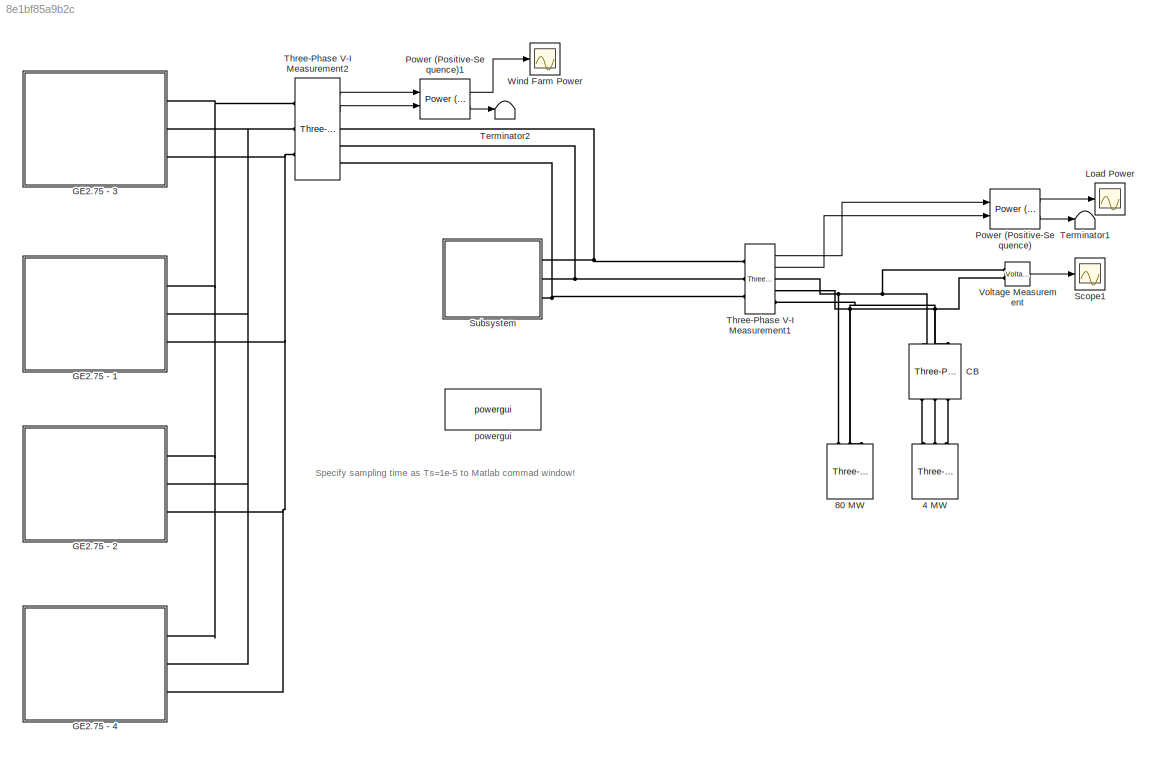
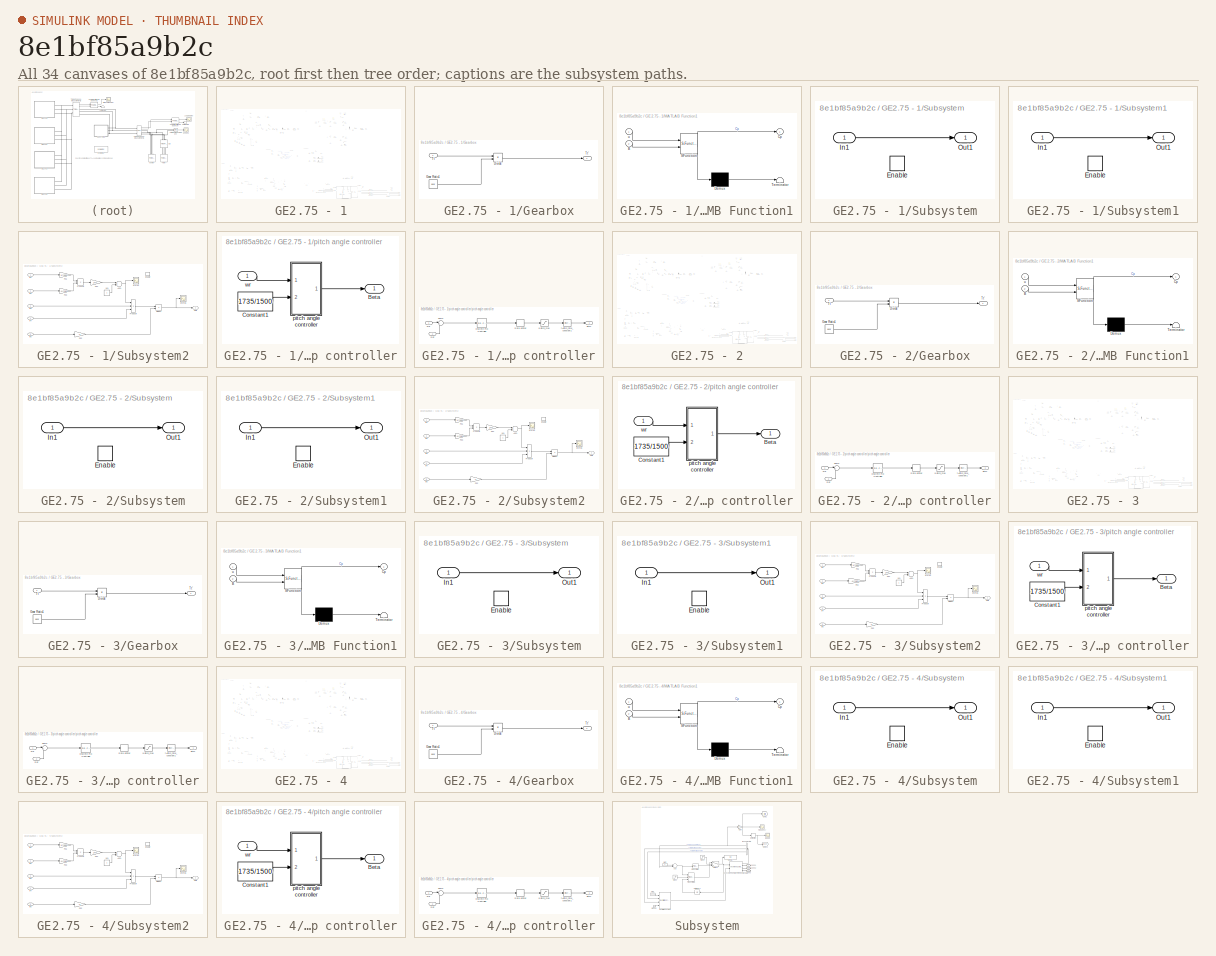
[diagram: thumbnail index - all 34 canvases of the model, root first then tree order]
MODEL slx_8e1bf85a9b2c
KIND model
CONFIG AbsTol = auto
CONFIG FixedStep = Ts
CONFIG MaxStep = auto
CONFIG MinStep = auto
CONFIG RelTol = 1e-3
CONFIG SampleTimeConstraint = Unconstrained
CONFIG Solver = FixedStepAuto
CONFIG SolverMode = Auto
CONFIG SolverName = FixedStepAuto
CONFIG StartTime = 0.0
CONFIG StopTime = 24
BLOCK [Reference] 4 MW  REF=powerlib/Elements/Three-Phase
Parallel RLC Load
  AttributesFormatString = \n
  Ports = [0, 0, 0, 0, 0, 3]
  SourceBlock = powerlib/Elements/Three-Phase\nParallel RLC Load
  SourceType = Three-Phase Parallel RLC Load
BLOCK [Reference] 80 MW  REF=powerlib/Elements/Three-Phase
Parallel RLC Load
  AttributesFormatString = \n
  Ports = [0, 0, 0, 0, 0, 3]
  SourceBlock = powerlib/Elements/Three-Phase\nParallel RLC Load
  SourceType = Three-Phase Parallel RLC Load
BLOCK [Reference] CB  REF=powerlib/Elements/Three-Phase Breaker
  Ports = [0, 0, 0, 0, 0, 3, 3]
  SourceBlock = powerlib/Elements/Three-Phase Breaker
  SourceType = Three-Phase Breaker
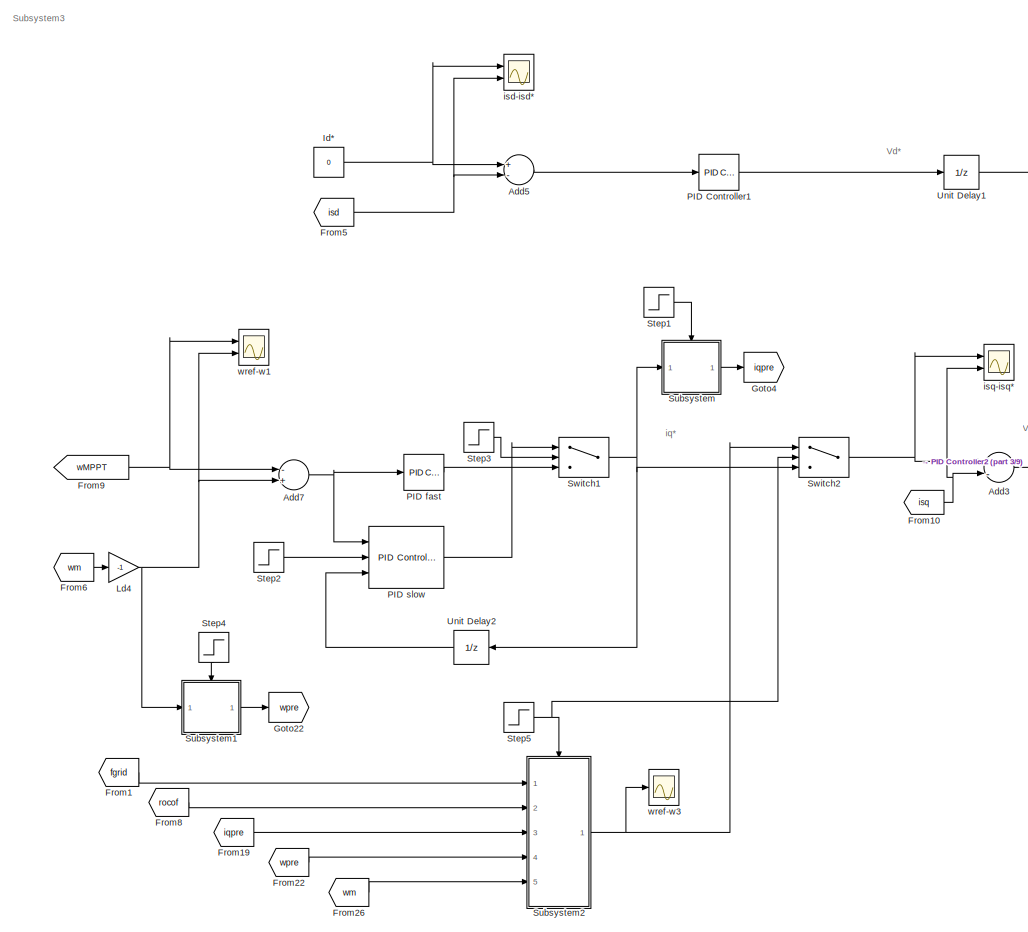
[diagram: GE2.75 - 1 - part 1/9, top left region]
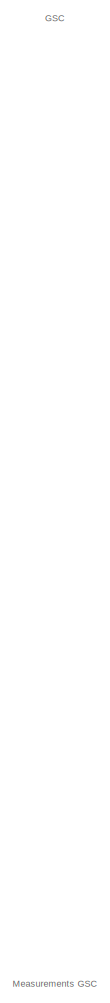
[diagram: GE2.75 - 1 - part 2/9, top center region]
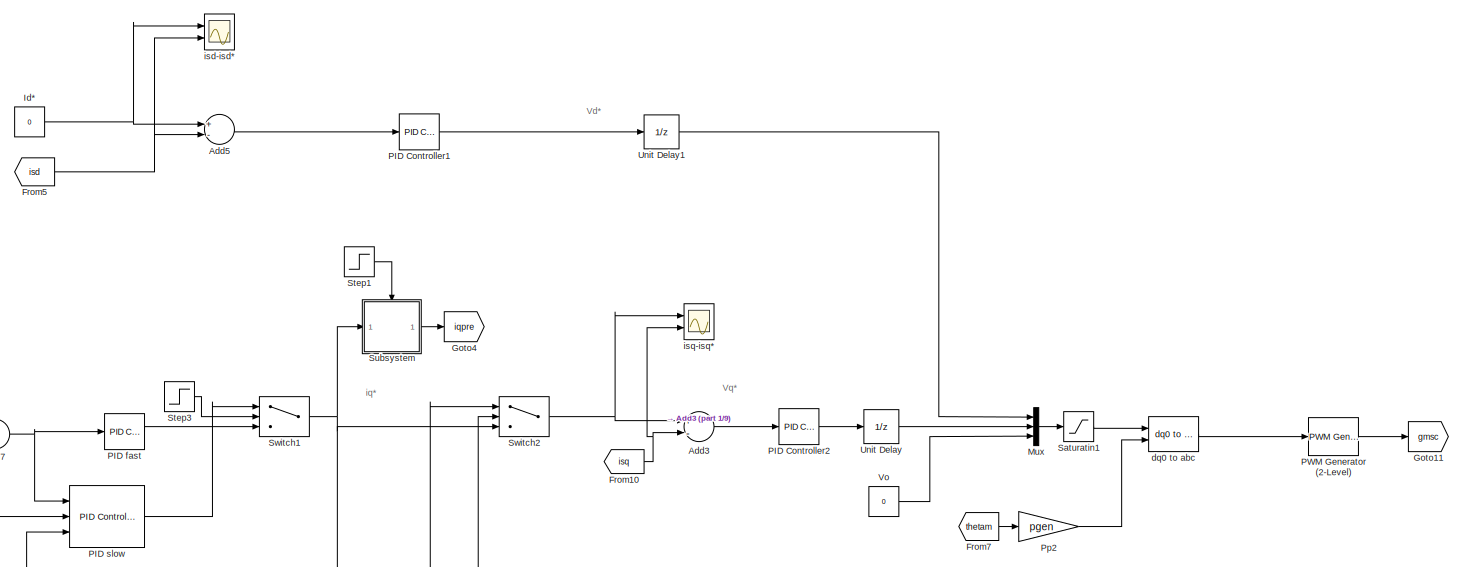
[diagram: GE2.75 - 1 - part 3/9, top left region]
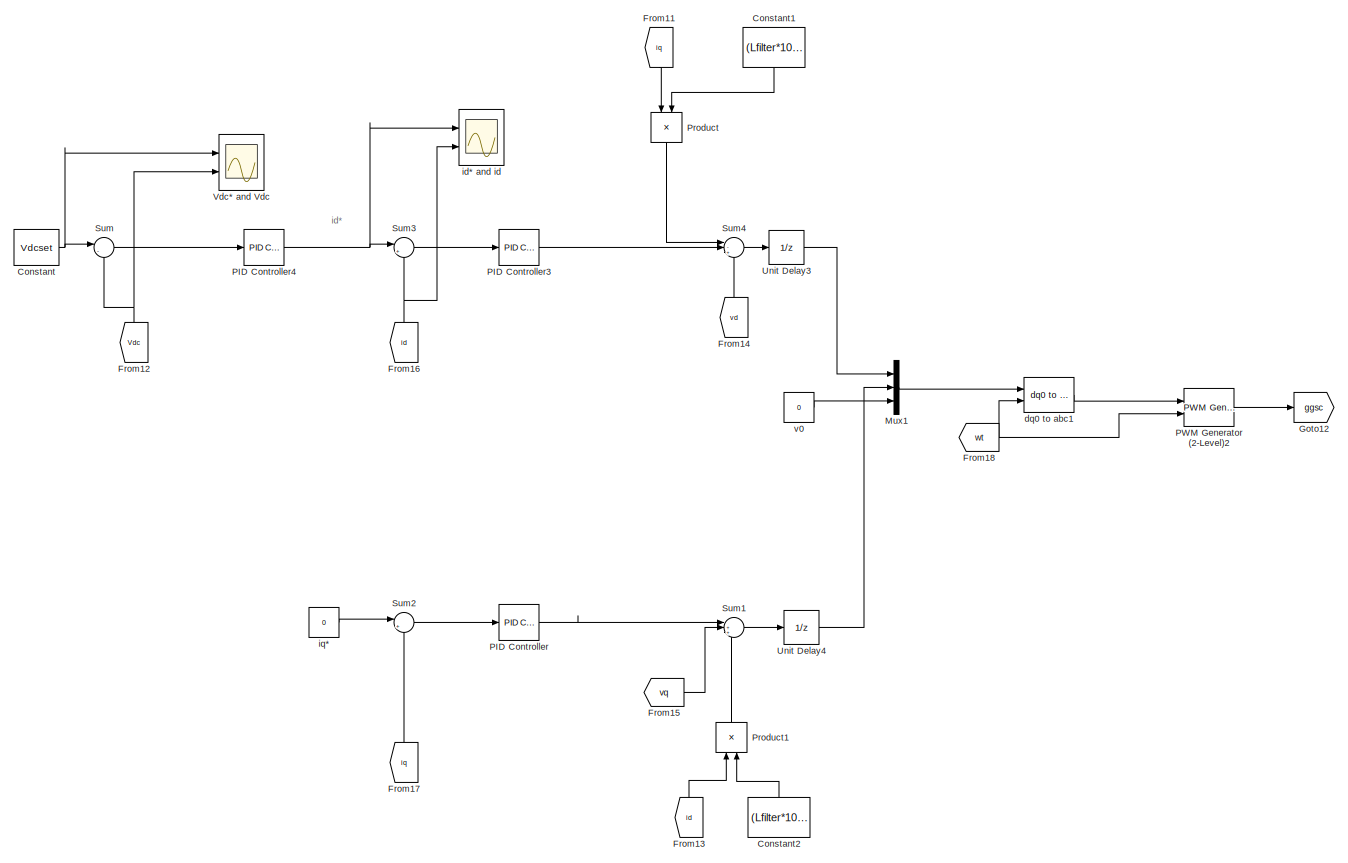
[diagram: GE2.75 - 1 - part 4/9, top right region]
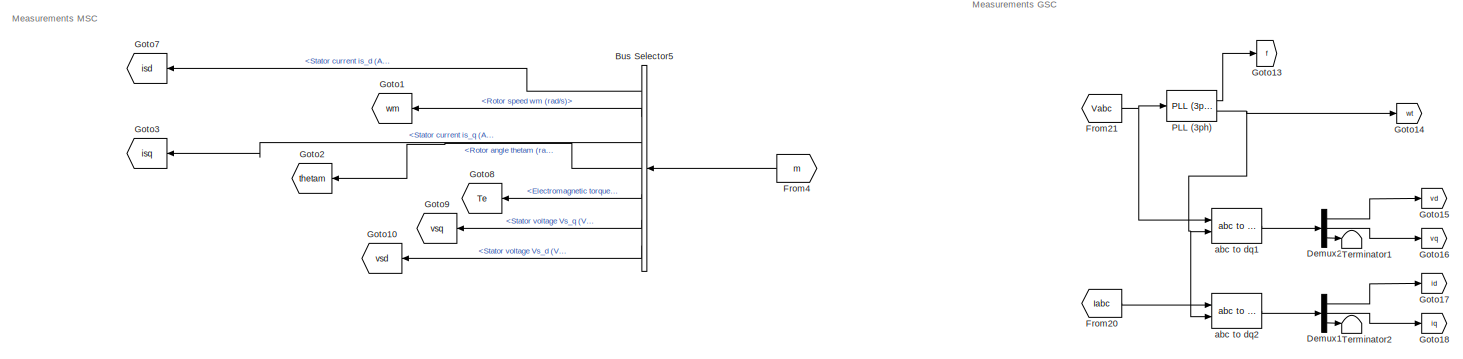
[diagram: GE2.75 - 1 - part 5/9, central region]
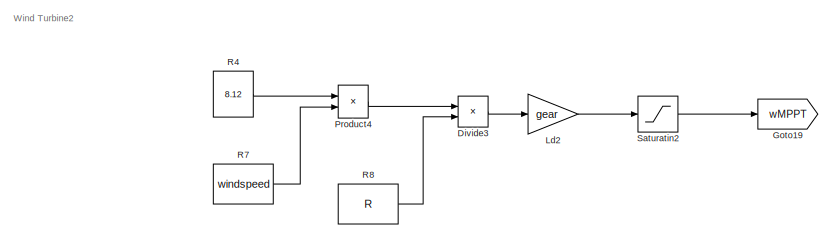
[diagram: GE2.75 - 1 - part 6/9, middle left region]
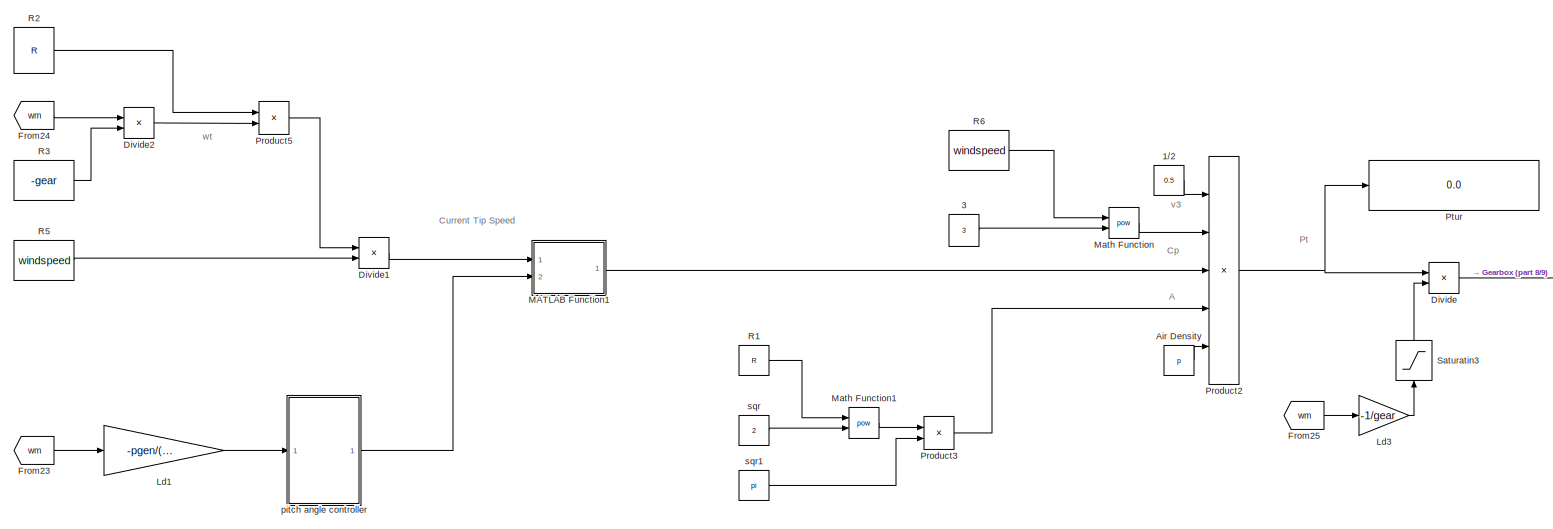
[diagram: GE2.75 - 1 - part 7/9, bottom left region]
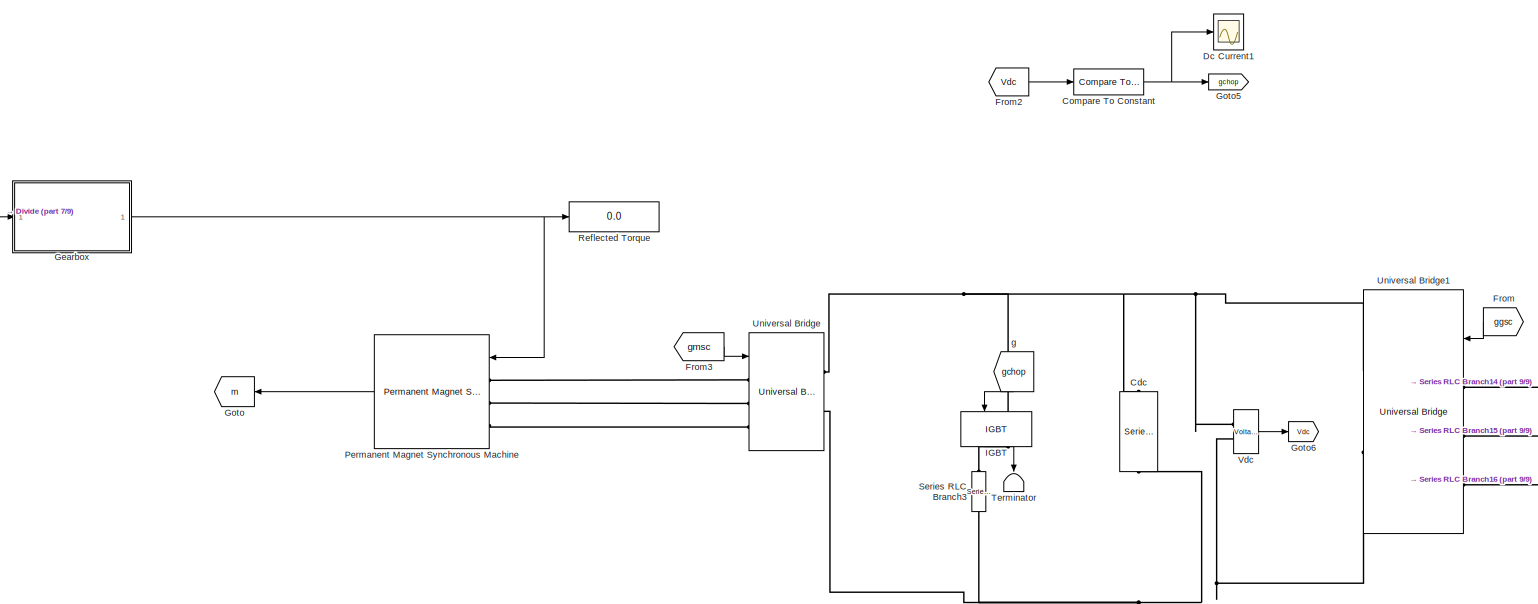
[diagram: GE2.75 - 1 - part 8/9, bottom center region]
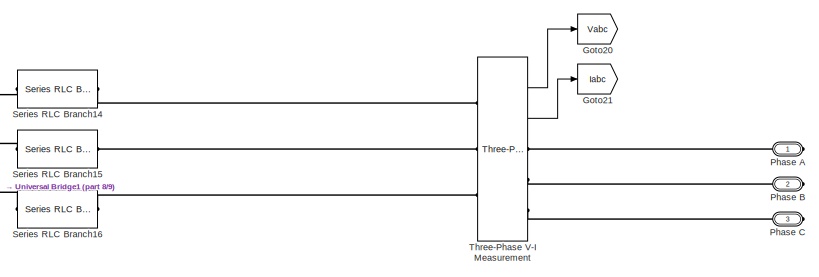
[diagram: GE2.75 - 1 - part 9/9, bottom right region]
BLOCK [SubSystem] GE2.75 - 1
  Ports = [0, 0, 0, 0, 0, 0, 3]
  RequestExecContextInheritance = off
  Variant = off
BLOCK [Constant] GE2.75 - 1/1//2
  Value = 0.5
BLOCK [Constant] GE2.75 - 1/3
  Value = 3
BLOCK [Sum] GE2.75 - 1/Add3
  InputSameDT = off
  Inputs = +-
  OutDataTypeStr = Inherit: Inherit via internal rule
  Ports = [2, 1]
  SaturateOnIntegerOverflow = off
BLOCK [Sum] GE2.75 - 1/Add5
  InputSameDT = off
  Inputs = +-
  OutDataTypeStr = Inherit: Inherit via internal rule
  Ports = [2, 1]
  SaturateOnIntegerOverflow = off
BLOCK [Sum] GE2.75 - 1/Add7
  InputSameDT = off
  Inputs = -+
  OutDataTypeStr = Inherit: Inherit via internal rule
  Ports = [2, 1]
  SaturateOnIntegerOverflow = off
BLOCK [Constant] GE2.75 - 1/Air Density
  Value = p
BLOCK [BusSelector] GE2.75 - 1/Bus Selector5
  OutputSignals = Stator current is_d (A),Rotor speed wm (rad/s),Stator current is_q (A),Rotor angle thetam (rad),Electromagnetic torque Te (N*m),Stator voltage Vs_q (V),Stator voltage Vs_d (V)
  Ports = [1, 7]
BLOCK [Reference] GE2.75 - 1/Cdc  REF=powerlib/Elements/Series RLC Branch
  Ports = [0, 0, 0, 0, 0, 1, 1]
  SourceBlock = powerlib/Elements/Series RLC Branch
  SourceType = Series RLC Branch
BLOCK [Reference] GE2.75 - 1/Compare To Constant  REF=simulink/Logic and Bit
Operations/Compare
To Constant
  Ports = [1, 1]
  SourceBlock = simulink/Logic and Bit\nOperations/Compare\nTo Constant
  SourceType = Compare To Constant
BLOCK [Constant] GE2.75 - 1/Constant
  Value = Vdcset
BLOCK [Constant] GE2.75 - 1/Constant1
  Value = (Lfilter*100*pi*2300)/690
BLOCK [Constant] GE2.75 - 1/Constant2
  Value = (Lfilter*100*pi*2300)/690
BLOCK [Scope] GE2.75 - 1/Dc Current1
  Ports = [1]
  ScopeSpecificationString = Simulink.scopes.TimeScopeBlockCfg('CurrentConfiguration', extmgr.ConfigurationSet(extmgr.Configuration('Core','General UI',true),extmgr.Configuration('Core','Source UI',true),extmgr.Configuration('Sources','WiredSimulink',true,'DataLoggingVariableName','ScopeData1'),extmgr.Configuration('Visuals','Time Domain',true,'SerializedDisplays',{struct('MinYLimReal','-0.29202','MaxYLimReal','1.08911','YLab...<+1422ch>  <repeated x4 — deduplicated; at blocks: Dc Current1>
BLOCK [Demux] GE2.75 - 1/Demux1
  DisplayOption = bar
  Outputs = 3
  Ports = [1, 3]
BLOCK [Demux] GE2.75 - 1/Demux2
  DisplayOption = bar
  Outputs = 3
  Ports = [1, 3]
BLOCK [Product] GE2.75 - 1/Divide
  InputSameDT = off
  Inputs = */
  OutDataTypeStr = Inherit: Inherit via internal rule
  Ports = [2, 1]
  RndMeth = Floor
  SaturateOnIntegerOverflow = off
BLOCK [Product] GE2.75 - 1/Divide1
  InputSameDT = off
  Inputs = */
  OutDataTypeStr = Inherit: Inherit via internal rule
  Ports = [2, 1]
  RndMeth = Floor
  SaturateOnIntegerOverflow = off
BLOCK [Product] GE2.75 - 1/Divide2
  InputSameDT = off
  Inputs = */
  OutDataTypeStr = Inherit: Inherit via internal rule
  Ports = [2, 1]
  RndMeth = Floor
  SaturateOnIntegerOverflow = off
BLOCK [Product] GE2.75 - 1/Divide3
  InputSameDT = off
  Inputs = */
  OutDataTypeStr = Inherit: Inherit via internal rule
  Ports = [2, 1]
  RndMeth = Floor
  SaturateOnIntegerOverflow = off
BLOCK [From] GE2.75 - 1/From
  GotoTag = ggsc
BLOCK [From] GE2.75 - 1/From1
  GotoTag = fgrid
  TagVisibility = global
BLOCK [From] GE2.75 - 1/From10
  GotoTag = isq
BLOCK [From] GE2.75 - 1/From11
  GotoTag = iq
BLOCK [From] GE2.75 - 1/From12
  GotoTag = Vdc
BLOCK [From] GE2.75 - 1/From13
  GotoTag = id
BLOCK [From] GE2.75 - 1/From14
  GotoTag = vd
BLOCK [From] GE2.75 - 1/From15
  GotoTag = vq
BLOCK [From] GE2.75 - 1/From16
  GotoTag = id
BLOCK [From] GE2.75 - 1/From17
  GotoTag = iq
BLOCK [From] GE2.75 - 1/From18
  GotoTag = wt
BLOCK [From] GE2.75 - 1/From19
  GotoTag = iqpre
BLOCK [From] GE2.75 - 1/From2
  GotoTag = Vdc
BLOCK [From] GE2.75 - 1/From20
  GotoTag = Iabc
BLOCK [From] GE2.75 - 1/From21
  GotoTag = Vabc
BLOCK [From] GE2.75 - 1/From22
  GotoTag = wpre
BLOCK [From] GE2.75 - 1/From23
  GotoTag = wm
BLOCK [From] GE2.75 - 1/From24
  GotoTag = wm
BLOCK [From] GE2.75 - 1/From25
  GotoTag = wm
BLOCK [From] GE2.75 - 1/From26
  GotoTag = wm
BLOCK [From] GE2.75 - 1/From3
  GotoTag = gmsc
BLOCK [From] GE2.75 - 1/From4
  GotoTag = m
BLOCK [From] GE2.75 - 1/From5
  GotoTag = isd
BLOCK [From] GE2.75 - 1/From6
  GotoTag = wm
BLOCK [From] GE2.75 - 1/From7
  GotoTag = thetam
BLOCK [From] GE2.75 - 1/From8
  GotoTag = rocof
  TagVisibility = global
BLOCK [From] GE2.75 - 1/From9
  GotoTag = wMPPT
BLOCK [SubSystem] GE2.75 - 1/Gearbox
  Ports = [1, 1]
  RequestExecContextInheritance = off
  Variant = off
BLOCK [Product] GE2.75 - 1/Gearbox/Divide
  InputSameDT = off
  Inputs = */
  OutDataTypeStr = Inherit: Inherit via internal rule
  Ports = [2, 1]
  RndMeth = Floor
  SaturateOnIntegerOverflow = off
BLOCK [Constant] GE2.75 - 1/Gearbox/Gear Ratio1
  Value = gear
BLOCK [Inport] GE2.75 - 1/Gearbox/Tt
  IconDisplay = Port number
BLOCK [Outport] GE2.75 - 1/Gearbox/Tt'
  IconDisplay = Port number
BLOCK [Goto] GE2.75 - 1/Goto
  GotoTag = m
BLOCK [Goto] GE2.75 - 1/Goto1
  GotoTag = wm
BLOCK [Goto] GE2.75 - 1/Goto10
  GotoTag = vsd
BLOCK [Goto] GE2.75 - 1/Goto11
  GotoTag = gmsc
BLOCK [Goto] GE2.75 - 1/Goto12
  GotoTag = ggsc
BLOCK [Goto] GE2.75 - 1/Goto13
  GotoTag = f
BLOCK [Goto] GE2.75 - 1/Goto14
  GotoTag = wt
BLOCK [Goto] GE2.75 - 1/Goto15
  GotoTag = vd
BLOCK [Goto] GE2.75 - 1/Goto16
  GotoTag = vq
BLOCK [Goto] GE2.75 - 1/Goto17
  GotoTag = id
BLOCK [Goto] GE2.75 - 1/Goto18
  GotoTag = iq
BLOCK [Goto] GE2.75 - 1/Goto19
  GotoTag = wMPPT
BLOCK [Goto] GE2.75 - 1/Goto2
  GotoTag = thetam
BLOCK [Goto] GE2.75 - 1/Goto20
  GotoTag = Vabc
BLOCK [Goto] GE2.75 - 1/Goto21
  GotoTag = Iabc
BLOCK [Goto] GE2.75 - 1/Goto22
  GotoTag = wpre
BLOCK [Goto] GE2.75 - 1/Goto3
  GotoTag = isq
BLOCK [Goto] GE2.75 - 1/Goto4
  GotoTag = iqpre
BLOCK [Goto] GE2.75 - 1/Goto5
  GotoTag = gchop
BLOCK [Goto] GE2.75 - 1/Goto6
  GotoTag = Vdc
BLOCK [Goto] GE2.75 - 1/Goto7
  GotoTag = isd
BLOCK [Goto] GE2.75 - 1/Goto8
  GotoTag = Te
BLOCK [Goto] GE2.75 - 1/Goto9
  GotoTag = vsq
BLOCK [Reference] GE2.75 - 1/IGBT  REF=powerlib/Power
Electronics/IGBT
  Ports = [1, 1, 0, 0, 0, 1, 1]
  SourceBlock = powerlib/Power\nElectronics/IGBT
  SourceType = IGBT
BLOCK [Constant] GE2.75 - 1/Id*
  Value = 0
BLOCK [Gain] GE2.75 - 1/Ld1
  Gain = -pgen/(2*fnom*pi)
  OutDataTypeStr = Inherit: Inherit via internal rule
  ParamDataTypeStr = Inherit: Inherit via internal rule
  SaturateOnIntegerOverflow = off
BLOCK [Gain] GE2.75 - 1/Ld2
  Gain = gear
  OutDataTypeStr = Inherit: Inherit via internal rule
  ParamDataTypeStr = Inherit: Inherit via internal rule
  SaturateOnIntegerOverflow = off
BLOCK [Gain] GE2.75 - 1/Ld3
  Gain = -1/gear
  OutDataTypeStr = Inherit: Inherit via internal rule
  ParamDataTypeStr = Inherit: Inherit via internal rule
  SaturateOnIntegerOverflow = off
BLOCK [Gain] GE2.75 - 1/Ld4
  Gain = -1
  OutDataTypeStr = Inherit: Inherit via internal rule
  ParamDataTypeStr = Inherit: Inherit via internal rule
  SaturateOnIntegerOverflow = off
BLOCK [SubSystem] GE2.75 - 1/MATLAB Function1
  ErrorFcn = Stateflow.Translate.translate
  PermitHierarchicalResolution = ExplicitOnly
  Ports = [2, 1]
  RequestExecContextInheritance = off
  SFBlockType = MATLAB Function
  TreatAsAtomicUnit = on
  Variant = off
BLOCK [Demux] GE2.75 - 1/MATLAB Function1/ Demux 
  Outputs = 1
  Ports = [1, 1]
BLOCK [S-Function] GE2.75 - 1/MATLAB Function1/ SFunction 
  EnableBusSupport = on
  FunctionName = sf_sfun
  PortCounts = [2 2]
  Ports = [2, 2]
  SFunctionDeploymentMode = off
  Tag = Stateflow S-Function Optimized_wind_farm_with_dynamic_grid 1
BLOCK [Terminator] GE2.75 - 1/MATLAB Function1/ Terminator 
BLOCK [Inport] GE2.75 - 1/MATLAB Function1/B
  IconDisplay = Port number
  Port = 2
BLOCK [Outport] GE2.75 - 1/MATLAB Function1/Cp
  IconDisplay = Port number
BLOCK [Inport] GE2.75 - 1/MATLAB Function1/u
  IconDisplay = Port number
BLOCK [Math] GE2.75 - 1/Math Function
  Operator = pow
  Ports = [2, 1]
BLOCK [Math] GE2.75 - 1/Math Function1
  Operator = pow
  Ports = [2, 1]
BLOCK [Mux] GE2.75 - 1/Mux
  DisplayOption = bar
  Inputs = 3
  Ports = [3, 1]
BLOCK [Mux] GE2.75 - 1/Mux1
  DisplayOption = bar
  Inputs = 3
  Ports = [3, 1]
BLOCK [Reference] GE2.75 - 1/PID Controller  REF=simulink/Continuous/PID Controller
  Ports = [1, 1]
  SourceBlock = simulink/Continuous/PID Controller
  SourceType = PID 1dof
BLOCK [Reference] GE2.75 - 1/PID Controller1  REF=simulink/Continuous/PID Controller
  Ports = [1, 1]
  SourceBlock = simulink/Continuous/PID Controller
  SourceType = PID 1dof
BLOCK [Reference] GE2.75 - 1/PID Controller2  REF=simulink/Continuous/PID Controller
  Ports = [1, 1]
  SourceBlock = simulink/Continuous/PID Controller
  SourceType = PID 1dof
BLOCK [Reference] GE2.75 - 1/PID Controller3  REF=simulink/Continuous/PID Controller
  Ports = [1, 1]
  SourceBlock = simulink/Continuous/PID Controller
  SourceType = PID 1dof
BLOCK [Reference] GE2.75 - 1/PID Controller4  REF=simulink/Continuous/PID Controller
  Ports = [1, 1]
  SourceBlock = simulink/Continuous/PID Controller
  SourceType = PID 1dof
BLOCK [Reference] GE2.75 - 1/PID fast  REF=simulink/Continuous/PID Controller
  Ports = [1, 1]
  SourceBlock = simulink/Continuous/PID Controller
  SourceType = PID 1dof
BLOCK [Reference] GE2.75 - 1/PID slow  REF=simulink/Continuous/PID Controller
  Ports = [3, 1]
  SourceBlock = simulink/Continuous/PID Controller
  SourceType = PID 1dof
BLOCK [Reference] GE2.75 - 1/PLL (3ph)  REF=powerlib_meascontrol/PLL/PLL
(3ph)
  Ports = [1, 2]
  SourceBlock = powerlib_meascontrol/PLL/PLL\n(3ph)
  SourceType = PLL (3ph)
BLOCK [Reference] GE2.75 - 1/PWM Generator (2-Level)  REF=powerlib_meascontrol/Pulse & Signal
Generators/PWM Generator
(2-Level)
  Ports = [1, 1]
  SourceBlock = powerlib_meascontrol/Pulse & Signal\nGenerators/PWM Generator\n(2-Level)
  SourceType = PWM Generator (2-Level)
BLOCK [Reference] GE2.75 - 1/PWM Generator (2-Level)2  REF=powerlib_meascontrol/Pulse & Signal
Generators/PWM Generator
(2-Level)
  Ports = [2, 1]
  SourceBlock = powerlib_meascontrol/Pulse & Signal\nGenerators/PWM Generator\n(2-Level)
  SourceType = PWM Generator (2-Level)
BLOCK [Reference] GE2.75 - 1/Permanent Magnet Synchronous Machine  REF=powerlib/Machines/Permanent Magnet
Synchronous Machine
  Ports = [1, 1, 0, 0, 0, 3]
  SourceBlock = powerlib/Machines/Permanent Magnet\nSynchronous Machine
  SourceType = Permanent Magnet Synchronous Machine
BLOCK [PMIOPort] GE2.75 - 1/Phase A
  Port = 1
  Side = Right
BLOCK [PMIOPort] GE2.75 - 1/Phase B
  Port = 2
  Side = Right
BLOCK [PMIOPort] GE2.75 - 1/Phase C
  Port = 3
  Side = Right
BLOCK [Gain] GE2.75 - 1/Pp2
  Gain = pgen
  OutDataTypeStr = Inherit: Inherit via internal rule
  ParamDataTypeStr = Inherit: Inherit via internal rule
  SaturateOnIntegerOverflow = off
BLOCK [Product] GE2.75 - 1/Product
  InputSameDT = off
  OutDataTypeStr = Inherit: Inherit via internal rule
  Ports = [2, 1]
  RndMeth = Floor
  SaturateOnIntegerOverflow = off
BLOCK [Product] GE2.75 - 1/Product1
  InputSameDT = off
  OutDataTypeStr = Inherit: Inherit via internal rule
  Ports = [2, 1]
  RndMeth = Floor
  SaturateOnIntegerOverflow = off
BLOCK [Product] GE2.75 - 1/Product2
  InputSameDT = off
  Inputs = 5
  OutDataTypeStr = Inherit: Inherit via internal rule
  Ports = [5, 1]
  RndMeth = Floor
  SaturateOnIntegerOverflow = off
BLOCK [Product] GE2.75 - 1/Product3
  InputSameDT = off
  OutDataTypeStr = Inherit: Inherit via internal rule
  Ports = [2, 1]
  RndMeth = Floor
  SaturateOnIntegerOverflow = off
BLOCK [Product] GE2.75 - 1/Product4
  InputSameDT = off
  OutDataTypeStr = Inherit: Inherit via internal rule
  Ports = [2, 1]
  RndMeth = Floor
  SaturateOnIntegerOverflow = off
BLOCK [Product] GE2.75 - 1/Product5
  InputSameDT = off
  OutDataTypeStr = Inherit: Inherit via internal rule
  Ports = [2, 1]
  RndMeth = Floor
  SaturateOnIntegerOverflow = off
BLOCK [Display] GE2.75 - 1/Ptur
  Decimation = 1
  Ports = [1]
BLOCK [Constant] GE2.75 - 1/R1
  Value = R
BLOCK [Constant] GE2.75 - 1/R2
  Value = R
BLOCK [Constant] GE2.75 - 1/R3
  Value = -gear
BLOCK [Constant] GE2.75 - 1/R4
  Value = 8.12
BLOCK [Constant] GE2.75 - 1/R5
  Value = windspeed
BLOCK [Constant] GE2.75 - 1/R6
  Value = windspeed
BLOCK [Constant] GE2.75 - 1/R7
  Value = windspeed
BLOCK [Constant] GE2.75 - 1/R8
  Value = R
BLOCK [Display] GE2.75 - 1/Reflected Torque
  Decimation = 1
  Ports = [1]
BLOCK [Saturate] GE2.75 - 1/Saturatin1
  InputPortMap = u0
  LowerLimit = -2000
  Ports = [1, 1]
  UpperLimit = 2000
BLOCK [Saturate] GE2.75 - 1/Saturatin2
  InputPortMap = u0
  LowerLimit = 1e-8
  Ports = [1, 1]
  UpperLimit = wmax
BLOCK [Saturate] GE2.75 - 1/Saturatin3
  InputPortMap = u0
  LowerLimit = 1e-8
  Ports = [1, 1]
  UpperLimit = inf
BLOCK [Reference] GE2.75 - 1/Series RLC Branch14  REF=powerlib/Elements/Series RLC Branch
  Ports = [0, 0, 0, 0, 0, 1, 1]
  SourceBlock = powerlib/Elements/Series RLC Branch
  SourceType = Series RLC Branch
BLOCK [Reference] GE2.75 - 1/Series RLC Branch15  REF=powerlib/Elements/Series RLC Branch
  Ports = [0, 0, 0, 0, 0, 1, 1]
  SourceBlock = powerlib/Elements/Series RLC Branch
  SourceType = Series RLC Branch
BLOCK [Reference] GE2.75 - 1/Series RLC Branch16  REF=powerlib/Elements/Series RLC Branch
  Ports = [0, 0, 0, 0, 0, 1, 1]
  SourceBlock = powerlib/Elements/Series RLC Branch
  SourceType = Series RLC Branch
BLOCK [Reference] GE2.75 - 1/Series RLC Branch3  REF=powerlib/Elements/Series RLC Branch
  Ports = [0, 0, 0, 0, 0, 1, 1]
  SourceBlock = powerlib/Elements/Series RLC Branch
  SourceType = Series RLC Branch
BLOCK [Step] GE2.75 - 1/Step1
  After = 0
  Before = 1
  SampleTime = Ts
  Time = insup
BLOCK [Step] GE2.75 - 1/Step2
  Time = startuptime
BLOCK [Step] GE2.75 - 1/Step3
  Time = startuptime
BLOCK [Step] GE2.75 - 1/Step4
  After = 0
  Before = 1
  SampleTime = Ts
  Time = insup
BLOCK [Step] GE2.75 - 1/Step5
  SampleTime = Ts
  Time = insup
BLOCK [SubSystem] GE2.75 - 1/Subsystem
  Ports = [1, 1, 1]
  RequestExecContextInheritance = off
  Variant = off
BLOCK [EnablePort] GE2.75 - 1/Subsystem/Enable
  Ports = []
BLOCK [Inport] GE2.75 - 1/Subsystem/In1
  IconDisplay = Port number
BLOCK [Outport] GE2.75 - 1/Subsystem/Out1
  IconDisplay = Port number
BLOCK [SubSystem] GE2.75 - 1/Subsystem1
  Ports = [1, 1, 1]
  RequestExecContextInheritance = off
  Variant = off
BLOCK [EnablePort] GE2.75 - 1/Subsystem1/Enable
  Ports = []
BLOCK [Inport] GE2.75 - 1/Subsystem1/In1
  IconDisplay = Port number
BLOCK [Outport] GE2.75 - 1/Subsystem1/Out1
  IconDisplay = Port number
BLOCK [SubSystem] GE2.75 - 1/Subsystem2
  Ports = [5, 1, 1]
  RequestExecContextInheritance = off
  Variant = off
BLOCK [Sum] GE2.75 - 1/Subsystem2/Add1
  InputSameDT = off
  OutDataTypeStr = Inherit: Inherit via internal rule
  Ports = [2, 1]
  SaturateOnIntegerOverflow = off
BLOCK [Product] GE2.75 - 1/Subsystem2/Divide4
  InputSameDT = off
  Inputs = */
  OutDataTypeStr = Inherit: Inherit via internal rule
  Ports = [2, 1]
  RndMeth = Floor
  SaturateOnIntegerOverflow = off
BLOCK [EnablePort] GE2.75 - 1/Subsystem2/Enable
  Ports = []
BLOCK [Inport] GE2.75 - 1/Subsystem2/In1
  IconDisplay = Port number
BLOCK [Inport] GE2.75 - 1/Subsystem2/In2
  IconDisplay = Port number
  Port = 2
BLOCK [Inport] GE2.75 - 1/Subsystem2/In3
  IconDisplay = Port number
  Port = 3
BLOCK [Inport] GE2.75 - 1/Subsystem2/In4
  IconDisplay = Port number
  Port = 4
BLOCK [Inport] GE2.75 - 1/Subsystem2/In5
  IconDisplay = Port number
  Port = 5
BLOCK [Outport] GE2.75 - 1/Subsystem2/Out1
  IconDisplay = Port number
BLOCK [Gain] GE2.75 - 1/Subsystem2/Pp1
  Gain = 1/fnom
  OutDataTypeStr = Inherit: Inherit via internal rule
  ParamDataTypeStr = Inherit: Inherit via internal rule
  SaturateOnIntegerOverflow = off
BLOCK [Gain] GE2.75 - 1/Subsystem2/Pp2
  Gain = -1
  OutDataTypeStr = Inherit: Inherit via internal rule
  ParamDataTypeStr = Inherit: Inherit via internal rule
  SaturateOnIntegerOverflow = off
BLOCK [Gain] GE2.75 - 1/Subsystem2/Pp3
  Gain = -1/fnom
  OutDataTypeStr = Inherit: Inherit via internal rule
  ParamDataTypeStr = Inherit: Inherit via internal rule
  SaturateOnIntegerOverflow = off
BLOCK [Gain] GE2.75 - 1/Subsystem2/Pp4
  Gain = 2*H
  OutDataTypeStr = Inherit: Inherit via internal rule
  ParamDataTypeStr = Inherit: Inherit via internal rule
  SaturateOnIntegerOverflow = off
BLOCK [Product] GE2.75 - 1/Subsystem2/Product6
  InputSameDT = off
  OutDataTypeStr = Inherit: Inherit via internal rule
  Ports = [2, 1]
  RndMeth = Floor
  SaturateOnIntegerOverflow = off
BLOCK [Product] GE2.75 - 1/Subsystem2/Product7
  InputSameDT = off
  Inputs = 3
  OutDataTypeStr = Inherit: Inherit via internal rule
  Ports = [3, 1]
  RndMeth = Floor
  SaturateOnIntegerOverflow = off
BLOCK [Constant] GE2.75 - 1/Subsystem2/Vo1
BLOCK [Scope] GE2.75 - 1/Subsystem2/wref-w1
  Ports = [1]
  ScopeSpecificationString = Simulink.scopes.TimeScopeBlockCfg('CurrentConfiguration', extmgr.ConfigurationSet(extmgr.Configuration('Core','General UI',true),extmgr.Configuration('Core','Source UI',true),extmgr.Configuration('Sources','WiredSimulink',true,'DataLoggingVariableName','ScopeData4'),extmgr.Configuration('Visuals','Time Domain',true,'SerializedDisplays',{struct('MinYLimReal','871.03715','MaxYLimReal','951.10609','Y...<+1451ch>  <repeated x4 — deduplicated; at blocks: wref-w1>
BLOCK [Scope] GE2.75 - 1/Subsystem2/wref-w2
  Ports = [1]
  ScopeSpecificationString = Simulink.scopes.TimeScopeBlockCfg('CurrentConfiguration', extmgr.ConfigurationSet(extmgr.Configuration('Core','General UI',true),extmgr.Configuration('Core','Source UI',true),extmgr.Configuration('Sources','WiredSimulink',true,'DataLoggingVariableName','ScopeData3'),extmgr.Configuration('Visuals','Time Domain',true,'SerializedDisplays',{struct('MinYLimReal','0.98022','MaxYLimReal','1.07225','YLabe...<+1432ch>  <repeated x4 — deduplicated; at blocks: wref-w2>
BLOCK [Sum] GE2.75 - 1/Sum
  IconShape = round
  InputSameDT = off
  Inputs = |-+
  OutDataTypeStr = Inherit: Inherit via internal rule
  Ports = [2, 1]
  SaturateOnIntegerOverflow = off
BLOCK [Sum] GE2.75 - 1/Sum1
  IconShape = round
  InputSameDT = off
  Inputs = |+++
  OutDataTypeStr = Inherit: Inherit via internal rule
  Ports = [3, 1]
  SaturateOnIntegerOverflow = off
BLOCK [Sum] GE2.75 - 1/Sum2
  IconShape = round
  InputSameDT = off
  Inputs = |+-
  OutDataTypeStr = Inherit: Inherit via internal rule
  Ports = [2, 1]
  SaturateOnIntegerOverflow = off
BLOCK [Sum] GE2.75 - 1/Sum3
  IconShape = round
  InputSameDT = off
  Inputs = |+-
  OutDataTypeStr = Inherit: Inherit via internal rule
  Ports = [2, 1]
  SaturateOnIntegerOverflow = off
BLOCK [Sum] GE2.75 - 1/Sum4
  IconShape = round
  InputSameDT = off
  Inputs = |-++
  OutDataTypeStr = Inherit: Inherit via internal rule
  Ports = [3, 1]
  SaturateOnIntegerOverflow = off
BLOCK [Switch] GE2.75 - 1/Switch1
  Criteria = u2 > Threshold
  InputSameDT = off
  SaturateOnIntegerOverflow = off
  Threshold = 0.5
BLOCK [Switch] GE2.75 - 1/Switch2
  Criteria = u2 > Threshold
  InputSameDT = off
  SaturateOnIntegerOverflow = off
  Threshold = 0.5
BLOCK [Terminator] GE2.75 - 1/Terminator
BLOCK [Terminator] GE2.75 - 1/Terminator1
BLOCK [Terminator] GE2.75 - 1/Terminator2
BLOCK [Reference] GE2.75 - 1/Three-Phase V-I Measurement  REF=powerlib/Measurements/Three-Phase
V-I Measurement
  Ports = [0, 2, 0, 0, 0, 3, 3]
  SourceBlock = powerlib/Measurements/Three-Phase\nV-I Measurement
  SourceType = Three-Phase VI Measurement
BLOCK [UnitDelay] GE2.75 - 1/Unit Delay
  InputProcessing = Elements as channels (sample based)
  SampleTime = Ts
BLOCK [UnitDelay] GE2.75 - 1/Unit Delay1
  InputProcessing = Elements as channels (sample based)
  SampleTime = Ts
BLOCK [UnitDelay] GE2.75 - 1/Unit Delay2
  InputProcessing = Elements as channels (sample based)
  SampleTime = Ts
BLOCK [UnitDelay] GE2.75 - 1/Unit Delay3
  InputProcessing = Elements as channels (sample based)
  SampleTime = Ts
BLOCK [UnitDelay] GE2.75 - 1/Unit Delay4
  InputProcessing = Elements as channels (sample based)
  SampleTime = Ts
BLOCK [Reference] GE2.75 - 1/Universal Bridge  REF=powerlib/Power
Electronics/Universal Bridge
  Ports = [1, 0, 0, 0, 0, 3, 2]
  SourceBlock = powerlib/Power\nElectronics/Universal Bridge
  SourceType = Universal Bridge
BLOCK [Reference] GE2.75 - 1/Universal Bridge1  REF=powerlib/Power
Electronics/Universal Bridge
  Ports = [1, 0, 0, 0, 0, 3, 2]
  SourceBlock = powerlib/Power\nElectronics/Universal Bridge
  SourceType = Universal Bridge
BLOCK [Reference] GE2.75 - 1/Vdc  REF=powerlib/Measurements/Voltage Measurement
  Ports = [0, 1, 0, 0, 0, 2]
  SourceBlock = powerlib/Measurements/Voltage Measurement
  SourceType = Voltage Measurement
  UserDataPersistent = on
BLOCK [Scope] GE2.75 - 1/Vdc* and Vdc
  NumInputPorts = 2
  Ports = [2]
  ScopeSpecificationString = Simulink.scopes.TimeScopeBlockCfg('CurrentConfiguration', extmgr.ConfigurationSet(extmgr.Configuration('Core','General UI',true),extmgr.Configuration('Core','Source UI',true),extmgr.Configuration('Sources','WiredSimulink',true,'DataLoggingSaveFormat','Array','DataLoggingDecimation','1','DataLoggingVariableName','ScopeData3'),extmgr.Configuration('Visuals','Time Domain',true,'SerializedDisplays',{s...<+1522ch>  <repeated x4 — deduplicated; at blocks: Vdc* and Vdc>
BLOCK [Constant] GE2.75 - 1/Vo
  Value = 0
BLOCK [Reference] GE2.75 - 1/abc to dq1  REF=powerlib_meascontrol/Transformations/abc to dq0
  Ports = [2, 1]
  SourceBlock = powerlib_meascontrol/Transformations/abc to dq0
  SourceType = abc to dq0 Transformation
BLOCK [Reference] GE2.75 - 1/abc to dq2  REF=powerlib_meascontrol/Transformations/abc to dq0
  Ports = [2, 1]
  SourceBlock = powerlib_meascontrol/Transformations/abc to dq0
  SourceType = abc to dq0 Transformation
BLOCK [Reference] GE2.75 - 1/dq0 to abc  REF=powerlib_meascontrol/Transformations/dq0 to abc
  Ports = [2, 1]
  SourceBlock = powerlib_meascontrol/Transformations/dq0 to abc
  SourceType = dq0 to abc Transformation
BLOCK [Reference] GE2.75 - 1/dq0 to abc1  REF=powerlib_meascontrol/Transformations/dq0 to abc
  Ports = [2, 1]
  SourceBlock = powerlib_meascontrol/Transformations/dq0 to abc
  SourceType = dq0 to abc Transformation
BLOCK [From] GE2.75 - 1/g
  GotoTag = gchop
BLOCK [Scope] GE2.75 - 1/id* and id 
  NumInputPorts = 2
  Ports = [2]
  ScopeSpecificationString = Simulink.scopes.TimeScopeBlockCfg('CurrentConfiguration', extmgr.ConfigurationSet(extmgr.Configuration('Core','General UI',true),extmgr.Configuration('Core','Source UI',true),extmgr.Configuration('Sources','WiredSimulink',true,'DataLoggingSaveFormat','Array','DataLoggingDecimation','1','DataLoggingVariableName','ScopeData3'),extmgr.Configuration('Visuals','Time Domain',true,'SerializedDisplays',{s...<+1510ch>  <repeated x4 — deduplicated; at blocks: id* and id>
BLOCK [Constant] GE2.75 - 1/iq*
  Value = 0
BLOCK [Scope] GE2.75 - 1/isd-isd*
  NumInputPorts = 2
  Ports = [2]
  ScopeSpecificationString = Simulink.scopes.TimeScopeBlockCfg('CurrentConfiguration', extmgr.ConfigurationSet(extmgr.Configuration('Core','General UI',true),extmgr.Configuration('Core','Source UI',true),extmgr.Configuration('Sources','WiredSimulink',true,'DataLoggingVariableName','ScopeData3'),extmgr.Configuration('Visuals','Time Domain',true,'SerializedDisplays',{struct('MinYLimReal','-63.22683','MaxYLimReal','57.09545','YL...<+1468ch>  <repeated x4 — deduplicated; at blocks: isd-isd*>
BLOCK [Scope] GE2.75 - 1/isq-isq*
  NumInputPorts = 2
  Ports = [2]
  ScopeSpecificationString = Simulink.scopes.TimeScopeBlockCfg('CurrentConfiguration', extmgr.ConfigurationSet(extmgr.Configuration('Core','General UI',true),extmgr.Configuration('Core','Source UI',true),extmgr.Configuration('Sources','WiredSimulink',true,'DataLoggingVariableName','ScopeData1'),extmgr.Configuration('Visuals','Time Domain',true,'SerializedDisplays',{struct('MinYLimReal','-1483.70191','MaxYLimReal','3731.01984'...<+1489ch>  <repeated x4 — deduplicated; at blocks: isq-isq*>
BLOCK [SubSystem] GE2.75 - 1/pitch angle controller
  Ports = [1, 1]
  RequestExecContextInheritance = off
  Variant = off
BLOCK [Outport] GE2.75 - 1/pitch angle controller/Beta
  IconDisplay = Port number
BLOCK [Constant] GE2.75 - 1/pitch angle controller/Constant1
  SampleTime = Ts
  Value = 1735/1500
BLOCK [SubSystem] GE2.75 - 1/pitch angle controller/pitch angle controller
  Ports = [2, 1]
  RequestExecContextInheritance = off
  Variant = off
BLOCK [Saturate] GE2.75 - 1/pitch angle controller/pitch angle controller/0-pitch_max 
  InputPortMap = u0
  LowerLimit = 0
  Ports = [1, 1]
  SampleTime = Ts
  UpperLimit = 27
BLOCK [Reference] GE2.75 - 1/pitch angle controller/pitch angle controller/Discrete PID Controller  REF=simulink/Continuous/PID Controller
  Ports = [1, 1]
  SourceBlock = simulink/Continuous/PID Controller
  SourceType = PID 1dof
BLOCK [RateLimiter] GE2.75 - 1/pitch angle controller/pitch angle controller/Rate Limiter
  FallingSlewLimit = -10
  RisingSlewLimit = 10
BLOCK [Inport] GE2.75 - 1/pitch angle controller/pitch angle controller/Ref
  IconDisplay = Port number
  Port = 2
BLOCK [Sum] GE2.75 - 1/pitch angle controller/pitch angle controller/Sum3
  IconShape = round
  InputSameDT = off
  Inputs = |+-
  OutDataTypeStr = Inherit: Inherit via internal rule
  Ports = [2, 1]
  SampleTime = Ts
  SaturateOnIntegerOverflow = off
BLOCK [Outport] GE2.75 - 1/pitch angle controller/pitch angle controller/pitch
  IconDisplay = Port number
BLOCK [Reference] GE2.75 - 1/pitch angle controller/pitch angle controller/t=Pitch_time_constant1  REF=powerlib_extras/Discrete 
Control Blocks/Discrete
1st-Order
Filter
  Ports = [1, 1]
  SourceBlock = powerlib_extras/Discrete \nControl Blocks/Discrete\n1st-Order\nFilter
  SourceType = Discrete 1st-Order Filter
BLOCK [Inport] GE2.75 - 1/pitch angle controller/pitch angle controller/wg
  IconDisplay = Port number
BLOCK [Inport] GE2.75 - 1/pitch angle controller/wr
  IconDisplay = Port number
BLOCK [Constant] GE2.75 - 1/sqr
  Value = 2
BLOCK [Constant] GE2.75 - 1/sqr1
  Value = pi
BLOCK [Constant] GE2.75 - 1/v0
  Value = 0
BLOCK [Scope] GE2.75 - 1/wref-w1
  NumInputPorts = 2
  Ports = [2]
  ScopeSpecificationString = Simulink.scopes.TimeScopeBlockCfg('CurrentConfiguration', extmgr.ConfigurationSet(extmgr.Configuration('Core','General UI',true),extmgr.Configuration('Core','Source UI',true),extmgr.Configuration('Sources','WiredSimulink',true,'DataLoggingVariableName','ScopeData1'),extmgr.Configuration('Visuals','Time Domain',true,'SerializedDisplays',{struct('MinYLimReal','166.19478','MaxYLimReal','166.19505','Y...<+1460ch>  <repeated x3 — deduplicated; at blocks: wref-w1>
BLOCK [Scope] GE2.75 - 1/wref-w3
  Ports = [1]
  ScopeSpecificationString = Simulink.scopes.TimeScopeBlockCfg('CurrentConfiguration', extmgr.ConfigurationSet(extmgr.Configuration('Core','General UI',true),extmgr.Configuration('Core','Source UI',true),extmgr.Configuration('Sources','WiredSimulink',true,'DataLoggingVariableName','ScopeData2'),extmgr.Configuration('Visuals','Time Domain',true,'SerializedDisplays',{struct('MinYLimReal','-1076.68953','MaxYLimReal','119.63217',...<+1460ch>  <repeated x4 — deduplicated; at blocks: wref-w3>
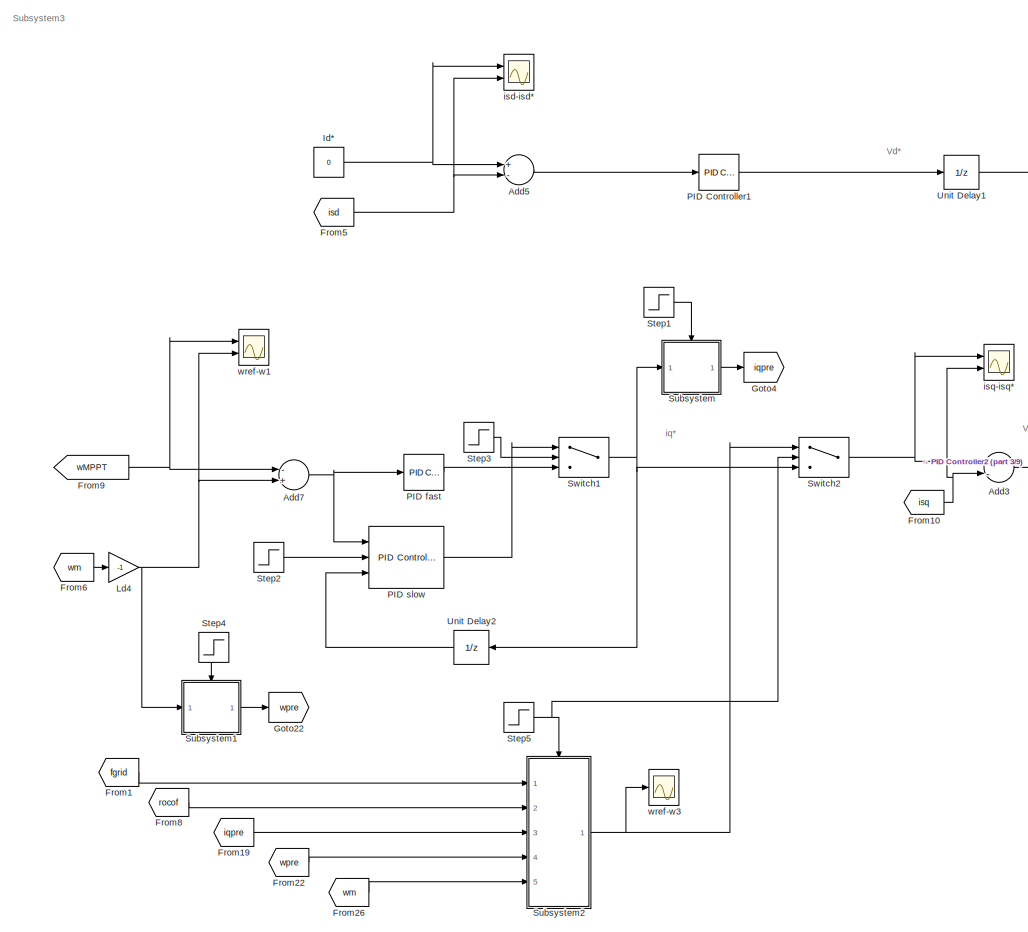
[diagram: GE2.75 - 2 - part 1/9, top left region]
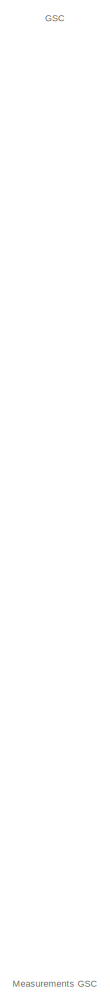
[diagram: GE2.75 - 2 - part 2/9, top center region]
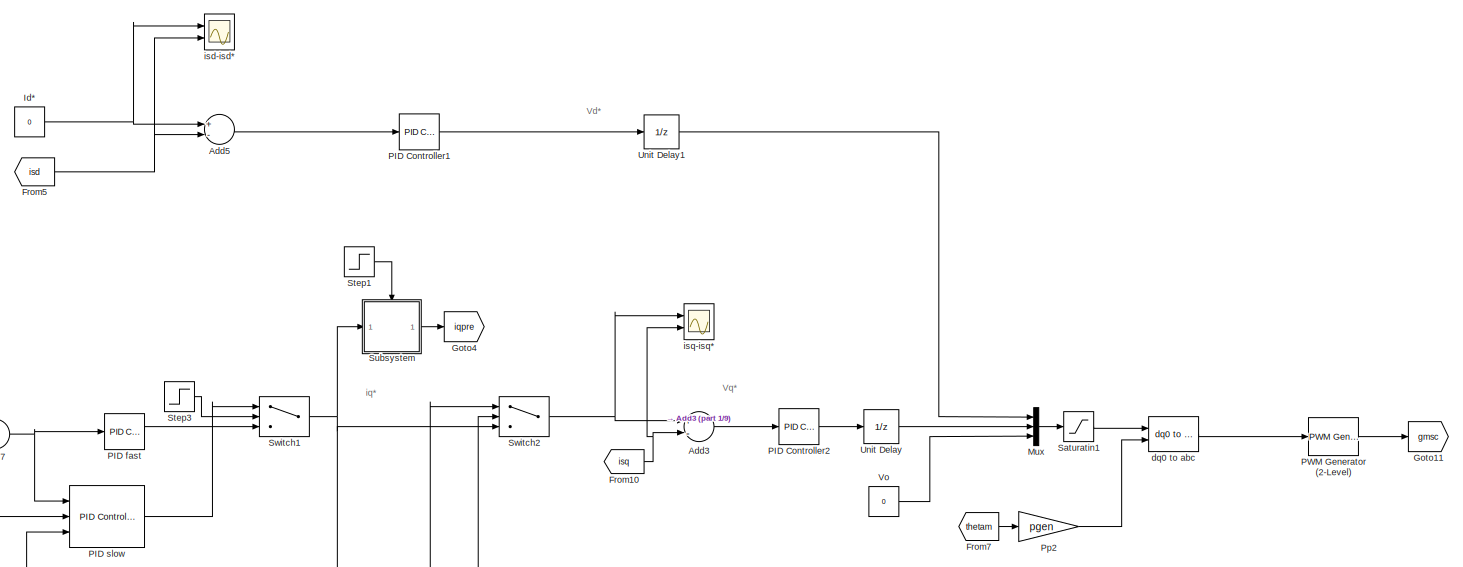
[diagram: GE2.75 - 2 - part 3/9, top left region]
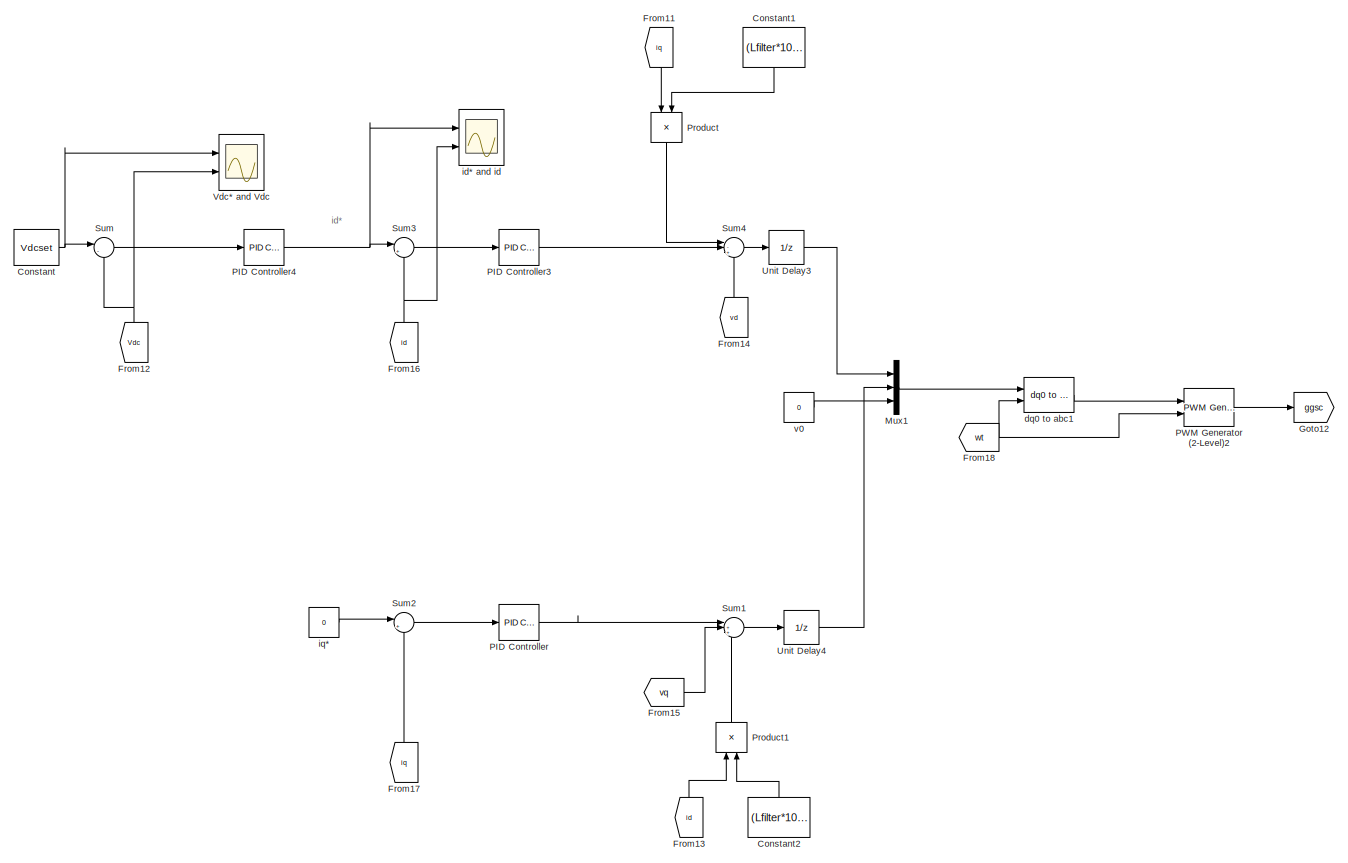
[diagram: GE2.75 - 2 - part 4/9, top right region]
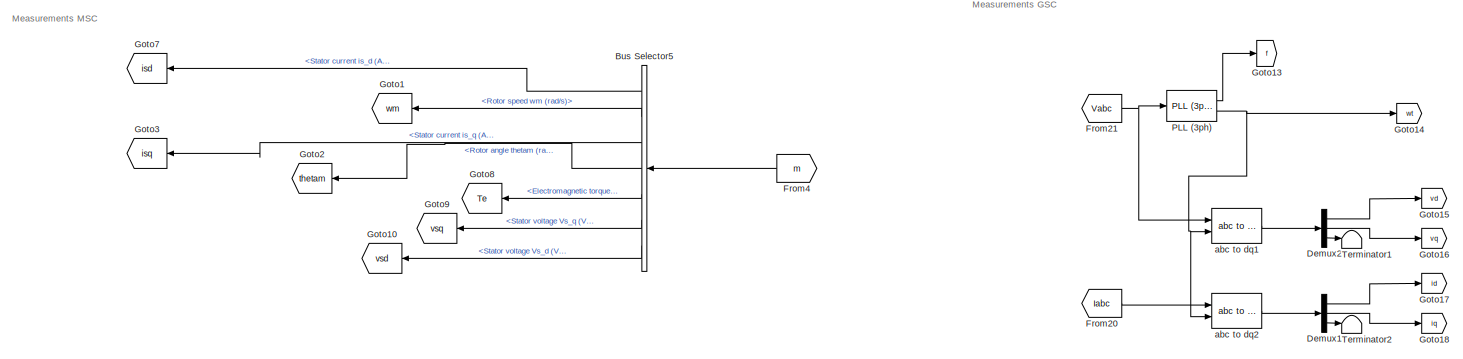
[diagram: GE2.75 - 2 - part 5/9, central region]
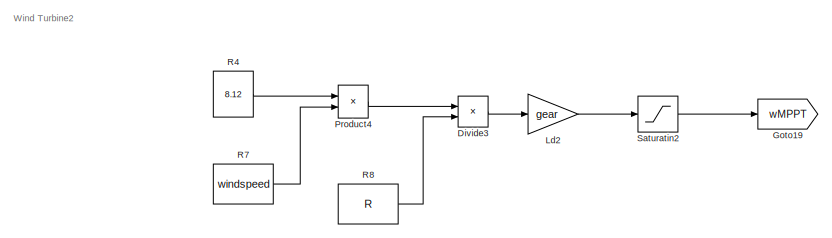
[diagram: GE2.75 - 2 - part 6/9, middle left region]
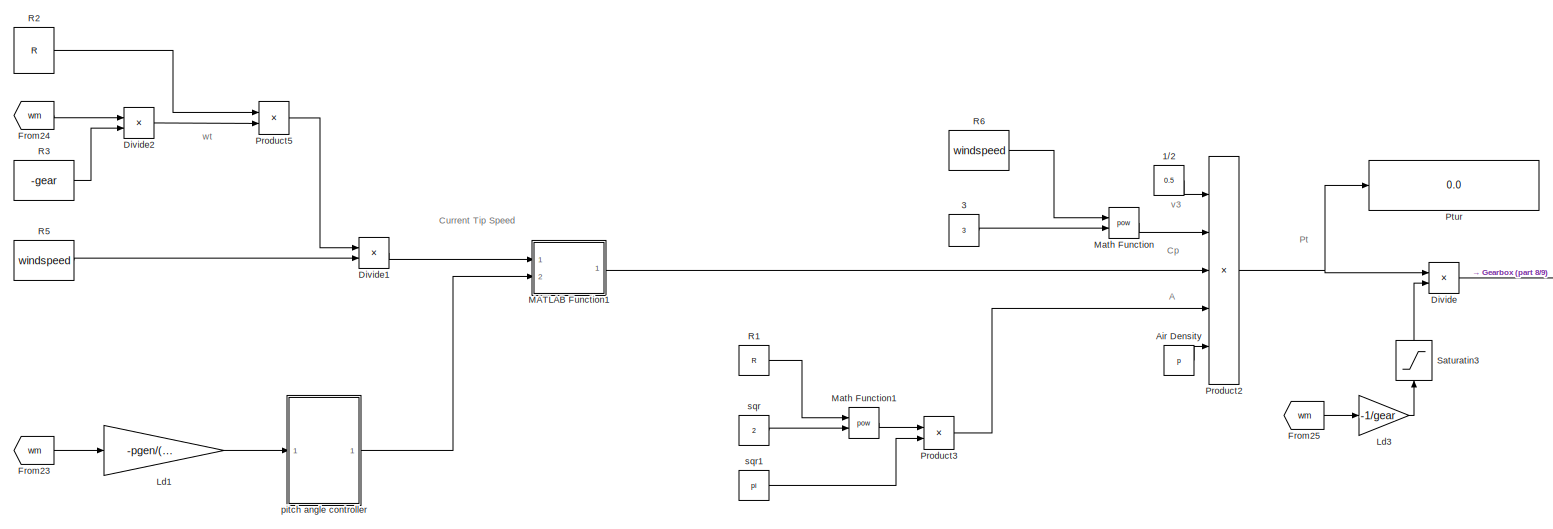
[diagram: GE2.75 - 2 - part 7/9, bottom left region]
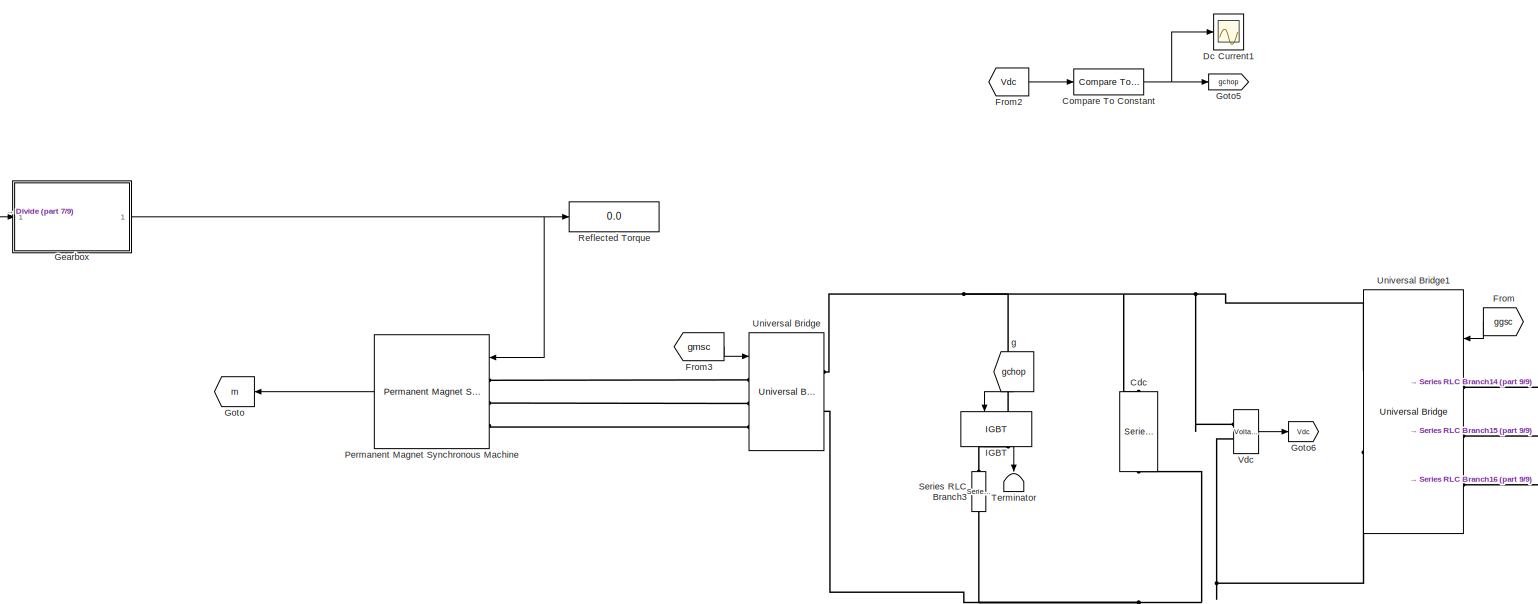
[diagram: GE2.75 - 2 - part 8/9, bottom center region]
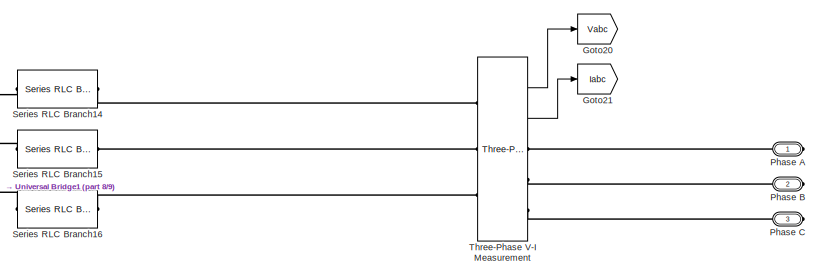
[diagram: GE2.75 - 2 - part 9/9, bottom right region]
BLOCK [SubSystem] GE2.75 - 2
  Ports = [0, 0, 0, 0, 0, 0, 3]
  RequestExecContextInheritance = off
  Variant = off
BLOCK [Constant] GE2.75 - 2/1//2
  Value = 0.5
BLOCK [Constant] GE2.75 - 2/3
  Value = 3
BLOCK [Sum] GE2.75 - 2/Add3
  InputSameDT = off
  Inputs = +-
  OutDataTypeStr = Inherit: Inherit via internal rule
  Ports = [2, 1]
  SaturateOnIntegerOverflow = off
BLOCK [Sum] GE2.75 - 2/Add5
  InputSameDT = off
  Inputs = +-
  OutDataTypeStr = Inherit: Inherit via internal rule
  Ports = [2, 1]
  SaturateOnIntegerOverflow = off
BLOCK [Sum] GE2.75 - 2/Add7
  InputSameDT = off
  Inputs = -+
  OutDataTypeStr = Inherit: Inherit via internal rule
  Ports = [2, 1]
  SaturateOnIntegerOverflow = off
BLOCK [Constant] GE2.75 - 2/Air Density
  Value = p
BLOCK [BusSelector] GE2.75 - 2/Bus Selector5
  OutputSignals = Stator current is_d (A),Rotor speed wm (rad/s),Stator current is_q (A),Rotor angle thetam (rad),Electromagnetic torque Te (N*m),Stator voltage Vs_q (V),Stator voltage Vs_d (V)
  Ports = [1, 7]
BLOCK [Reference] GE2.75 - 2/Cdc  REF=powerlib/Elements/Series RLC Branch
  Ports = [0, 0, 0, 0, 0, 1, 1]
  SourceBlock = powerlib/Elements/Series RLC Branch
  SourceType = Series RLC Branch
BLOCK [Reference] GE2.75 - 2/Compare To Constant  REF=simulink/Logic and Bit
Operations/Compare
To Constant
  Ports = [1, 1]
  SourceBlock = simulink/Logic and Bit\nOperations/Compare\nTo Constant
  SourceType = Compare To Constant
BLOCK [Constant] GE2.75 - 2/Constant
  Value = Vdcset
BLOCK [Constant] GE2.75 - 2/Constant1
  Value = (Lfilter*100*pi*2300)/690
BLOCK [Constant] GE2.75 - 2/Constant2
  Value = (Lfilter*100*pi*2300)/690
BLOCK [Scope] GE2.75 - 2/Dc Current1
  Ports = [1]
BLOCK [Demux] GE2.75 - 2/Demux1
  DisplayOption = bar
  Outputs = 3
  Ports = [1, 3]
BLOCK [Demux] GE2.75 - 2/Demux2
  DisplayOption = bar
  Outputs = 3
  Ports = [1, 3]
BLOCK [Product] GE2.75 - 2/Divide
  InputSameDT = off
  Inputs = */
  OutDataTypeStr = Inherit: Inherit via internal rule
  Ports = [2, 1]
  RndMeth = Floor
  SaturateOnIntegerOverflow = off
BLOCK [Product] GE2.75 - 2/Divide1
  InputSameDT = off
  Inputs = */
  OutDataTypeStr = Inherit: Inherit via internal rule
  Ports = [2, 1]
  RndMeth = Floor
  SaturateOnIntegerOverflow = off
BLOCK [Product] GE2.75 - 2/Divide2
  InputSameDT = off
  Inputs = */
  OutDataTypeStr = Inherit: Inherit via internal rule
  Ports = [2, 1]
  RndMeth = Floor
  SaturateOnIntegerOverflow = off
BLOCK [Product] GE2.75 - 2/Divide3
  InputSameDT = off
  Inputs = */
  OutDataTypeStr = Inherit: Inherit via internal rule
  Ports = [2, 1]
  RndMeth = Floor
  SaturateOnIntegerOverflow = off
BLOCK [From] GE2.75 - 2/From
  GotoTag = ggsc
BLOCK [From] GE2.75 - 2/From1
  GotoTag = fgrid
  TagVisibility = global
BLOCK [From] GE2.75 - 2/From10
  GotoTag = isq
BLOCK [From] GE2.75 - 2/From11
  GotoTag = iq
BLOCK [From] GE2.75 - 2/From12
  GotoTag = Vdc
BLOCK [From] GE2.75 - 2/From13
  GotoTag = id
BLOCK [From] GE2.75 - 2/From14
  GotoTag = vd
BLOCK [From] GE2.75 - 2/From15
  GotoTag = vq
BLOCK [From] GE2.75 - 2/From16
  GotoTag = id
BLOCK [From] GE2.75 - 2/From17
  GotoTag = iq
BLOCK [From] GE2.75 - 2/From18
  GotoTag = wt
BLOCK [From] GE2.75 - 2/From19
  GotoTag = iqpre
BLOCK [From] GE2.75 - 2/From2
  GotoTag = Vdc
BLOCK [From] GE2.75 - 2/From20
  GotoTag = Iabc
BLOCK [From] GE2.75 - 2/From21
  GotoTag = Vabc
BLOCK [From] GE2.75 - 2/From22
  GotoTag = wpre
BLOCK [From] GE2.75 - 2/From23
  GotoTag = wm
BLOCK [From] GE2.75 - 2/From24
  GotoTag = wm
BLOCK [From] GE2.75 - 2/From25
  GotoTag = wm
BLOCK [From] GE2.75 - 2/From26
  GotoTag = wm
BLOCK [From] GE2.75 - 2/From3
  GotoTag = gmsc
BLOCK [From] GE2.75 - 2/From4
  GotoTag = m
BLOCK [From] GE2.75 - 2/From5
  GotoTag = isd
BLOCK [From] GE2.75 - 2/From6
  GotoTag = wm
BLOCK [From] GE2.75 - 2/From7
  GotoTag = thetam
BLOCK [From] GE2.75 - 2/From8
  GotoTag = rocof
  TagVisibility = global
BLOCK [From] GE2.75 - 2/From9
  GotoTag = wMPPT
BLOCK [SubSystem] GE2.75 - 2/Gearbox
  Ports = [1, 1]
  RequestExecContextInheritance = off
  Variant = off
BLOCK [Product] GE2.75 - 2/Gearbox/Divide
  InputSameDT = off
  Inputs = */
  OutDataTypeStr = Inherit: Inherit via internal rule
  Ports = [2, 1]
  RndMeth = Floor
  SaturateOnIntegerOverflow = off
BLOCK [Constant] GE2.75 - 2/Gearbox/Gear Ratio1
  Value = gear
BLOCK [Inport] GE2.75 - 2/Gearbox/Tt
  IconDisplay = Port number
BLOCK [Outport] GE2.75 - 2/Gearbox/Tt'
  IconDisplay = Port number
BLOCK [Goto] GE2.75 - 2/Goto
  GotoTag = m
BLOCK [Goto] GE2.75 - 2/Goto1
  GotoTag = wm
BLOCK [Goto] GE2.75 - 2/Goto10
  GotoTag = vsd
BLOCK [Goto] GE2.75 - 2/Goto11
  GotoTag = gmsc
BLOCK [Goto] GE2.75 - 2/Goto12
  GotoTag = ggsc
BLOCK [Goto] GE2.75 - 2/Goto13
  GotoTag = f
BLOCK [Goto] GE2.75 - 2/Goto14
  GotoTag = wt
BLOCK [Goto] GE2.75 - 2/Goto15
  GotoTag = vd
BLOCK [Goto] GE2.75 - 2/Goto16
  GotoTag = vq
BLOCK [Goto] GE2.75 - 2/Goto17
  GotoTag = id
BLOCK [Goto] GE2.75 - 2/Goto18
  GotoTag = iq
BLOCK [Goto] GE2.75 - 2/Goto19
  GotoTag = wMPPT
BLOCK [Goto] GE2.75 - 2/Goto2
  GotoTag = thetam
BLOCK [Goto] GE2.75 - 2/Goto20
  GotoTag = Vabc
BLOCK [Goto] GE2.75 - 2/Goto21
  GotoTag = Iabc
BLOCK [Goto] GE2.75 - 2/Goto22
  GotoTag = wpre
BLOCK [Goto] GE2.75 - 2/Goto3
  GotoTag = isq
BLOCK [Goto] GE2.75 - 2/Goto4
  GotoTag = iqpre
BLOCK [Goto] GE2.75 - 2/Goto5
  GotoTag = gchop
BLOCK [Goto] GE2.75 - 2/Goto6
  GotoTag = Vdc
BLOCK [Goto] GE2.75 - 2/Goto7
  GotoTag = isd
BLOCK [Goto] GE2.75 - 2/Goto8
  GotoTag = Te
BLOCK [Goto] GE2.75 - 2/Goto9
  GotoTag = vsq
BLOCK [Reference] GE2.75 - 2/IGBT  REF=powerlib/Power
Electronics/IGBT
  Ports = [1, 1, 0, 0, 0, 1, 1]
  SourceBlock = powerlib/Power\nElectronics/IGBT
  SourceType = IGBT
BLOCK [Constant] GE2.75 - 2/Id*
  Value = 0
BLOCK [Gain] GE2.75 - 2/Ld1
  Gain = -pgen/(2*fnom*pi)
  OutDataTypeStr = Inherit: Inherit via internal rule
  ParamDataTypeStr = Inherit: Inherit via internal rule
  SaturateOnIntegerOverflow = off
BLOCK [Gain] GE2.75 - 2/Ld2
  Gain = gear
  OutDataTypeStr = Inherit: Inherit via internal rule
  ParamDataTypeStr = Inherit: Inherit via internal rule
  SaturateOnIntegerOverflow = off
BLOCK [Gain] GE2.75 - 2/Ld3
  Gain = -1/gear
  OutDataTypeStr = Inherit: Inherit via internal rule
  ParamDataTypeStr = Inherit: Inherit via internal rule
  SaturateOnIntegerOverflow = off
BLOCK [Gain] GE2.75 - 2/Ld4
  Gain = -1
  OutDataTypeStr = Inherit: Inherit via internal rule
  ParamDataTypeStr = Inherit: Inherit via internal rule
  SaturateOnIntegerOverflow = off
BLOCK [SubSystem] GE2.75 - 2/MATLAB Function1
  ErrorFcn = Stateflow.Translate.translate
  PermitHierarchicalResolution = ExplicitOnly
  Ports = [2, 1]
  RequestExecContextInheritance = off
  SFBlockType = MATLAB Function
  TreatAsAtomicUnit = on
  Variant = off
BLOCK [Demux] GE2.75 - 2/MATLAB Function1/ Demux 
  Outputs = 1
  Ports = [1, 1]
BLOCK [S-Function] GE2.75 - 2/MATLAB Function1/ SFunction 
  EnableBusSupport = on
  FunctionName = sf_sfun
  PortCounts = [2 2]
  Ports = [2, 2]
  SFunctionDeploymentMode = off
  Tag = Stateflow S-Function Optimized_wind_farm_with_dynamic_grid 2
BLOCK [Terminator] GE2.75 - 2/MATLAB Function1/ Terminator 
BLOCK [Inport] GE2.75 - 2/MATLAB Function1/B
  IconDisplay = Port number
  Port = 2
BLOCK [Outport] GE2.75 - 2/MATLAB Function1/Cp
  IconDisplay = Port number
BLOCK [Inport] GE2.75 - 2/MATLAB Function1/u
  IconDisplay = Port number
BLOCK [Math] GE2.75 - 2/Math Function
  Operator = pow
  Ports = [2, 1]
BLOCK [Math] GE2.75 - 2/Math Function1
  Operator = pow
  Ports = [2, 1]
BLOCK [Mux] GE2.75 - 2/Mux
  DisplayOption = bar
  Inputs = 3
  Ports = [3, 1]
BLOCK [Mux] GE2.75 - 2/Mux1
  DisplayOption = bar
  Inputs = 3
  Ports = [3, 1]
BLOCK [Reference] GE2.75 - 2/PID Controller  REF=simulink/Continuous/PID Controller
  Ports = [1, 1]
  SourceBlock = simulink/Continuous/PID Controller
  SourceType = PID 1dof
BLOCK [Reference] GE2.75 - 2/PID Controller1  REF=simulink/Continuous/PID Controller
  Ports = [1, 1]
  SourceBlock = simulink/Continuous/PID Controller
  SourceType = PID 1dof
BLOCK [Reference] GE2.75 - 2/PID Controller2  REF=simulink/Continuous/PID Controller
  Ports = [1, 1]
  SourceBlock = simulink/Continuous/PID Controller
  SourceType = PID 1dof
BLOCK [Reference] GE2.75 - 2/PID Controller3  REF=simulink/Continuous/PID Controller
  Ports = [1, 1]
  SourceBlock = simulink/Continuous/PID Controller
  SourceType = PID 1dof
BLOCK [Reference] GE2.75 - 2/PID Controller4  REF=simulink/Continuous/PID Controller
  Ports = [1, 1]
  SourceBlock = simulink/Continuous/PID Controller
  SourceType = PID 1dof
BLOCK [Reference] GE2.75 - 2/PID fast  REF=simulink/Continuous/PID Controller
  Ports = [1, 1]
  SourceBlock = simulink/Continuous/PID Controller
  SourceType = PID 1dof
BLOCK [Reference] GE2.75 - 2/PID slow  REF=simulink/Continuous/PID Controller
  Ports = [3, 1]
  SourceBlock = simulink/Continuous/PID Controller
  SourceType = PID 1dof
BLOCK [Reference] GE2.75 - 2/PLL (3ph)  REF=powerlib_meascontrol/PLL/PLL
(3ph)
  Ports = [1, 2]
  SourceBlock = powerlib_meascontrol/PLL/PLL\n(3ph)
  SourceType = PLL (3ph)
BLOCK [Reference] GE2.75 - 2/PWM Generator (2-Level)  REF=powerlib_meascontrol/Pulse & Signal
Generators/PWM Generator
(2-Level)
  Ports = [1, 1]
  SourceBlock = powerlib_meascontrol/Pulse & Signal\nGenerators/PWM Generator\n(2-Level)
  SourceType = PWM Generator (2-Level)
BLOCK [Reference] GE2.75 - 2/PWM Generator (2-Level)2  REF=powerlib_meascontrol/Pulse & Signal
Generators/PWM Generator
(2-Level)
  Ports = [2, 1]
  SourceBlock = powerlib_meascontrol/Pulse & Signal\nGenerators/PWM Generator\n(2-Level)
  SourceType = PWM Generator (2-Level)
BLOCK [Reference] GE2.75 - 2/Permanent Magnet Synchronous Machine  REF=powerlib/Machines/Permanent Magnet
Synchronous Machine
  Ports = [1, 1, 0, 0, 0, 3]
  SourceBlock = powerlib/Machines/Permanent Magnet\nSynchronous Machine
  SourceType = Permanent Magnet Synchronous Machine
BLOCK [PMIOPort] GE2.75 - 2/Phase A
  Port = 1
  Side = Right
BLOCK [PMIOPort] GE2.75 - 2/Phase B
  Port = 2
  Side = Right
BLOCK [PMIOPort] GE2.75 - 2/Phase C
  Port = 3
  Side = Right
BLOCK [Gain] GE2.75 - 2/Pp2
  Gain = pgen
  OutDataTypeStr = Inherit: Inherit via internal rule
  ParamDataTypeStr = Inherit: Inherit via internal rule
  SaturateOnIntegerOverflow = off
BLOCK [Product] GE2.75 - 2/Product
  InputSameDT = off
  OutDataTypeStr = Inherit: Inherit via internal rule
  Ports = [2, 1]
  RndMeth = Floor
  SaturateOnIntegerOverflow = off
BLOCK [Product] GE2.75 - 2/Product1
  InputSameDT = off
  OutDataTypeStr = Inherit: Inherit via internal rule
  Ports = [2, 1]
  RndMeth = Floor
  SaturateOnIntegerOverflow = off
BLOCK [Product] GE2.75 - 2/Product2
  InputSameDT = off
  Inputs = 5
  OutDataTypeStr = Inherit: Inherit via internal rule
  Ports = [5, 1]
  RndMeth = Floor
  SaturateOnIntegerOverflow = off
BLOCK [Product] GE2.75 - 2/Product3
  InputSameDT = off
  OutDataTypeStr = Inherit: Inherit via internal rule
  Ports = [2, 1]
  RndMeth = Floor
  SaturateOnIntegerOverflow = off
BLOCK [Product] GE2.75 - 2/Product4
  InputSameDT = off
  OutDataTypeStr = Inherit: Inherit via internal rule
  Ports = [2, 1]
  RndMeth = Floor
  SaturateOnIntegerOverflow = off
BLOCK [Product] GE2.75 - 2/Product5
  InputSameDT = off
  OutDataTypeStr = Inherit: Inherit via internal rule
  Ports = [2, 1]
  RndMeth = Floor
  SaturateOnIntegerOverflow = off
BLOCK [Display] GE2.75 - 2/Ptur
  Decimation = 1
  Ports = [1]
BLOCK [Constant] GE2.75 - 2/R1
  Value = R
BLOCK [Constant] GE2.75 - 2/R2
  Value = R
BLOCK [Constant] GE2.75 - 2/R3
  Value = -gear
BLOCK [Constant] GE2.75 - 2/R4
  Value = 8.12
BLOCK [Constant] GE2.75 - 2/R5
  Value = windspeed
BLOCK [Constant] GE2.75 - 2/R6
  Value = windspeed
BLOCK [Constant] GE2.75 - 2/R7
  Value = windspeed
BLOCK [Constant] GE2.75 - 2/R8
  Value = R
BLOCK [Display] GE2.75 - 2/Reflected Torque
  Decimation = 1
  Ports = [1]
BLOCK [Saturate] GE2.75 - 2/Saturatin1
  InputPortMap = u0
  LowerLimit = -2000
  Ports = [1, 1]
  UpperLimit = 2000
BLOCK [Saturate] GE2.75 - 2/Saturatin2
  InputPortMap = u0
  LowerLimit = 1e-8
  Ports = [1, 1]
  UpperLimit = wmax
BLOCK [Saturate] GE2.75 - 2/Saturatin3
  InputPortMap = u0
  LowerLimit = 1e-8
  Ports = [1, 1]
  UpperLimit = inf
BLOCK [Reference] GE2.75 - 2/Series RLC Branch14  REF=powerlib/Elements/Series RLC Branch
  Ports = [0, 0, 0, 0, 0, 1, 1]
  SourceBlock = powerlib/Elements/Series RLC Branch
  SourceType = Series RLC Branch
BLOCK [Reference] GE2.75 - 2/Series RLC Branch15  REF=powerlib/Elements/Series RLC Branch
  Ports = [0, 0, 0, 0, 0, 1, 1]
  SourceBlock = powerlib/Elements/Series RLC Branch
  SourceType = Series RLC Branch
BLOCK [Reference] GE2.75 - 2/Series RLC Branch16  REF=powerlib/Elements/Series RLC Branch
  Ports = [0, 0, 0, 0, 0, 1, 1]
  SourceBlock = powerlib/Elements/Series RLC Branch
  SourceType = Series RLC Branch
BLOCK [Reference] GE2.75 - 2/Series RLC Branch3  REF=powerlib/Elements/Series RLC Branch
  Ports = [0, 0, 0, 0, 0, 1, 1]
  SourceBlock = powerlib/Elements/Series RLC Branch
  SourceType = Series RLC Branch
BLOCK [Step] GE2.75 - 2/Step1
  After = 0
  Before = 1
  SampleTime = Ts
  Time = insup
BLOCK [Step] GE2.75 - 2/Step2
  Time = startuptime
BLOCK [Step] GE2.75 - 2/Step3
  Time = startuptime
BLOCK [Step] GE2.75 - 2/Step4
  After = 0
  Before = 1
  SampleTime = Ts
  Time = insup
BLOCK [Step] GE2.75 - 2/Step5
  SampleTime = Ts
  Time = insup
BLOCK [SubSystem] GE2.75 - 2/Subsystem
  Ports = [1, 1, 1]
  RequestExecContextInheritance = off
  Variant = off
BLOCK [EnablePort] GE2.75 - 2/Subsystem/Enable
  Ports = []
BLOCK [Inport] GE2.75 - 2/Subsystem/In1
  IconDisplay = Port number
BLOCK [Outport] GE2.75 - 2/Subsystem/Out1
  IconDisplay = Port number
BLOCK [SubSystem] GE2.75 - 2/Subsystem1
  Ports = [1, 1, 1]
  RequestExecContextInheritance = off
  Variant = off
BLOCK [EnablePort] GE2.75 - 2/Subsystem1/Enable
  Ports = []
BLOCK [Inport] GE2.75 - 2/Subsystem1/In1
  IconDisplay = Port number
BLOCK [Outport] GE2.75 - 2/Subsystem1/Out1
  IconDisplay = Port number
BLOCK [SubSystem] GE2.75 - 2/Subsystem2
  Ports = [5, 1, 1]
  RequestExecContextInheritance = off
  Variant = off
BLOCK [Sum] GE2.75 - 2/Subsystem2/Add1
  InputSameDT = off
  OutDataTypeStr = Inherit: Inherit via internal rule
  Ports = [2, 1]
  SaturateOnIntegerOverflow = off
BLOCK [Product] GE2.75 - 2/Subsystem2/Divide4
  InputSameDT = off
  Inputs = */
  OutDataTypeStr = Inherit: Inherit via internal rule
  Ports = [2, 1]
  RndMeth = Floor
  SaturateOnIntegerOverflow = off
BLOCK [EnablePort] GE2.75 - 2/Subsystem2/Enable
  Ports = []
BLOCK [Inport] GE2.75 - 2/Subsystem2/In1
  IconDisplay = Port number
BLOCK [Inport] GE2.75 - 2/Subsystem2/In2
  IconDisplay = Port number
  Port = 2
BLOCK [Inport] GE2.75 - 2/Subsystem2/In3
  IconDisplay = Port number
  Port = 3
BLOCK [Inport] GE2.75 - 2/Subsystem2/In4
  IconDisplay = Port number
  Port = 4
BLOCK [Inport] GE2.75 - 2/Subsystem2/In5
  IconDisplay = Port number
  Port = 5
BLOCK [Outport] GE2.75 - 2/Subsystem2/Out1
  IconDisplay = Port number
BLOCK [Gain] GE2.75 - 2/Subsystem2/Pp1
  Gain = 1/fnom
  OutDataTypeStr = Inherit: Inherit via internal rule
  ParamDataTypeStr = Inherit: Inherit via internal rule
  SaturateOnIntegerOverflow = off
BLOCK [Gain] GE2.75 - 2/Subsystem2/Pp2
  Gain = -1
  OutDataTypeStr = Inherit: Inherit via internal rule
  ParamDataTypeStr = Inherit: Inherit via internal rule
  SaturateOnIntegerOverflow = off
BLOCK [Gain] GE2.75 - 2/Subsystem2/Pp3
  Gain = -1/fnom
  OutDataTypeStr = Inherit: Inherit via internal rule
  ParamDataTypeStr = Inherit: Inherit via internal rule
  SaturateOnIntegerOverflow = off
BLOCK [Gain] GE2.75 - 2/Subsystem2/Pp4
  Gain = 2*H
  OutDataTypeStr = Inherit: Inherit via internal rule
  ParamDataTypeStr = Inherit: Inherit via internal rule
  SaturateOnIntegerOverflow = off
BLOCK [Product] GE2.75 - 2/Subsystem2/Product6
  InputSameDT = off
  OutDataTypeStr = Inherit: Inherit via internal rule
  Ports = [2, 1]
  RndMeth = Floor
  SaturateOnIntegerOverflow = off
BLOCK [Product] GE2.75 - 2/Subsystem2/Product7
  InputSameDT = off
  Inputs = 3
  OutDataTypeStr = Inherit: Inherit via internal rule
  Ports = [3, 1]
  RndMeth = Floor
  SaturateOnIntegerOverflow = off
BLOCK [Constant] GE2.75 - 2/Subsystem2/Vo1
BLOCK [Scope] GE2.75 - 2/Subsystem2/wref-w1
  Ports = [1]
BLOCK [Scope] GE2.75 - 2/Subsystem2/wref-w2
  Ports = [1]
BLOCK [Sum] GE2.75 - 2/Sum
  IconShape = round
  InputSameDT = off
  Inputs = |-+
  OutDataTypeStr = Inherit: Inherit via internal rule
  Ports = [2, 1]
  SaturateOnIntegerOverflow = off
BLOCK [Sum] GE2.75 - 2/Sum1
  IconShape = round
  InputSameDT = off
  Inputs = |+++
  OutDataTypeStr = Inherit: Inherit via internal rule
  Ports = [3, 1]
  SaturateOnIntegerOverflow = off
BLOCK [Sum] GE2.75 - 2/Sum2
  IconShape = round
  InputSameDT = off
  Inputs = |+-
  OutDataTypeStr = Inherit: Inherit via internal rule
  Ports = [2, 1]
  SaturateOnIntegerOverflow = off
BLOCK [Sum] GE2.75 - 2/Sum3
  IconShape = round
  InputSameDT = off
  Inputs = |+-
  OutDataTypeStr = Inherit: Inherit via internal rule
  Ports = [2, 1]
  SaturateOnIntegerOverflow = off
BLOCK [Sum] GE2.75 - 2/Sum4
  IconShape = round
  InputSameDT = off
  Inputs = |-++
  OutDataTypeStr = Inherit: Inherit via internal rule
  Ports = [3, 1]
  SaturateOnIntegerOverflow = off
BLOCK [Switch] GE2.75 - 2/Switch1
  Criteria = u2 > Threshold
  InputSameDT = off
  SaturateOnIntegerOverflow = off
  Threshold = 0.5
BLOCK [Switch] GE2.75 - 2/Switch2
  Criteria = u2 > Threshold
  InputSameDT = off
  SaturateOnIntegerOverflow = off
  Threshold = 0.5
BLOCK [Terminator] GE2.75 - 2/Terminator
BLOCK [Terminator] GE2.75 - 2/Terminator1
BLOCK [Terminator] GE2.75 - 2/Terminator2
BLOCK [Reference] GE2.75 - 2/Three-Phase V-I Measurement  REF=powerlib/Measurements/Three-Phase
V-I Measurement
  Ports = [0, 2, 0, 0, 0, 3, 3]
  SourceBlock = powerlib/Measurements/Three-Phase\nV-I Measurement
  SourceType = Three-Phase VI Measurement
BLOCK [UnitDelay] GE2.75 - 2/Unit Delay
  InputProcessing = Elements as channels (sample based)
  SampleTime = Ts
BLOCK [UnitDelay] GE2.75 - 2/Unit Delay1
  InputProcessing = Elements as channels (sample based)
  SampleTime = Ts
BLOCK [UnitDelay] GE2.75 - 2/Unit Delay2
  InputProcessing = Elements as channels (sample based)
  SampleTime = Ts
BLOCK [UnitDelay] GE2.75 - 2/Unit Delay3
  InputProcessing = Elements as channels (sample based)
  SampleTime = Ts
BLOCK [UnitDelay] GE2.75 - 2/Unit Delay4
  InputProcessing = Elements as channels (sample based)
  SampleTime = Ts
BLOCK [Reference] GE2.75 - 2/Universal Bridge  REF=powerlib/Power
Electronics/Universal Bridge
  Ports = [1, 0, 0, 0, 0, 3, 2]
  SourceBlock = powerlib/Power\nElectronics/Universal Bridge
  SourceType = Universal Bridge
BLOCK [Reference] GE2.75 - 2/Universal Bridge1  REF=powerlib/Power
Electronics/Universal Bridge
  Ports = [1, 0, 0, 0, 0, 3, 2]
  SourceBlock = powerlib/Power\nElectronics/Universal Bridge
  SourceType = Universal Bridge
BLOCK [Reference] GE2.75 - 2/Vdc  REF=powerlib/Measurements/Voltage Measurement
  Ports = [0, 1, 0, 0, 0, 2]
  SourceBlock = powerlib/Measurements/Voltage Measurement
  SourceType = Voltage Measurement
  UserDataPersistent = on
BLOCK [Scope] GE2.75 - 2/Vdc* and Vdc
  NumInputPorts = 2
  Ports = [2]
BLOCK [Constant] GE2.75 - 2/Vo
  Value = 0
BLOCK [Reference] GE2.75 - 2/abc to dq1  REF=powerlib_meascontrol/Transformations/abc to dq0
  Ports = [2, 1]
  SourceBlock = powerlib_meascontrol/Transformations/abc to dq0
  SourceType = abc to dq0 Transformation
BLOCK [Reference] GE2.75 - 2/abc to dq2  REF=powerlib_meascontrol/Transformations/abc to dq0
  Ports = [2, 1]
  SourceBlock = powerlib_meascontrol/Transformations/abc to dq0
  SourceType = abc to dq0 Transformation
BLOCK [Reference] GE2.75 - 2/dq0 to abc  REF=powerlib_meascontrol/Transformations/dq0 to abc
  Ports = [2, 1]
  SourceBlock = powerlib_meascontrol/Transformations/dq0 to abc
  SourceType = dq0 to abc Transformation
BLOCK [Reference] GE2.75 - 2/dq0 to abc1  REF=powerlib_meascontrol/Transformations/dq0 to abc
  Ports = [2, 1]
  SourceBlock = powerlib_meascontrol/Transformations/dq0 to abc
  SourceType = dq0 to abc Transformation
BLOCK [From] GE2.75 - 2/g
  GotoTag = gchop
BLOCK [Scope] GE2.75 - 2/id* and id 
  NumInputPorts = 2
  Ports = [2]
BLOCK [Constant] GE2.75 - 2/iq*
  Value = 0
BLOCK [Scope] GE2.75 - 2/isd-isd*
  NumInputPorts = 2
  Ports = [2]
BLOCK [Scope] GE2.75 - 2/isq-isq*
  NumInputPorts = 2
  Ports = [2]
BLOCK [SubSystem] GE2.75 - 2/pitch angle controller
  Ports = [1, 1]
  RequestExecContextInheritance = off
  Variant = off
BLOCK [Outport] GE2.75 - 2/pitch angle controller/Beta
  IconDisplay = Port number
BLOCK [Constant] GE2.75 - 2/pitch angle controller/Constant1
  SampleTime = Ts
  Value = 1735/1500
BLOCK [SubSystem] GE2.75 - 2/pitch angle controller/pitch angle controller
  Ports = [2, 1]
  RequestExecContextInheritance = off
  Variant = off
BLOCK [Saturate] GE2.75 - 2/pitch angle controller/pitch angle controller/0-pitch_max 
  InputPortMap = u0
  LowerLimit = 0
  Ports = [1, 1]
  SampleTime = Ts
  UpperLimit = 27
BLOCK [Reference] GE2.75 - 2/pitch angle controller/pitch angle controller/Discrete PID Controller  REF=simulink/Continuous/PID Controller
  Ports = [1, 1]
  SourceBlock = simulink/Continuous/PID Controller
  SourceType = PID 1dof
BLOCK [RateLimiter] GE2.75 - 2/pitch angle controller/pitch angle controller/Rate Limiter
  FallingSlewLimit = -10
  RisingSlewLimit = 10
BLOCK [Inport] GE2.75 - 2/pitch angle controller/pitch angle controller/Ref
  IconDisplay = Port number
  Port = 2
BLOCK [Sum] GE2.75 - 2/pitch angle controller/pitch angle controller/Sum3
  IconShape = round
  InputSameDT = off
  Inputs = |+-
  OutDataTypeStr = Inherit: Inherit via internal rule
  Ports = [2, 1]
  SampleTime = Ts
  SaturateOnIntegerOverflow = off
BLOCK [Outport] GE2.75 - 2/pitch angle controller/pitch angle controller/pitch
  IconDisplay = Port number
BLOCK [Reference] GE2.75 - 2/pitch angle controller/pitch angle controller/t=Pitch_time_constant1  REF=powerlib_extras/Discrete 
Control Blocks/Discrete
1st-Order
Filter
  Ports = [1, 1]
  SourceBlock = powerlib_extras/Discrete \nControl Blocks/Discrete\n1st-Order\nFilter
  SourceType = Discrete 1st-Order Filter
BLOCK [Inport] GE2.75 - 2/pitch angle controller/pitch angle controller/wg
  IconDisplay = Port number
BLOCK [Inport] GE2.75 - 2/pitch angle controller/wr
  IconDisplay = Port number
BLOCK [Constant] GE2.75 - 2/sqr
  Value = 2
BLOCK [Constant] GE2.75 - 2/sqr1
  Value = pi
BLOCK [Constant] GE2.75 - 2/v0
  Value = 0
BLOCK [Scope] GE2.75 - 2/wref-w1
  NumInputPorts = 2
  Ports = [2]
BLOCK [Scope] GE2.75 - 2/wref-w3
  Ports = [1]
BLOCK [SubSystem] GE2.75 - 3
  Ports = [0, 0, 0, 0, 0, 0, 3]
  RequestExecContextInheritance = off
  Variant = off
BLOCK [Constant] GE2.75 - 3/1//2
  Value = 0.5
BLOCK [Constant] GE2.75 - 3/3
  Value = 3
BLOCK [Sum] GE2.75 - 3/Add3
  InputSameDT = off
  Inputs = +-
  OutDataTypeStr = Inherit: Inherit via internal rule
  Ports = [2, 1]
  SaturateOnIntegerOverflow = off
BLOCK [Sum] GE2.75 - 3/Add5
  InputSameDT = off
  Inputs = +-
  OutDataTypeStr = Inherit: Inherit via internal rule
  Ports = [2, 1]
  SaturateOnIntegerOverflow = off
BLOCK [Sum] GE2.75 - 3/Add7
  InputSameDT = off
  Inputs = -+
  OutDataTypeStr = Inherit: Inherit via internal rule
  Ports = [2, 1]
  SaturateOnIntegerOverflow = off
BLOCK [Constant] GE2.75 - 3/Air Density
  Value = p
BLOCK [BusSelector] GE2.75 - 3/Bus Selector5
  OutputSignals = Stator current is_d (A),Rotor speed wm (rad/s),Stator current is_q (A),Rotor angle thetam (rad),Electromagnetic torque Te (N*m),Stator voltage Vs_q (V),Stator voltage Vs_d (V)
  Ports = [1, 7]
BLOCK [Reference] GE2.75 - 3/Cdc  REF=powerlib/Elements/Series RLC Branch
  Ports = [0, 0, 0, 0, 0, 1, 1]
  SourceBlock = powerlib/Elements/Series RLC Branch
  SourceType = Series RLC Branch
BLOCK [Reference] GE2.75 - 3/Compare To Constant  REF=simulink/Logic and Bit
Operations/Compare
To Constant
  Ports = [1, 1]
  SourceBlock = simulink/Logic and Bit\nOperations/Compare\nTo Constant
  SourceType = Compare To Constant
BLOCK [Constant] GE2.75 - 3/Constant
  Value = Vdcset
BLOCK [Constant] GE2.75 - 3/Constant1
  Value = (Lfilter*100*pi*2300)/690
BLOCK [Constant] GE2.75 - 3/Constant2
  Value = (Lfilter*100*pi*2300)/690
BLOCK [Scope] GE2.75 - 3/Dc Current1
  Ports = [1]
BLOCK [Demux] GE2.75 - 3/Demux1
  DisplayOption = bar
  Outputs = 3
  Ports = [1, 3]
BLOCK [Demux] GE2.75 - 3/Demux2
  DisplayOption = bar
  Outputs = 3
  Ports = [1, 3]
BLOCK [Product] GE2.75 - 3/Divide
  InputSameDT = off
  Inputs = */
  OutDataTypeStr = Inherit: Inherit via internal rule
  Ports = [2, 1]
  RndMeth = Floor
  SaturateOnIntegerOverflow = off
BLOCK [Product] GE2.75 - 3/Divide1
  InputSameDT = off
  Inputs = */
  OutDataTypeStr = Inherit: Inherit via internal rule
  Ports = [2, 1]
  RndMeth = Floor
  SaturateOnIntegerOverflow = off
BLOCK [Product] GE2.75 - 3/Divide2
  InputSameDT = off
  Inputs = */
  OutDataTypeStr = Inherit: Inherit via internal rule
  Ports = [2, 1]
  RndMeth = Floor
  SaturateOnIntegerOverflow = off
BLOCK [Product] GE2.75 - 3/Divide3
  InputSameDT = off
  Inputs = */
  OutDataTypeStr = Inherit: Inherit via internal rule
  Ports = [2, 1]
  RndMeth = Floor
  SaturateOnIntegerOverflow = off
BLOCK [From] GE2.75 - 3/From
  GotoTag = ggsc
BLOCK [From] GE2.75 - 3/From1
  GotoTag = fgrid
  TagVisibility = global
BLOCK [From] GE2.75 - 3/From10
  GotoTag = isq
BLOCK [From] GE2.75 - 3/From11
  GotoTag = iq
BLOCK [From] GE2.75 - 3/From12
  GotoTag = Vdc
BLOCK [From] GE2.75 - 3/From13
  GotoTag = id
BLOCK [From] GE2.75 - 3/From14
  GotoTag = vd
BLOCK [From] GE2.75 - 3/From15
  GotoTag = vq
BLOCK [From] GE2.75 - 3/From16
  GotoTag = id
BLOCK [From] GE2.75 - 3/From17
  GotoTag = iq
BLOCK [From] GE2.75 - 3/From18
  GotoTag = wt
BLOCK [From] GE2.75 - 3/From19
  GotoTag = iqpre
BLOCK [From] GE2.75 - 3/From2
  GotoTag = Vdc
BLOCK [From] GE2.75 - 3/From20
  GotoTag = Iabc
BLOCK [From] GE2.75 - 3/From21
  GotoTag = Vabc
BLOCK [From] GE2.75 - 3/From22
  GotoTag = wpre
BLOCK [From] GE2.75 - 3/From23
  GotoTag = wm
BLOCK [From] GE2.75 - 3/From24
  GotoTag = wm
BLOCK [From] GE2.75 - 3/From25
  GotoTag = wm
BLOCK [From] GE2.75 - 3/From26
  GotoTag = wm
BLOCK [From] GE2.75 - 3/From3
  GotoTag = gmsc
BLOCK [From] GE2.75 - 3/From4
  GotoTag = m
BLOCK [From] GE2.75 - 3/From5
  GotoTag = isd
BLOCK [From] GE2.75 - 3/From6
  GotoTag = wm
BLOCK [From] GE2.75 - 3/From7
  GotoTag = thetam
BLOCK [From] GE2.75 - 3/From8
  GotoTag = rocof
  TagVisibility = global
BLOCK [From] GE2.75 - 3/From9
  GotoTag = wMPPT
BLOCK [SubSystem] GE2.75 - 3/Gearbox
  Ports = [1, 1]
  RequestExecContextInheritance = off
  Variant = off
BLOCK [Product] GE2.75 - 3/Gearbox/Divide
  InputSameDT = off
  Inputs = */
  OutDataTypeStr = Inherit: Inherit via internal rule
  Ports = [2, 1]
  RndMeth = Floor
  SaturateOnIntegerOverflow = off
BLOCK [Constant] GE2.75 - 3/Gearbox/Gear Ratio1
  Value = gear
BLOCK [Inport] GE2.75 - 3/Gearbox/Tt
  IconDisplay = Port number
BLOCK [Outport] GE2.75 - 3/Gearbox/Tt'
  IconDisplay = Port number
BLOCK [Goto] GE2.75 - 3/Goto
  GotoTag = m
BLOCK [Goto] GE2.75 - 3/Goto1
  GotoTag = wm
BLOCK [Goto] GE2.75 - 3/Goto10
  GotoTag = vsd
BLOCK [Goto] GE2.75 - 3/Goto11
  GotoTag = gmsc
BLOCK [Goto] GE2.75 - 3/Goto12
  GotoTag = ggsc
BLOCK [Goto] GE2.75 - 3/Goto13
  GotoTag = f
BLOCK [Goto] GE2.75 - 3/Goto14
  GotoTag = wt
BLOCK [Goto] GE2.75 - 3/Goto15
  GotoTag = vd
BLOCK [Goto] GE2.75 - 3/Goto16
  GotoTag = vq
BLOCK [Goto] GE2.75 - 3/Goto17
  GotoTag = id
BLOCK [Goto] GE2.75 - 3/Goto18
  GotoTag = iq
BLOCK [Goto] GE2.75 - 3/Goto19
  GotoTag = wMPPT
BLOCK [Goto] GE2.75 - 3/Goto2
  GotoTag = thetam
BLOCK [Goto] GE2.75 - 3/Goto20
  GotoTag = Vabc
BLOCK [Goto] GE2.75 - 3/Goto21
  GotoTag = Iabc
BLOCK [Goto] GE2.75 - 3/Goto22
  GotoTag = wpre
BLOCK [Goto] GE2.75 - 3/Goto3
  GotoTag = isq
BLOCK [Goto] GE2.75 - 3/Goto4
  GotoTag = iqpre
BLOCK [Goto] GE2.75 - 3/Goto5
  GotoTag = gchop
BLOCK [Goto] GE2.75 - 3/Goto6
  GotoTag = Vdc
BLOCK [Goto] GE2.75 - 3/Goto7
  GotoTag = isd
BLOCK [Goto] GE2.75 - 3/Goto8
  GotoTag = Te
BLOCK [Goto] GE2.75 - 3/Goto9
  GotoTag = vsq
BLOCK [Reference] GE2.75 - 3/IGBT  REF=powerlib/Power
Electronics/IGBT
  Ports = [1, 1, 0, 0, 0, 1, 1]
  SourceBlock = powerlib/Power\nElectronics/IGBT
  SourceType = IGBT
BLOCK [Constant] GE2.75 - 3/Id*
  Value = 0
BLOCK [Gain] GE2.75 - 3/Ld1
  Gain = -pgen/(2*fnom*pi)
  OutDataTypeStr = Inherit: Inherit via internal rule
  ParamDataTypeStr = Inherit: Inherit via internal rule
  SaturateOnIntegerOverflow = off
BLOCK [Gain] GE2.75 - 3/Ld2
  Gain = gear
  OutDataTypeStr = Inherit: Inherit via internal rule
  ParamDataTypeStr = Inherit: Inherit via internal rule
  SaturateOnIntegerOverflow = off
BLOCK [Gain] GE2.75 - 3/Ld3
  Gain = -1/gear
  OutDataTypeStr = Inherit: Inherit via internal rule
  ParamDataTypeStr = Inherit: Inherit via internal rule
  SaturateOnIntegerOverflow = off
BLOCK [Gain] GE2.75 - 3/Ld4
  Gain = -1
  OutDataTypeStr = Inherit: Inherit via internal rule
  ParamDataTypeStr = Inherit: Inherit via internal rule
  SaturateOnIntegerOverflow = off
BLOCK [SubSystem] GE2.75 - 3/MATLAB Function1
  ErrorFcn = Stateflow.Translate.translate
  PermitHierarchicalResolution = ExplicitOnly
  Ports = [2, 1]
  RequestExecContextInheritance = off
  SFBlockType = MATLAB Function
  TreatAsAtomicUnit = on
  Variant = off
BLOCK [Demux] GE2.75 - 3/MATLAB Function1/ Demux 
  Outputs = 1
  Ports = [1, 1]
BLOCK [S-Function] GE2.75 - 3/MATLAB Function1/ SFunction 
  EnableBusSupport = on
  FunctionName = sf_sfun
  PortCounts = [2 2]
  Ports = [2, 2]
  SFunctionDeploymentMode = off
  Tag = Stateflow S-Function Optimized_wind_farm_with_dynamic_grid 3
BLOCK [Terminator] GE2.75 - 3/MATLAB Function1/ Terminator 
BLOCK [Inport] GE2.75 - 3/MATLAB Function1/B
  IconDisplay = Port number
  Port = 2
BLOCK [Outport] GE2.75 - 3/MATLAB Function1/Cp
  IconDisplay = Port number
BLOCK [Inport] GE2.75 - 3/MATLAB Function1/u
  IconDisplay = Port number
BLOCK [Math] GE2.75 - 3/Math Function
  Operator = pow
  Ports = [2, 1]
BLOCK [Math] GE2.75 - 3/Math Function1
  Operator = pow
  Ports = [2, 1]
BLOCK [Mux] GE2.75 - 3/Mux
  DisplayOption = bar
  Inputs = 3
  Ports = [3, 1]
BLOCK [Mux] GE2.75 - 3/Mux1
  DisplayOption = bar
  Inputs = 3
  Ports = [3, 1]
BLOCK [Reference] GE2.75 - 3/PID Controller  REF=simulink/Continuous/PID Controller
  Ports = [1, 1]
  SourceBlock = simulink/Continuous/PID Controller
  SourceType = PID 1dof
BLOCK [Reference] GE2.75 - 3/PID Controller1  REF=simulink/Continuous/PID Controller
  Ports = [1, 1]
  SourceBlock = simulink/Continuous/PID Controller
  SourceType = PID 1dof
BLOCK [Reference] GE2.75 - 3/PID Controller2  REF=simulink/Continuous/PID Controller
  Ports = [1, 1]
  SourceBlock = simulink/Continuous/PID Controller
  SourceType = PID 1dof
BLOCK [Reference] GE2.75 - 3/PID Controller3  REF=simulink/Continuous/PID Controller
  Ports = [1, 1]
  SourceBlock = simulink/Continuous/PID Controller
  SourceType = PID 1dof
BLOCK [Reference] GE2.75 - 3/PID Controller4  REF=simulink/Continuous/PID Controller
  Ports = [1, 1]
  SourceBlock = simulink/Continuous/PID Controller
  SourceType = PID 1dof
BLOCK [Reference] GE2.75 - 3/PID fast  REF=simulink/Continuous/PID Controller
  Ports = [1, 1]
  SourceBlock = simulink/Continuous/PID Controller
  SourceType = PID 1dof
BLOCK [Reference] GE2.75 - 3/PID slow  REF=simulink/Continuous/PID Controller
  Ports = [3, 1]
  SourceBlock = simulink/Continuous/PID Controller
  SourceType = PID 1dof
BLOCK [Reference] GE2.75 - 3/PLL (3ph)  REF=powerlib_meascontrol/PLL/PLL
(3ph)
  Ports = [1, 2]
  SourceBlock = powerlib_meascontrol/PLL/PLL\n(3ph)
  SourceType = PLL (3ph)
BLOCK [Reference] GE2.75 - 3/PWM Generator (2-Level)  REF=powerlib_meascontrol/Pulse & Signal
Generators/PWM Generator
(2-Level)
  Ports = [1, 1]
  SourceBlock = powerlib_meascontrol/Pulse & Signal\nGenerators/PWM Generator\n(2-Level)
  SourceType = PWM Generator (2-Level)
BLOCK [Reference] GE2.75 - 3/PWM Generator (2-Level)2  REF=powerlib_meascontrol/Pulse & Signal
Generators/PWM Generator
(2-Level)
  Ports = [2, 1]
  SourceBlock = powerlib_meascontrol/Pulse & Signal\nGenerators/PWM Generator\n(2-Level)
  SourceType = PWM Generator (2-Level)
BLOCK [Reference] GE2.75 - 3/Permanent Magnet Synchronous Machine  REF=powerlib/Machines/Permanent Magnet
Synchronous Machine
  Ports = [1, 1, 0, 0, 0, 3]
  SourceBlock = powerlib/Machines/Permanent Magnet\nSynchronous Machine
  SourceType = Permanent Magnet Synchronous Machine
BLOCK [PMIOPort] GE2.75 - 3/Phase A
  Port = 1
  Side = Right
BLOCK [PMIOPort] GE2.75 - 3/Phase B
  Port = 2
  Side = Right
BLOCK [PMIOPort] GE2.75 - 3/Phase C
  Port = 3
  Side = Right
BLOCK [Gain] GE2.75 - 3/Pp2
  Gain = pgen
  OutDataTypeStr = Inherit: Inherit via internal rule
  ParamDataTypeStr = Inherit: Inherit via internal rule
  SaturateOnIntegerOverflow = off
BLOCK [Product] GE2.75 - 3/Product
  InputSameDT = off
  OutDataTypeStr = Inherit: Inherit via internal rule
  Ports = [2, 1]
  RndMeth = Floor
  SaturateOnIntegerOverflow = off
BLOCK [Product] GE2.75 - 3/Product1
  InputSameDT = off
  OutDataTypeStr = Inherit: Inherit via internal rule
  Ports = [2, 1]
  RndMeth = Floor
  SaturateOnIntegerOverflow = off
BLOCK [Product] GE2.75 - 3/Product2
  InputSameDT = off
  Inputs = 5
  OutDataTypeStr = Inherit: Inherit via internal rule
  Ports = [5, 1]
  RndMeth = Floor
  SaturateOnIntegerOverflow = off
BLOCK [Product] GE2.75 - 3/Product3
  InputSameDT = off
  OutDataTypeStr = Inherit: Inherit via internal rule
  Ports = [2, 1]
  RndMeth = Floor
  SaturateOnIntegerOverflow = off
BLOCK [Product] GE2.75 - 3/Product4
  InputSameDT = off
  OutDataTypeStr = Inherit: Inherit via internal rule
  Ports = [2, 1]
  RndMeth = Floor
  SaturateOnIntegerOverflow = off
BLOCK [Product] GE2.75 - 3/Product5
  InputSameDT = off
  OutDataTypeStr = Inherit: Inherit via internal rule
  Ports = [2, 1]
  RndMeth = Floor
  SaturateOnIntegerOverflow = off
BLOCK [Display] GE2.75 - 3/Ptur
  Decimation = 1
  Ports = [1]
BLOCK [Constant] GE2.75 - 3/R1
  Value = R
BLOCK [Constant] GE2.75 - 3/R2
  Value = R
BLOCK [Constant] GE2.75 - 3/R3
  Value = -gear
BLOCK [Constant] GE2.75 - 3/R4
  Value = 8.12
BLOCK [Constant] GE2.75 - 3/R5
  Value = windspeed
BLOCK [Constant] GE2.75 - 3/R6
  Value = windspeed
BLOCK [Constant] GE2.75 - 3/R7
  Value = windspeed
BLOCK [Constant] GE2.75 - 3/R8
  Value = R
BLOCK [Display] GE2.75 - 3/Reflected Torque
  Decimation = 1
  Ports = [1]
BLOCK [Saturate] GE2.75 - 3/Saturatin1
  InputPortMap = u0
  LowerLimit = -2000
  Ports = [1, 1]
  UpperLimit = 2000
BLOCK [Saturate] GE2.75 - 3/Saturatin2
  InputPortMap = u0
  LowerLimit = 1e-8
  Ports = [1, 1]
  UpperLimit = wmax
BLOCK [Saturate] GE2.75 - 3/Saturatin3
  InputPortMap = u0
  LowerLimit = 1e-8
  Ports = [1, 1]
  UpperLimit = inf
BLOCK [Reference] GE2.75 - 3/Series RLC Branch14  REF=powerlib/Elements/Series RLC Branch
  Ports = [0, 0, 0, 0, 0, 1, 1]
  SourceBlock = powerlib/Elements/Series RLC Branch
  SourceType = Series RLC Branch
BLOCK [Reference] GE2.75 - 3/Series RLC Branch15  REF=powerlib/Elements/Series RLC Branch
  Ports = [0, 0, 0, 0, 0, 1, 1]
  SourceBlock = powerlib/Elements/Series RLC Branch
  SourceType = Series RLC Branch
BLOCK [Reference] GE2.75 - 3/Series RLC Branch16  REF=powerlib/Elements/Series RLC Branch
  Ports = [0, 0, 0, 0, 0, 1, 1]
  SourceBlock = powerlib/Elements/Series RLC Branch
  SourceType = Series RLC Branch
BLOCK [Reference] GE2.75 - 3/Series RLC Branch3  REF=powerlib/Elements/Series RLC Branch
  Ports = [0, 0, 0, 0, 0, 1, 1]
  SourceBlock = powerlib/Elements/Series RLC Branch
  SourceType = Series RLC Branch
BLOCK [Step] GE2.75 - 3/Step1
  After = 0
  Before = 1
  SampleTime = Ts
  Time = insup
BLOCK [Step] GE2.75 - 3/Step2
  Time = startuptime
BLOCK [Step] GE2.75 - 3/Step3
  Time = startuptime
BLOCK [Step] GE2.75 - 3/Step4
  After = 0
  Before = 1
  SampleTime = Ts
  Time = insup
BLOCK [Step] GE2.75 - 3/Step5
  SampleTime = Ts
  Time = insup
BLOCK [SubSystem] GE2.75 - 3/Subsystem
  Ports = [1, 1, 1]
  RequestExecContextInheritance = off
  Variant = off
BLOCK [EnablePort] GE2.75 - 3/Subsystem/Enable
  Ports = []
BLOCK [Inport] GE2.75 - 3/Subsystem/In1
  IconDisplay = Port number
BLOCK [Outport] GE2.75 - 3/Subsystem/Out1
  IconDisplay = Port number
BLOCK [SubSystem] GE2.75 - 3/Subsystem1
  Ports = [1, 1, 1]
  RequestExecContextInheritance = off
  Variant = off
BLOCK [EnablePort] GE2.75 - 3/Subsystem1/Enable
  Ports = []
BLOCK [Inport] GE2.75 - 3/Subsystem1/In1
  IconDisplay = Port number
BLOCK [Outport] GE2.75 - 3/Subsystem1/Out1
  IconDisplay = Port number
BLOCK [SubSystem] GE2.75 - 3/Subsystem2
  Ports = [5, 1, 1]
  RequestExecContextInheritance = off
  Variant = off
BLOCK [Sum] GE2.75 - 3/Subsystem2/Add1
  InputSameDT = off
  OutDataTypeStr = Inherit: Inherit via internal rule
  Ports = [2, 1]
  SaturateOnIntegerOverflow = off
BLOCK [Product] GE2.75 - 3/Subsystem2/Divide4
  InputSameDT = off
  Inputs = */
  OutDataTypeStr = Inherit: Inherit via internal rule
  Ports = [2, 1]
  RndMeth = Floor
  SaturateOnIntegerOverflow = off
BLOCK [EnablePort] GE2.75 - 3/Subsystem2/Enable
  Ports = []
BLOCK [Inport] GE2.75 - 3/Subsystem2/In1
  IconDisplay = Port number
BLOCK [Inport] GE2.75 - 3/Subsystem2/In2
  IconDisplay = Port number
  Port = 2
BLOCK [Inport] GE2.75 - 3/Subsystem2/In3
  IconDisplay = Port number
  Port = 3
BLOCK [Inport] GE2.75 - 3/Subsystem2/In4
  IconDisplay = Port number
  Port = 4
BLOCK [Inport] GE2.75 - 3/Subsystem2/In5
  IconDisplay = Port number
  Port = 5
BLOCK [Outport] GE2.75 - 3/Subsystem2/Out1
  IconDisplay = Port number
BLOCK [Gain] GE2.75 - 3/Subsystem2/Pp1
  Gain = 1/fnom
  OutDataTypeStr = Inherit: Inherit via internal rule
  ParamDataTypeStr = Inherit: Inherit via internal rule
  SaturateOnIntegerOverflow = off
BLOCK [Gain] GE2.75 - 3/Subsystem2/Pp2
  Gain = -1
  OutDataTypeStr = Inherit: Inherit via internal rule
  ParamDataTypeStr = Inherit: Inherit via internal rule
  SaturateOnIntegerOverflow = off
BLOCK [Gain] GE2.75 - 3/Subsystem2/Pp3
  Gain = -1/fnom
  OutDataTypeStr = Inherit: Inherit via internal rule
  ParamDataTypeStr = Inherit: Inherit via internal rule
  SaturateOnIntegerOverflow = off
BLOCK [Gain] GE2.75 - 3/Subsystem2/Pp4
  Gain = 2*H
  OutDataTypeStr = Inherit: Inherit via internal rule
  ParamDataTypeStr = Inherit: Inherit via internal rule
  SaturateOnIntegerOverflow = off
BLOCK [Product] GE2.75 - 3/Subsystem2/Product6
  InputSameDT = off
  OutDataTypeStr = Inherit: Inherit via internal rule
  Ports = [2, 1]
  RndMeth = Floor
  SaturateOnIntegerOverflow = off
BLOCK [Product] GE2.75 - 3/Subsystem2/Product7
  InputSameDT = off
  Inputs = 3
  OutDataTypeStr = Inherit: Inherit via internal rule
  Ports = [3, 1]
  RndMeth = Floor
  SaturateOnIntegerOverflow = off
BLOCK [Constant] GE2.75 - 3/Subsystem2/Vo1
BLOCK [Scope] GE2.75 - 3/Subsystem2/wref-w1
  Ports = [1]
BLOCK [Scope] GE2.75 - 3/Subsystem2/wref-w2
  Ports = [1]
BLOCK [Sum] GE2.75 - 3/Sum
  IconShape = round
  InputSameDT = off
  Inputs = |-+
  OutDataTypeStr = Inherit: Inherit via internal rule
  Ports = [2, 1]
  SaturateOnIntegerOverflow = off
BLOCK [Sum] GE2.75 - 3/Sum1
  IconShape = round
  InputSameDT = off
  Inputs = |+++
  OutDataTypeStr = Inherit: Inherit via internal rule
  Ports = [3, 1]
  SaturateOnIntegerOverflow = off
BLOCK [Sum] GE2.75 - 3/Sum2
  IconShape = round
  InputSameDT = off
  Inputs = |+-
  OutDataTypeStr = Inherit: Inherit via internal rule
  Ports = [2, 1]
  SaturateOnIntegerOverflow = off
BLOCK [Sum] GE2.75 - 3/Sum3
  IconShape = round
  InputSameDT = off
  Inputs = |+-
  OutDataTypeStr = Inherit: Inherit via internal rule
  Ports = [2, 1]
  SaturateOnIntegerOverflow = off
BLOCK [Sum] GE2.75 - 3/Sum4
  IconShape = round
  InputSameDT = off
  Inputs = |-++
  OutDataTypeStr = Inherit: Inherit via internal rule
  Ports = [3, 1]
  SaturateOnIntegerOverflow = off
BLOCK [Switch] GE2.75 - 3/Switch1
  Criteria = u2 > Threshold
  InputSameDT = off
  SaturateOnIntegerOverflow = off
  Threshold = 0.5
BLOCK [Switch] GE2.75 - 3/Switch2
  Criteria = u2 > Threshold
  InputSameDT = off
  SaturateOnIntegerOverflow = off
  Threshold = 0.5
BLOCK [Terminator] GE2.75 - 3/Terminator
BLOCK [Terminator] GE2.75 - 3/Terminator1
BLOCK [Terminator] GE2.75 - 3/Terminator2
BLOCK [Reference] GE2.75 - 3/Three-Phase V-I Measurement  REF=powerlib/Measurements/Three-Phase
V-I Measurement
  Ports = [0, 2, 0, 0, 0, 3, 3]
  SourceBlock = powerlib/Measurements/Three-Phase\nV-I Measurement
  SourceType = Three-Phase VI Measurement
BLOCK [UnitDelay] GE2.75 - 3/Unit Delay
  InputProcessing = Elements as channels (sample based)
  SampleTime = Ts
BLOCK [UnitDelay] GE2.75 - 3/Unit Delay1
  InputProcessing = Elements as channels (sample based)
  SampleTime = Ts
BLOCK [UnitDelay] GE2.75 - 3/Unit Delay2
  InputProcessing = Elements as channels (sample based)
  SampleTime = Ts
BLOCK [UnitDelay] GE2.75 - 3/Unit Delay3
  InputProcessing = Elements as channels (sample based)
  SampleTime = Ts
BLOCK [UnitDelay] GE2.75 - 3/Unit Delay4
  InputProcessing = Elements as channels (sample based)
  SampleTime = Ts
BLOCK [Reference] GE2.75 - 3/Universal Bridge  REF=powerlib/Power
Electronics/Universal Bridge
  Ports = [1, 0, 0, 0, 0, 3, 2]
  SourceBlock = powerlib/Power\nElectronics/Universal Bridge
  SourceType = Universal Bridge
BLOCK [Reference] GE2.75 - 3/Universal Bridge1  REF=powerlib/Power
Electronics/Universal Bridge
  Ports = [1, 0, 0, 0, 0, 3, 2]
  SourceBlock = powerlib/Power\nElectronics/Universal Bridge
  SourceType = Universal Bridge
BLOCK [Reference] GE2.75 - 3/Vdc  REF=powerlib/Measurements/Voltage Measurement
  Ports = [0, 1, 0, 0, 0, 2]
  SourceBlock = powerlib/Measurements/Voltage Measurement
  SourceType = Voltage Measurement
  UserDataPersistent = on
BLOCK [Scope] GE2.75 - 3/Vdc* and Vdc
  NumInputPorts = 2
  Ports = [2]
BLOCK [Constant] GE2.75 - 3/Vo
  Value = 0
BLOCK [Reference] GE2.75 - 3/abc to dq1  REF=powerlib_meascontrol/Transformations/abc to dq0
  Ports = [2, 1]
  SourceBlock = powerlib_meascontrol/Transformations/abc to dq0
  SourceType = abc to dq0 Transformation
BLOCK [Reference] GE2.75 - 3/abc to dq2  REF=powerlib_meascontrol/Transformations/abc to dq0
  Ports = [2, 1]
  SourceBlock = powerlib_meascontrol/Transformations/abc to dq0
  SourceType = abc to dq0 Transformation
BLOCK [Reference] GE2.75 - 3/dq0 to abc  REF=powerlib_meascontrol/Transformations/dq0 to abc
  Ports = [2, 1]
  SourceBlock = powerlib_meascontrol/Transformations/dq0 to abc
  SourceType = dq0 to abc Transformation
BLOCK [Reference] GE2.75 - 3/dq0 to abc1  REF=powerlib_meascontrol/Transformations/dq0 to abc
  Ports = [2, 1]
  SourceBlock = powerlib_meascontrol/Transformations/dq0 to abc
  SourceType = dq0 to abc Transformation
BLOCK [From] GE2.75 - 3/g
  GotoTag = gchop
BLOCK [Scope] GE2.75 - 3/id* and id 
  NumInputPorts = 2
  Ports = [2]
BLOCK [Constant] GE2.75 - 3/iq*
  Value = 0
BLOCK [Scope] GE2.75 - 3/isd-isd*
  NumInputPorts = 2
  Ports = [2]
BLOCK [Scope] GE2.75 - 3/isq-isq*
  NumInputPorts = 2
  Ports = [2]
BLOCK [SubSystem] GE2.75 - 3/pitch angle controller
  Ports = [1, 1]
  RequestExecContextInheritance = off
  Variant = off
BLOCK [Outport] GE2.75 - 3/pitch angle controller/Beta
  IconDisplay = Port number
BLOCK [Constant] GE2.75 - 3/pitch angle controller/Constant1
  SampleTime = Ts
  Value = 1735/1500
BLOCK [SubSystem] GE2.75 - 3/pitch angle controller/pitch angle controller
  Ports = [2, 1]
  RequestExecContextInheritance = off
  Variant = off
BLOCK [Saturate] GE2.75 - 3/pitch angle controller/pitch angle controller/0-pitch_max 
  InputPortMap = u0
  LowerLimit = 0
  Ports = [1, 1]
  SampleTime = Ts
  UpperLimit = 27
BLOCK [Reference] GE2.75 - 3/pitch angle controller/pitch angle controller/Discrete PID Controller  REF=simulink/Continuous/PID Controller
  Ports = [1, 1]
  SourceBlock = simulink/Continuous/PID Controller
  SourceType = PID 1dof
BLOCK [RateLimiter] GE2.75 - 3/pitch angle controller/pitch angle controller/Rate Limiter
  FallingSlewLimit = -10
  RisingSlewLimit = 10
BLOCK [Inport] GE2.75 - 3/pitch angle controller/pitch angle controller/Ref
  IconDisplay = Port number
  Port = 2
BLOCK [Sum] GE2.75 - 3/pitch angle controller/pitch angle controller/Sum3
  IconShape = round
  InputSameDT = off
  Inputs = |+-
  OutDataTypeStr = Inherit: Inherit via internal rule
  Ports = [2, 1]
  SampleTime = Ts
  SaturateOnIntegerOverflow = off
BLOCK [Outport] GE2.75 - 3/pitch angle controller/pitch angle controller/pitch
  IconDisplay = Port number
BLOCK [Reference] GE2.75 - 3/pitch angle controller/pitch angle controller/t=Pitch_time_constant1  REF=powerlib_extras/Discrete 
Control Blocks/Discrete
1st-Order
Filter
  Ports = [1, 1]
  SourceBlock = powerlib_extras/Discrete \nControl Blocks/Discrete\n1st-Order\nFilter
  SourceType = Discrete 1st-Order Filter
BLOCK [Inport] GE2.75 - 3/pitch angle controller/pitch angle controller/wg
  IconDisplay = Port number
BLOCK [Inport] GE2.75 - 3/pitch angle controller/wr
  IconDisplay = Port number
BLOCK [Constant] GE2.75 - 3/sqr
  Value = 2
BLOCK [Constant] GE2.75 - 3/sqr1
  Value = pi
BLOCK [Constant] GE2.75 - 3/v0
  Value = 0
BLOCK [Scope] GE2.75 - 3/wref-w1
  NumInputPorts = 2
  Ports = [2]
  ScopeSpecificationString = Simulink.scopes.TimeScopeBlockCfg('CurrentConfiguration', extmgr.ConfigurationSet(extmgr.Configuration('Core','General UI',true),extmgr.Configuration('Core','Source UI',true),extmgr.Configuration('Sources','WiredSimulink',true,'DataLoggingVariableName','ScopeData1'),extmgr.Configuration('Visuals','Time Domain',true,'SerializedDisplays',{struct('MinYLimReal','158.60379','MaxYLimReal','171.44784','Y...<+1460ch>
BLOCK [Scope] GE2.75 - 3/wref-w3
  Ports = [1]
BLOCK [SubSystem] GE2.75 - 4
  Ports = [0, 0, 0, 0, 0, 0, 3]
  RequestExecContextInheritance = off
  Variant = off
BLOCK [Constant] GE2.75 - 4/1//2
  Value = 0.5
BLOCK [Constant] GE2.75 - 4/3
  Value = 3
BLOCK [Sum] GE2.75 - 4/Add3
  InputSameDT = off
  Inputs = +-
  OutDataTypeStr = Inherit: Inherit via internal rule
  Ports = [2, 1]
  SaturateOnIntegerOverflow = off
BLOCK [Sum] GE2.75 - 4/Add5
  InputSameDT = off
  Inputs = +-
  OutDataTypeStr = Inherit: Inherit via internal rule
  Ports = [2, 1]
  SaturateOnIntegerOverflow = off
BLOCK [Sum] GE2.75 - 4/Add7
  InputSameDT = off
  Inputs = -+
  OutDataTypeStr = Inherit: Inherit via internal rule
  Ports = [2, 1]
  SaturateOnIntegerOverflow = off
BLOCK [Constant] GE2.75 - 4/Air Density
  Value = p
BLOCK [BusSelector] GE2.75 - 4/Bus Selector5
  OutputSignals = Stator current is_d (A),Rotor speed wm (rad/s),Stator current is_q (A),Rotor angle thetam (rad),Electromagnetic torque Te (N*m),Stator voltage Vs_q (V),Stator voltage Vs_d (V)
  Ports = [1, 7]
BLOCK [Reference] GE2.75 - 4/Cdc  REF=powerlib/Elements/Series RLC Branch
  Ports = [0, 0, 0, 0, 0, 1, 1]
  SourceBlock = powerlib/Elements/Series RLC Branch
  SourceType = Series RLC Branch
BLOCK [Reference] GE2.75 - 4/Compare To Constant  REF=simulink/Logic and Bit
Operations/Compare
To Constant
  Ports = [1, 1]
  SourceBlock = simulink/Logic and Bit\nOperations/Compare\nTo Constant
  SourceType = Compare To Constant
BLOCK [Constant] GE2.75 - 4/Constant
  Value = Vdcset
BLOCK [Constant] GE2.75 - 4/Constant1
  Value = (Lfilter*100*pi*2300)/690
BLOCK [Constant] GE2.75 - 4/Constant2
  Value = (Lfilter*100*pi*2300)/690
BLOCK [Scope] GE2.75 - 4/Dc Current1
  Ports = [1]
BLOCK [Demux] GE2.75 - 4/Demux1
  DisplayOption = bar
  Outputs = 3
  Ports = [1, 3]
BLOCK [Demux] GE2.75 - 4/Demux2
  DisplayOption = bar
  Outputs = 3
  Ports = [1, 3]
BLOCK [Product] GE2.75 - 4/Divide
  InputSameDT = off
  Inputs = */
  OutDataTypeStr = Inherit: Inherit via internal rule
  Ports = [2, 1]
  RndMeth = Floor
  SaturateOnIntegerOverflow = off
BLOCK [Product] GE2.75 - 4/Divide1
  InputSameDT = off
  Inputs = */
  OutDataTypeStr = Inherit: Inherit via internal rule
  Ports = [2, 1]
  RndMeth = Floor
  SaturateOnIntegerOverflow = off
BLOCK [Product] GE2.75 - 4/Divide2
  InputSameDT = off
  Inputs = */
  OutDataTypeStr = Inherit: Inherit via internal rule
  Ports = [2, 1]
  RndMeth = Floor
  SaturateOnIntegerOverflow = off
BLOCK [Product] GE2.75 - 4/Divide3
  InputSameDT = off
  Inputs = */
  OutDataTypeStr = Inherit: Inherit via internal rule
  Ports = [2, 1]
  RndMeth = Floor
  SaturateOnIntegerOverflow = off
BLOCK [From] GE2.75 - 4/From
  GotoTag = ggsc
BLOCK [From] GE2.75 - 4/From1
  GotoTag = fgrid
  TagVisibility = global
BLOCK [From] GE2.75 - 4/From10
  GotoTag = isq
BLOCK [From] GE2.75 - 4/From11
  GotoTag = iq
BLOCK [From] GE2.75 - 4/From12
  GotoTag = Vdc
BLOCK [From] GE2.75 - 4/From13
  GotoTag = id
BLOCK [From] GE2.75 - 4/From14
  GotoTag = vd
BLOCK [From] GE2.75 - 4/From15
  GotoTag = vq
BLOCK [From] GE2.75 - 4/From16
  GotoTag = id
BLOCK [From] GE2.75 - 4/From17
  GotoTag = iq
BLOCK [From] GE2.75 - 4/From18
  GotoTag = wt
BLOCK [From] GE2.75 - 4/From19
  GotoTag = iqpre
BLOCK [From] GE2.75 - 4/From2
  GotoTag = Vdc
BLOCK [From] GE2.75 - 4/From20
  GotoTag = Iabc
BLOCK [From] GE2.75 - 4/From21
  GotoTag = Vabc
BLOCK [From] GE2.75 - 4/From22
  GotoTag = wpre
BLOCK [From] GE2.75 - 4/From23
  GotoTag = wm
BLOCK [From] GE2.75 - 4/From24
  GotoTag = wm
BLOCK [From] GE2.75 - 4/From25
  GotoTag = wm
BLOCK [From] GE2.75 - 4/From26
  GotoTag = wm
BLOCK [From] GE2.75 - 4/From3
  GotoTag = gmsc
BLOCK [From] GE2.75 - 4/From4
  GotoTag = m
BLOCK [From] GE2.75 - 4/From5
  GotoTag = isd
BLOCK [From] GE2.75 - 4/From6
  GotoTag = wm
BLOCK [From] GE2.75 - 4/From7
  GotoTag = thetam
BLOCK [From] GE2.75 - 4/From8
  GotoTag = rocof
  TagVisibility = global
BLOCK [From] GE2.75 - 4/From9
  GotoTag = wMPPT
BLOCK [SubSystem] GE2.75 - 4/Gearbox
  Ports = [1, 1]
  RequestExecContextInheritance = off
  Variant = off
BLOCK [Product] GE2.75 - 4/Gearbox/Divide
  InputSameDT = off
  Inputs = */
  OutDataTypeStr = Inherit: Inherit via internal rule
  Ports = [2, 1]
  RndMeth = Floor
  SaturateOnIntegerOverflow = off
BLOCK [Constant] GE2.75 - 4/Gearbox/Gear Ratio1
  Value = gear
BLOCK [Inport] GE2.75 - 4/Gearbox/Tt
  IconDisplay = Port number
BLOCK [Outport] GE2.75 - 4/Gearbox/Tt'
  IconDisplay = Port number
BLOCK [Goto] GE2.75 - 4/Goto
  GotoTag = m
BLOCK [Goto] GE2.75 - 4/Goto1
  GotoTag = wm
BLOCK [Goto] GE2.75 - 4/Goto10
  GotoTag = vsd
BLOCK [Goto] GE2.75 - 4/Goto11
  GotoTag = gmsc
BLOCK [Goto] GE2.75 - 4/Goto12
  GotoTag = ggsc
BLOCK [Goto] GE2.75 - 4/Goto13
  GotoTag = f
BLOCK [Goto] GE2.75 - 4/Goto14
  GotoTag = wt
BLOCK [Goto] GE2.75 - 4/Goto15
  GotoTag = vd
BLOCK [Goto] GE2.75 - 4/Goto16
  GotoTag = vq
BLOCK [Goto] GE2.75 - 4/Goto17
  GotoTag = id
BLOCK [Goto] GE2.75 - 4/Goto18
  GotoTag = iq
BLOCK [Goto] GE2.75 - 4/Goto19
  GotoTag = wMPPT
BLOCK [Goto] GE2.75 - 4/Goto2
  GotoTag = thetam
BLOCK [Goto] GE2.75 - 4/Goto20
  GotoTag = Vabc
BLOCK [Goto] GE2.75 - 4/Goto21
  GotoTag = Iabc
BLOCK [Goto] GE2.75 - 4/Goto22
  GotoTag = wpre
BLOCK [Goto] GE2.75 - 4/Goto3
  GotoTag = isq
BLOCK [Goto] GE2.75 - 4/Goto4
  GotoTag = iqpre
BLOCK [Goto] GE2.75 - 4/Goto5
  GotoTag = gchop
BLOCK [Goto] GE2.75 - 4/Goto6
  GotoTag = Vdc
BLOCK [Goto] GE2.75 - 4/Goto7
  GotoTag = isd
BLOCK [Goto] GE2.75 - 4/Goto8
  GotoTag = Te
BLOCK [Goto] GE2.75 - 4/Goto9
  GotoTag = vsq
BLOCK [Reference] GE2.75 - 4/IGBT  REF=powerlib/Power
Electronics/IGBT
  Ports = [1, 1, 0, 0, 0, 1, 1]
  SourceBlock = powerlib/Power\nElectronics/IGBT
  SourceType = IGBT
BLOCK [Constant] GE2.75 - 4/Id*
  Value = 0
BLOCK [Gain] GE2.75 - 4/Ld1
  Gain = -pgen/(2*fnom*pi)
  OutDataTypeStr = Inherit: Inherit via internal rule
  ParamDataTypeStr = Inherit: Inherit via internal rule
  SaturateOnIntegerOverflow = off
BLOCK [Gain] GE2.75 - 4/Ld2
  Gain = gear
  OutDataTypeStr = Inherit: Inherit via internal rule
  ParamDataTypeStr = Inherit: Inherit via internal rule
  SaturateOnIntegerOverflow = off
BLOCK [Gain] GE2.75 - 4/Ld3
  Gain = -1/gear
  OutDataTypeStr = Inherit: Inherit via internal rule
  ParamDataTypeStr = Inherit: Inherit via internal rule
  SaturateOnIntegerOverflow = off
BLOCK [Gain] GE2.75 - 4/Ld4
  Gain = -1
  OutDataTypeStr = Inherit: Inherit via internal rule
  ParamDataTypeStr = Inherit: Inherit via internal rule
  SaturateOnIntegerOverflow = off
BLOCK [SubSystem] GE2.75 - 4/MATLAB Function1
  ErrorFcn = Stateflow.Translate.translate
  PermitHierarchicalResolution = ExplicitOnly
  Ports = [2, 1]
  RequestExecContextInheritance = off
  SFBlockType = MATLAB Function
  TreatAsAtomicUnit = on
  Variant = off
BLOCK [Demux] GE2.75 - 4/MATLAB Function1/ Demux 
  Outputs = 1
  Ports = [1, 1]
BLOCK [S-Function] GE2.75 - 4/MATLAB Function1/ SFunction 
  EnableBusSupport = on
  FunctionName = sf_sfun
  PortCounts = [2 2]
  Ports = [2, 2]
  SFunctionDeploymentMode = off
  Tag = Stateflow S-Function Optimized_wind_farm_with_dynamic_grid 4
BLOCK [Terminator] GE2.75 - 4/MATLAB Function1/ Terminator 
BLOCK [Inport] GE2.75 - 4/MATLAB Function1/B
  IconDisplay = Port number
  Port = 2
BLOCK [Outport] GE2.75 - 4/MATLAB Function1/Cp
  IconDisplay = Port number
BLOCK [Inport] GE2.75 - 4/MATLAB Function1/u
  IconDisplay = Port number
BLOCK [Math] GE2.75 - 4/Math Function
  Operator = pow
  Ports = [2, 1]
BLOCK [Math] GE2.75 - 4/Math Function1
  Operator = pow
  Ports = [2, 1]
BLOCK [Mux] GE2.75 - 4/Mux
  DisplayOption = bar
  Inputs = 3
  Ports = [3, 1]
BLOCK [Mux] GE2.75 - 4/Mux1
  DisplayOption = bar
  Inputs = 3
  Ports = [3, 1]
BLOCK [Reference] GE2.75 - 4/PID Controller  REF=simulink/Continuous/PID Controller
  Ports = [1, 1]
  SourceBlock = simulink/Continuous/PID Controller
  SourceType = PID 1dof
BLOCK [Reference] GE2.75 - 4/PID Controller1  REF=simulink/Continuous/PID Controller
  Ports = [1, 1]
  SourceBlock = simulink/Continuous/PID Controller
  SourceType = PID 1dof
BLOCK [Reference] GE2.75 - 4/PID Controller2  REF=simulink/Continuous/PID Controller
  Ports = [1, 1]
  SourceBlock = simulink/Continuous/PID Controller
  SourceType = PID 1dof
BLOCK [Reference] GE2.75 - 4/PID Controller3  REF=simulink/Continuous/PID Controller
  Ports = [1, 1]
  SourceBlock = simulink/Continuous/PID Controller
  SourceType = PID 1dof
BLOCK [Reference] GE2.75 - 4/PID Controller4  REF=simulink/Continuous/PID Controller
  Ports = [1, 1]
  SourceBlock = simulink/Continuous/PID Controller
  SourceType = PID 1dof
BLOCK [Reference] GE2.75 - 4/PID fast  REF=simulink/Continuous/PID Controller
  Ports = [1, 1]
  SourceBlock = simulink/Continuous/PID Controller
  SourceType = PID 1dof
BLOCK [Reference] GE2.75 - 4/PID slow  REF=simulink/Continuous/PID Controller
  Ports = [3, 1]
  SourceBlock = simulink/Continuous/PID Controller
  SourceType = PID 1dof
BLOCK [Reference] GE2.75 - 4/PLL (3ph)  REF=powerlib_meascontrol/PLL/PLL
(3ph)
  Ports = [1, 2]
  SourceBlock = powerlib_meascontrol/PLL/PLL\n(3ph)
  SourceType = PLL (3ph)
BLOCK [Reference] GE2.75 - 4/PWM Generator (2-Level)  REF=powerlib_meascontrol/Pulse & Signal
Generators/PWM Generator
(2-Level)
  Ports = [1, 1]
  SourceBlock = powerlib_meascontrol/Pulse & Signal\nGenerators/PWM Generator\n(2-Level)
  SourceType = PWM Generator (2-Level)
BLOCK [Reference] GE2.75 - 4/PWM Generator (2-Level)2  REF=powerlib_meascontrol/Pulse & Signal
Generators/PWM Generator
(2-Level)
  Ports = [2, 1]
  SourceBlock = powerlib_meascontrol/Pulse & Signal\nGenerators/PWM Generator\n(2-Level)
  SourceType = PWM Generator (2-Level)
BLOCK [Reference] GE2.75 - 4/Permanent Magnet Synchronous Machine  REF=powerlib/Machines/Permanent Magnet
Synchronous Machine
  Ports = [1, 1, 0, 0, 0, 3]
  SourceBlock = powerlib/Machines/Permanent Magnet\nSynchronous Machine
  SourceType = Permanent Magnet Synchronous Machine
BLOCK [PMIOPort] GE2.75 - 4/Phase A
  Port = 1
  Side = Right
BLOCK [PMIOPort] GE2.75 - 4/Phase B
  Port = 2
  Side = Right
BLOCK [PMIOPort] GE2.75 - 4/Phase C
  Port = 3
  Side = Right
BLOCK [Gain] GE2.75 - 4/Pp2
  Gain = pgen
  OutDataTypeStr = Inherit: Inherit via internal rule
  ParamDataTypeStr = Inherit: Inherit via internal rule
  SaturateOnIntegerOverflow = off
BLOCK [Product] GE2.75 - 4/Product
  InputSameDT = off
  OutDataTypeStr = Inherit: Inherit via internal rule
  Ports = [2, 1]
  RndMeth = Floor
  SaturateOnIntegerOverflow = off
BLOCK [Product] GE2.75 - 4/Product1
  InputSameDT = off
  OutDataTypeStr = Inherit: Inherit via internal rule
  Ports = [2, 1]
  RndMeth = Floor
  SaturateOnIntegerOverflow = off
BLOCK [Product] GE2.75 - 4/Product2
  InputSameDT = off
  Inputs = 5
  OutDataTypeStr = Inherit: Inherit via internal rule
  Ports = [5, 1]
  RndMeth = Floor
  SaturateOnIntegerOverflow = off
BLOCK [Product] GE2.75 - 4/Product3
  InputSameDT = off
  OutDataTypeStr = Inherit: Inherit via internal rule
  Ports = [2, 1]
  RndMeth = Floor
  SaturateOnIntegerOverflow = off
BLOCK [Product] GE2.75 - 4/Product4
  InputSameDT = off
  OutDataTypeStr = Inherit: Inherit via internal rule
  Ports = [2, 1]
  RndMeth = Floor
  SaturateOnIntegerOverflow = off
BLOCK [Product] GE2.75 - 4/Product5
  InputSameDT = off
  OutDataTypeStr = Inherit: Inherit via internal rule
  Ports = [2, 1]
  RndMeth = Floor
  SaturateOnIntegerOverflow = off
BLOCK [Display] GE2.75 - 4/Ptur
  Decimation = 1
  Ports = [1]
BLOCK [Constant] GE2.75 - 4/R1
  Value = R
BLOCK [Constant] GE2.75 - 4/R2
  Value = R
BLOCK [Constant] GE2.75 - 4/R3
  Value = -gear
BLOCK [Constant] GE2.75 - 4/R4
  Value = 8.12
BLOCK [Constant] GE2.75 - 4/R5
  Value = windspeed
BLOCK [Constant] GE2.75 - 4/R6
  Value = windspeed
BLOCK [Constant] GE2.75 - 4/R7
  Value = windspeed
BLOCK [Constant] GE2.75 - 4/R8
  Value = R
BLOCK [Display] GE2.75 - 4/Reflected Torque
  Decimation = 1
  Ports = [1]
BLOCK [Saturate] GE2.75 - 4/Saturatin1
  InputPortMap = u0
  LowerLimit = -2000
  Ports = [1, 1]
  UpperLimit = 2000
BLOCK [Saturate] GE2.75 - 4/Saturatin2
  InputPortMap = u0
  LowerLimit = 1e-8
  Ports = [1, 1]
  UpperLimit = wmax
BLOCK [Saturate] GE2.75 - 4/Saturatin3
  InputPortMap = u0
  LowerLimit = 1e-8
  Ports = [1, 1]
  UpperLimit = inf
BLOCK [Reference] GE2.75 - 4/Series RLC Branch14  REF=powerlib/Elements/Series RLC Branch
  Ports = [0, 0, 0, 0, 0, 1, 1]
  SourceBlock = powerlib/Elements/Series RLC Branch
  SourceType = Series RLC Branch
BLOCK [Reference] GE2.75 - 4/Series RLC Branch15  REF=powerlib/Elements/Series RLC Branch
  Ports = [0, 0, 0, 0, 0, 1, 1]
  SourceBlock = powerlib/Elements/Series RLC Branch
  SourceType = Series RLC Branch
BLOCK [Reference] GE2.75 - 4/Series RLC Branch16  REF=powerlib/Elements/Series RLC Branch
  Ports = [0, 0, 0, 0, 0, 1, 1]
  SourceBlock = powerlib/Elements/Series RLC Branch
  SourceType = Series RLC Branch
BLOCK [Reference] GE2.75 - 4/Series RLC Branch3  REF=powerlib/Elements/Series RLC Branch
  Ports = [0, 0, 0, 0, 0, 1, 1]
  SourceBlock = powerlib/Elements/Series RLC Branch
  SourceType = Series RLC Branch
BLOCK [Step] GE2.75 - 4/Step1
  After = 0
  Before = 1
  SampleTime = Ts
  Time = insup
BLOCK [Step] GE2.75 - 4/Step2
  Time = startuptime
BLOCK [Step] GE2.75 - 4/Step3
  Time = startuptime
BLOCK [Step] GE2.75 - 4/Step4
  After = 0
  Before = 1
  SampleTime = Ts
  Time = insup
BLOCK [Step] GE2.75 - 4/Step5
  SampleTime = Ts
  Time = insup
BLOCK [SubSystem] GE2.75 - 4/Subsystem
  Ports = [1, 1, 1]
  RequestExecContextInheritance = off
  Variant = off
BLOCK [EnablePort] GE2.75 - 4/Subsystem/Enable
  Ports = []
BLOCK [Inport] GE2.75 - 4/Subsystem/In1
  IconDisplay = Port number
BLOCK [Outport] GE2.75 - 4/Subsystem/Out1
  IconDisplay = Port number
BLOCK [SubSystem] GE2.75 - 4/Subsystem1
  Ports = [1, 1, 1]
  RequestExecContextInheritance = off
  Variant = off
BLOCK [EnablePort] GE2.75 - 4/Subsystem1/Enable
  Ports = []
BLOCK [Inport] GE2.75 - 4/Subsystem1/In1
  IconDisplay = Port number
BLOCK [Outport] GE2.75 - 4/Subsystem1/Out1
  IconDisplay = Port number
BLOCK [SubSystem] GE2.75 - 4/Subsystem2
  Ports = [5, 1, 1]
  RequestExecContextInheritance = off
  Variant = off
BLOCK [Sum] GE2.75 - 4/Subsystem2/Add1
  InputSameDT = off
  OutDataTypeStr = Inherit: Inherit via internal rule
  Ports = [2, 1]
  SaturateOnIntegerOverflow = off
BLOCK [Product] GE2.75 - 4/Subsystem2/Divide4
  InputSameDT = off
  Inputs = */
  OutDataTypeStr = Inherit: Inherit via internal rule
  Ports = [2, 1]
  RndMeth = Floor
  SaturateOnIntegerOverflow = off
BLOCK [EnablePort] GE2.75 - 4/Subsystem2/Enable
  Ports = []
BLOCK [Inport] GE2.75 - 4/Subsystem2/In1
  IconDisplay = Port number
BLOCK [Inport] GE2.75 - 4/Subsystem2/In2
  IconDisplay = Port number
  Port = 2
BLOCK [Inport] GE2.75 - 4/Subsystem2/In3
  IconDisplay = Port number
  Port = 3
BLOCK [Inport] GE2.75 - 4/Subsystem2/In4
  IconDisplay = Port number
  Port = 4
BLOCK [Inport] GE2.75 - 4/Subsystem2/In5
  IconDisplay = Port number
  Port = 5
BLOCK [Outport] GE2.75 - 4/Subsystem2/Out1
  IconDisplay = Port number
BLOCK [Gain] GE2.75 - 4/Subsystem2/Pp1
  Gain = 1/fnom
  OutDataTypeStr = Inherit: Inherit via internal rule
  ParamDataTypeStr = Inherit: Inherit via internal rule
  SaturateOnIntegerOverflow = off
BLOCK [Gain] GE2.75 - 4/Subsystem2/Pp2
  Gain = -1
  OutDataTypeStr = Inherit: Inherit via internal rule
  ParamDataTypeStr = Inherit: Inherit via internal rule
  SaturateOnIntegerOverflow = off
BLOCK [Gain] GE2.75 - 4/Subsystem2/Pp3
  Gain = -1/fnom
  OutDataTypeStr = Inherit: Inherit via internal rule
  ParamDataTypeStr = Inherit: Inherit via internal rule
  SaturateOnIntegerOverflow = off
BLOCK [Gain] GE2.75 - 4/Subsystem2/Pp4
  Gain = 2*H
  OutDataTypeStr = Inherit: Inherit via internal rule
  ParamDataTypeStr = Inherit: Inherit via internal rule
  SaturateOnIntegerOverflow = off
BLOCK [Product] GE2.75 - 4/Subsystem2/Product6
  InputSameDT = off
  OutDataTypeStr = Inherit: Inherit via internal rule
  Ports = [2, 1]
  RndMeth = Floor
  SaturateOnIntegerOverflow = off
BLOCK [Product] GE2.75 - 4/Subsystem2/Product7
  InputSameDT = off
  Inputs = 3
  OutDataTypeStr = Inherit: Inherit via internal rule
  Ports = [3, 1]
  RndMeth = Floor
  SaturateOnIntegerOverflow = off
BLOCK [Constant] GE2.75 - 4/Subsystem2/Vo1
BLOCK [Scope] GE2.75 - 4/Subsystem2/wref-w1
  Ports = [1]
BLOCK [Scope] GE2.75 - 4/Subsystem2/wref-w2
  Ports = [1]
BLOCK [Sum] GE2.75 - 4/Sum
  IconShape = round
  InputSameDT = off
  Inputs = |-+
  OutDataTypeStr = Inherit: Inherit via internal rule
  Ports = [2, 1]
  SaturateOnIntegerOverflow = off
BLOCK [Sum] GE2.75 - 4/Sum1
  IconShape = round
  InputSameDT = off
  Inputs = |+++
  OutDataTypeStr = Inherit: Inherit via internal rule
  Ports = [3, 1]
  SaturateOnIntegerOverflow = off
BLOCK [Sum] GE2.75 - 4/Sum2
  IconShape = round
  InputSameDT = off
  Inputs = |+-
  OutDataTypeStr = Inherit: Inherit via internal rule
  Ports = [2, 1]
  SaturateOnIntegerOverflow = off
BLOCK [Sum] GE2.75 - 4/Sum3
  IconShape = round
  InputSameDT = off
  Inputs = |+-
  OutDataTypeStr = Inherit: Inherit via internal rule
  Ports = [2, 1]
  SaturateOnIntegerOverflow = off
BLOCK [Sum] GE2.75 - 4/Sum4
  IconShape = round
  InputSameDT = off
  Inputs = |-++
  OutDataTypeStr = Inherit: Inherit via internal rule
  Ports = [3, 1]
  SaturateOnIntegerOverflow = off
BLOCK [Switch] GE2.75 - 4/Switch1
  Criteria = u2 > Threshold
  InputSameDT = off
  SaturateOnIntegerOverflow = off
  Threshold = 0.5
BLOCK [Switch] GE2.75 - 4/Switch2
  Criteria = u2 > Threshold
  InputSameDT = off
  SaturateOnIntegerOverflow = off
  Threshold = 0.5
BLOCK [Terminator] GE2.75 - 4/Terminator
BLOCK [Terminator] GE2.75 - 4/Terminator1
BLOCK [Terminator] GE2.75 - 4/Terminator2
BLOCK [Reference] GE2.75 - 4/Three-Phase V-I Measurement  REF=powerlib/Measurements/Three-Phase
V-I Measurement
  Ports = [0, 2, 0, 0, 0, 3, 3]
  SourceBlock = powerlib/Measurements/Three-Phase\nV-I Measurement
  SourceType = Three-Phase VI Measurement
BLOCK [UnitDelay] GE2.75 - 4/Unit Delay
  InputProcessing = Elements as channels (sample based)
  SampleTime = Ts
BLOCK [UnitDelay] GE2.75 - 4/Unit Delay1
  InputProcessing = Elements as channels (sample based)
  SampleTime = Ts
BLOCK [UnitDelay] GE2.75 - 4/Unit Delay2
  InputProcessing = Elements as channels (sample based)
  SampleTime = Ts
BLOCK [UnitDelay] GE2.75 - 4/Unit Delay3
  InputProcessing = Elements as channels (sample based)
  SampleTime = Ts
BLOCK [UnitDelay] GE2.75 - 4/Unit Delay4
  InputProcessing = Elements as channels (sample based)
  SampleTime = Ts
BLOCK [Reference] GE2.75 - 4/Universal Bridge  REF=powerlib/Power
Electronics/Universal Bridge
  Ports = [1, 0, 0, 0, 0, 3, 2]
  SourceBlock = powerlib/Power\nElectronics/Universal Bridge
  SourceType = Universal Bridge
BLOCK [Reference] GE2.75 - 4/Universal Bridge1  REF=powerlib/Power
Electronics/Universal Bridge
  Ports = [1, 0, 0, 0, 0, 3, 2]
  SourceBlock = powerlib/Power\nElectronics/Universal Bridge
  SourceType = Universal Bridge
BLOCK [Reference] GE2.75 - 4/Vdc  REF=powerlib/Measurements/Voltage Measurement
  Ports = [0, 1, 0, 0, 0, 2]
  SourceBlock = powerlib/Measurements/Voltage Measurement
  SourceType = Voltage Measurement
  UserDataPersistent = on
BLOCK [Scope] GE2.75 - 4/Vdc* and Vdc
  NumInputPorts = 2
  Ports = [2]
BLOCK [Constant] GE2.75 - 4/Vo
  Value = 0
BLOCK [Reference] GE2.75 - 4/abc to dq1  REF=powerlib_meascontrol/Transformations/abc to dq0
  Ports = [2, 1]
  SourceBlock = powerlib_meascontrol/Transformations/abc to dq0
  SourceType = abc to dq0 Transformation
BLOCK [Reference] GE2.75 - 4/abc to dq2  REF=powerlib_meascontrol/Transformations/abc to dq0
  Ports = [2, 1]
  SourceBlock = powerlib_meascontrol/Transformations/abc to dq0
  SourceType = abc to dq0 Transformation
BLOCK [Reference] GE2.75 - 4/dq0 to abc  REF=powerlib_meascontrol/Transformations/dq0 to abc
  Ports = [2, 1]
  SourceBlock = powerlib_meascontrol/Transformations/dq0 to abc
  SourceType = dq0 to abc Transformation
BLOCK [Reference] GE2.75 - 4/dq0 to abc1  REF=powerlib_meascontrol/Transformations/dq0 to abc
  Ports = [2, 1]
  SourceBlock = powerlib_meascontrol/Transformations/dq0 to abc
  SourceType = dq0 to abc Transformation
BLOCK [From] GE2.75 - 4/g
  GotoTag = gchop
BLOCK [Scope] GE2.75 - 4/id* and id 
  NumInputPorts = 2
  Ports = [2]
BLOCK [Constant] GE2.75 - 4/iq*
  Value = 0
BLOCK [Scope] GE2.75 - 4/isd-isd*
  NumInputPorts = 2
  Ports = [2]
BLOCK [Scope] GE2.75 - 4/isq-isq*
  NumInputPorts = 2
  Ports = [2]
BLOCK [SubSystem] GE2.75 - 4/pitch angle controller
  Ports = [1, 1]
  RequestExecContextInheritance = off
  Variant = off
BLOCK [Outport] GE2.75 - 4/pitch angle controller/Beta
  IconDisplay = Port number
BLOCK [Constant] GE2.75 - 4/pitch angle controller/Constant1
  SampleTime = Ts
  Value = 1735/1500
BLOCK [SubSystem] GE2.75 - 4/pitch angle controller/pitch angle controller
  Ports = [2, 1]
  RequestExecContextInheritance = off
  Variant = off
BLOCK [Saturate] GE2.75 - 4/pitch angle controller/pitch angle controller/0-pitch_max 
  InputPortMap = u0
  LowerLimit = 0
  Ports = [1, 1]
  SampleTime = Ts
  UpperLimit = 27
BLOCK [Reference] GE2.75 - 4/pitch angle controller/pitch angle controller/Discrete PID Controller  REF=simulink/Continuous/PID Controller
  Ports = [1, 1]
  SourceBlock = simulink/Continuous/PID Controller
  SourceType = PID 1dof
BLOCK [RateLimiter] GE2.75 - 4/pitch angle controller/pitch angle controller/Rate Limiter
  FallingSlewLimit = -10
  RisingSlewLimit = 10
BLOCK [Inport] GE2.75 - 4/pitch angle controller/pitch angle controller/Ref
  IconDisplay = Port number
  Port = 2
BLOCK [Sum] GE2.75 - 4/pitch angle controller/pitch angle controller/Sum3
  IconShape = round
  InputSameDT = off
  Inputs = |+-
  OutDataTypeStr = Inherit: Inherit via internal rule
  Ports = [2, 1]
  SampleTime = Ts
  SaturateOnIntegerOverflow = off
BLOCK [Outport] GE2.75 - 4/pitch angle controller/pitch angle controller/pitch
  IconDisplay = Port number
BLOCK [Reference] GE2.75 - 4/pitch angle controller/pitch angle controller/t=Pitch_time_constant1  REF=powerlib_extras/Discrete 
Control Blocks/Discrete
1st-Order
Filter
  Ports = [1, 1]
  SourceBlock = powerlib_extras/Discrete \nControl Blocks/Discrete\n1st-Order\nFilter
  SourceType = Discrete 1st-Order Filter
BLOCK [Inport] GE2.75 - 4/pitch angle controller/pitch angle controller/wg
  IconDisplay = Port number
BLOCK [Inport] GE2.75 - 4/pitch angle controller/wr
  IconDisplay = Port number
BLOCK [Constant] GE2.75 - 4/sqr
  Value = 2
BLOCK [Constant] GE2.75 - 4/sqr1
  Value = pi
BLOCK [Constant] GE2.75 - 4/v0
  Value = 0
BLOCK [Scope] GE2.75 - 4/wref-w1
  NumInputPorts = 2
  Ports = [2]
BLOCK [Scope] GE2.75 - 4/wref-w3
  Ports = [1]
BLOCK [Scope] Load Power
  Ports = [1]
  ScopeSpecificationString = Simulink.scopes.TimeScopeBlockCfg('CurrentConfiguration', extmgr.ConfigurationSet(extmgr.Configuration('Core','General UI',true),extmgr.Configuration('Core','Source UI',true),extmgr.Configuration('Sources','WiredSimulink',true,'DataLoggingVariableName','ScopeData2'),extmgr.Configuration('Visuals','Time Domain',true,'SerializedDisplays',{struct('MinYLimReal','74144628.98541','MaxYLimReal','88628756...<+1484ch>
BLOCK [Reference] Power (Positive-Sequence)  REF=powerlib_meascontrol/Measurements/Power
(Positive-Sequence)
  Ports = [2, 2]
  SourceBlock = powerlib_meascontrol/Measurements/Power\n(Positive-Sequence)
  SourceType = Power (Positive-Sequence)
BLOCK [Reference] Power (Positive-Sequence)1  REF=powerlib_meascontrol/Measurements/Power
(Positive-Sequence)
  Ports = [2, 2]
  SourceBlock = powerlib_meascontrol/Measurements/Power\n(Positive-Sequence)
  SourceType = Power (Positive-Sequence)
BLOCK [Scope] Scope1
  Ports = [1]
  ScopeSpecificationString = Simulink.scopes.TimeScopeBlockCfg('CurrentConfiguration', extmgr.ConfigurationSet(extmgr.Configuration('Core','General UI',true),extmgr.Configuration('Core','Source UI',true),extmgr.Configuration('Sources','WiredSimulink',true),extmgr.Configuration('Visuals','Time Domain',true,'SerializedDisplays',{struct('MinYLimReal','972.06867','MaxYLimReal','1005.35447','YLabelReal','','MinYLimMag','972.06867'...<+1428ch>
BLOCK [SubSystem] Subsystem
  Ports = [0, 0, 0, 0, 0, 0, 3]
  RequestExecContextInheritance = off
  Variant = off
BLOCK [Sum] Subsystem/Add
  InputSameDT = off
  Inputs = +-
  OutDataTypeStr = Inherit: Inherit via internal rule
  Ports = [2, 1]
  SaturateOnIntegerOverflow = off
BLOCK [BusSelector] Subsystem/Bus Selector1
  OutputSignals = Mechanical.Rotor speed  wm  (pu),dq0 components.Stator voltage  vq (pu),dq0 components.Stator voltage  vd (pu)
  Ports = [1, 3]
BLOCK [PMIOPort] Subsystem/Conn1
  Port = 1
  Side = Right
BLOCK [PMIOPort] Subsystem/Conn2
  Port = 2
  Side = Right
BLOCK [PMIOPort] Subsystem/Conn3
  Port = 3
  Side = Right
BLOCK [Derivative] Subsystem/Derivative
BLOCK [Display] Subsystem/Display
  Decimation = 1
  Ports = [1]
BLOCK [Reference] Subsystem/Excitation System  REF=sps_avr/Excitation System
  Ports = [4, 1]
  SourceBlock = sps_avr/Excitation System
  SourceType = Excitation System
BLOCK [Scope] Subsystem/Frequency
  Ports = [1]
  ScopeSpecificationString = Simulink.scopes.TimeScopeBlockCfg('CurrentConfiguration', extmgr.ConfigurationSet(extmgr.Configuration('Core','General UI',true),extmgr.Configuration('Core','Source UI',true),extmgr.Configuration('Sources','WiredSimulink',true,'DataLoggingVariableName','ScopeData1'),extmgr.Configuration('Visuals','Time Domain',true,'SerializedDisplays',{struct('MinYLimReal','49.77283','MaxYLimReal','50.06727','YLa...<+1440ch>
BLOCK [Gain] Subsystem/Gain
  Gain = 50
  OutDataTypeStr = Inherit: Inherit via internal rule
  ParamDataTypeStr = Inherit: Inherit via internal rule
  SaturateOnIntegerOverflow = off
BLOCK [Goto] Subsystem/Goto1
  GotoTag = fgrid
  TagVisibility = global
BLOCK [Goto] Subsystem/Goto11
  GotoTag = rocof
  TagVisibility = global
BLOCK [Ground] Subsystem/Ground
BLOCK [Reference] Subsystem/PID Controller  REF=simulink/Continuous/PID Controller
  Ports = [1, 1]
  SourceBlock = simulink/Continuous/PID Controller
  SourceType = PID 1dof
BLOCK [Reference] Subsystem/PID Controller1  REF=simulink/Continuous/PID Controller
  Ports = [3, 1]
  SourceBlock = simulink/Continuous/PID Controller
  SourceType = PID 1dof
BLOCK [Scope] Subsystem/RoCoF
  Ports = [1]
  ScopeSpecificationString = Simulink.scopes.TimeScopeBlockCfg('CurrentConfiguration', extmgr.ConfigurationSet(extmgr.Configuration('Core','General UI',true),extmgr.Configuration('Core','Source UI',true),extmgr.Configuration('Sources','WiredSimulink',true,'DataLoggingVariableName','ScopeData1'),extmgr.Configuration('Visuals','Time Domain',true,'SerializedDisplays',{struct('MinYLimReal','-0.82712','MaxYLimReal','0.96755','YLab...<+1440ch>
BLOCK [Step] Subsystem/Step1
  Time = 10
BLOCK [Step] Subsystem/Step3
  Time = 10
BLOCK [Switch] Subsystem/Switch1
  Criteria = u2 > Threshold
  InputSameDT = off
  SaturateOnIntegerOverflow = off
  Threshold = 0.5
BLOCK [Reference] Subsystem/Synchronous Machine pu Standard  REF=powerlib/Machines/Synchronous Machine
pu Standard
  Ports = [2, 1, 0, 0, 0, 0, 3]
  SourceBlock = powerlib/Machines/Synchronous Machine\npu Standard
  SourceType = Synchronous Machine
BLOCK [UnitDelay] Subsystem/Unit Delay2
  InputProcessing = Elements as channels (sample based)
  SampleTime = Ts
BLOCK [Constant] Subsystem/wref1
  Value = 1.0005
BLOCK [Constant] Subsystem/wref2
BLOCK [Terminator] Terminator1
BLOCK [Terminator] Terminator2
BLOCK [Reference] Three-Phase V-I Measurement1  REF=powerlib/Measurements/Three-Phase
V-I Measurement
  Ports = [0, 2, 0, 0, 0, 3, 3]
  SourceBlock = powerlib/Measurements/Three-Phase\nV-I Measurement
  SourceType = Three-Phase VI Measurement
BLOCK [Reference] Three-Phase V-I Measurement2  REF=powerlib/Measurements/Three-Phase
V-I Measurement
  Ports = [0, 2, 0, 0, 0, 3, 3]
  SourceBlock = powerlib/Measurements/Three-Phase\nV-I Measurement
  SourceType = Three-Phase VI Measurement
BLOCK [Reference] Voltage Measurement  REF=powerlib/Measurements/Voltage Measurement
  Ports = [0, 1, 0, 0, 0, 2]
  SourceBlock = powerlib/Measurements/Voltage Measurement
  SourceType = Voltage Measurement
  UserDataPersistent = on
BLOCK [Scope] Wind Farm Power
  Ports = [1]
  ScopeSpecificationString = Simulink.scopes.TimeScopeBlockCfg('CurrentConfiguration', extmgr.ConfigurationSet(extmgr.Configuration('Core','General UI',true),extmgr.Configuration('Core','Source UI',true),extmgr.Configuration('Sources','WiredSimulink',true,'DataLoggingVariableName','ScopeData2'),extmgr.Configuration('Visuals','Time Domain',true,'SerializedDisplays',{struct('MinYLimReal','6423235.07999','MaxYLimReal','7720511.6...<+1504ch>
BLOCK [Reference] powergui  REF=powerlib/powergui
  Ports = []
  Priority = 2
  SourceBlock = powerlib/powergui
  SourceType = PSB option menu block
ANNOTATION (root): Specify sampling time as Ts=1e-5 to Matlab commad window!
ANNOTATION GE2.75 - 1: wt
ANNOTATION GE2.75 - 1: A
ANNOTATION GE2.75 - 1: Cp
ANNOTATION GE2.75 - 1: Current Tip Speed
ANNOTATION GE2.75 - 1: GSC
ANNOTATION GE2.75 - 1: Measurements GSC
ANNOTATION GE2.75 - 1: Measurements MSC
ANNOTATION GE2.75 - 1: Pt
ANNOTATION GE2.75 - 1: Subsystem3
ANNOTATION GE2.75 - 1: Vd*
ANNOTATION GE2.75 - 1: Vq*
ANNOTATION GE2.75 - 1: Wind Turbine2
ANNOTATION GE2.75 - 1: id*
ANNOTATION GE2.75 - 1: iq*
ANNOTATION GE2.75 - 1: v3
ANNOTATION GE2.75 - 2: wt
ANNOTATION GE2.75 - 2: A
ANNOTATION GE2.75 - 2: Cp
ANNOTATION GE2.75 - 2: Current Tip Speed
ANNOTATION GE2.75 - 2: GSC
ANNOTATION GE2.75 - 2: Measurements GSC
ANNOTATION GE2.75 - 2: Measurements MSC
ANNOTATION GE2.75 - 2: Pt
ANNOTATION GE2.75 - 2: Subsystem3
ANNOTATION GE2.75 - 2: Vd*
ANNOTATION GE2.75 - 2: Vq*
ANNOTATION GE2.75 - 2: Wind Turbine2
ANNOTATION GE2.75 - 2: id*
ANNOTATION GE2.75 - 2: iq*
ANNOTATION GE2.75 - 2: v3
ANNOTATION GE2.75 - 3: wt
ANNOTATION GE2.75 - 3: A
ANNOTATION GE2.75 - 3: Cp
ANNOTATION GE2.75 - 3: Current Tip Speed
ANNOTATION GE2.75 - 3: GSC
ANNOTATION GE2.75 - 3: Measurements GSC
ANNOTATION GE2.75 - 3: Measurements MSC
ANNOTATION GE2.75 - 3: Pt
ANNOTATION GE2.75 - 3: Subsystem3
ANNOTATION GE2.75 - 3: Vd*
ANNOTATION GE2.75 - 3: Vq*
ANNOTATION GE2.75 - 3: Wind Turbine2
ANNOTATION GE2.75 - 3: id*
ANNOTATION GE2.75 - 3: iq*
ANNOTATION GE2.75 - 3: v3
ANNOTATION GE2.75 - 4: wt
ANNOTATION GE2.75 - 4: A
ANNOTATION GE2.75 - 4: Cp
ANNOTATION GE2.75 - 4: Current Tip Speed
ANNOTATION GE2.75 - 4: GSC
ANNOTATION GE2.75 - 4: Measurements GSC
ANNOTATION GE2.75 - 4: Measurements MSC
ANNOTATION GE2.75 - 4: Pt
ANNOTATION GE2.75 - 4: Subsystem3
ANNOTATION GE2.75 - 4: Vd*
ANNOTATION GE2.75 - 4: Vq*
ANNOTATION GE2.75 - 4: Wind Turbine2
ANNOTATION GE2.75 - 4: id*
ANNOTATION GE2.75 - 4: iq*
ANNOTATION GE2.75 - 4: v3
LINE GE2.75 - 1/1//2:1 -> GE2.75 - 1/Product2:1
LINE GE2.75 - 1/3:1 -> GE2.75 - 1/Math Function:2
LINE GE2.75 - 1/Add3:1 -> GE2.75 - 1/PID Controller2:1
LINE GE2.75 - 1/Add5:1 -> GE2.75 - 1/PID Controller1:1
NET GE2.75 - 1/Add7:1 -> GE2.75 - 1/PID fast:1, GE2.75 - 1/PID slow:1
LINE GE2.75 - 1/Air Density:1 -> GE2.75 - 1/Product2:5
LINE GE2.75 - 1/Bus Selector5:1 -> GE2.75 - 1/Goto7:1
LINE GE2.75 - 1/Bus Selector5:2 -> GE2.75 - 1/Goto1:1
LINE GE2.75 - 1/Bus Selector5:3 -> GE2.75 - 1/Goto3:1
LINE GE2.75 - 1/Bus Selector5:4 -> GE2.75 - 1/Goto2:1
LINE GE2.75 - 1/Bus Selector5:5 -> GE2.75 - 1/Goto8:1
LINE GE2.75 - 1/Bus Selector5:6 -> GE2.75 - 1/Goto9:1
LINE GE2.75 - 1/Bus Selector5:7 -> GE2.75 - 1/Goto10:1
NET GE2.75 - 1/Compare To Constant:1 -> GE2.75 - 1/Dc Current1:1, GE2.75 - 1/Goto5:1
LINE GE2.75 - 1/Constant1:1 -> GE2.75 - 1/Product:2
LINE GE2.75 - 1/Constant2:1 -> GE2.75 - 1/Product1:2
NET GE2.75 - 1/Constant:1 -> GE2.75 - 1/Sum:1, GE2.75 - 1/Vdc* and Vdc:1
LINE GE2.75 - 1/Demux1:1 -> GE2.75 - 1/Goto17:1
LINE GE2.75 - 1/Demux1:2 -> GE2.75 - 1/Goto18:1
LINE GE2.75 - 1/Demux1:3 -> GE2.75 - 1/Terminator2:1
LINE GE2.75 - 1/Demux2:1 -> GE2.75 - 1/Goto15:1
LINE GE2.75 - 1/Demux2:2 -> GE2.75 - 1/Goto16:1
LINE GE2.75 - 1/Demux2:3 -> GE2.75 - 1/Terminator1:1
LINE GE2.75 - 1/Divide1:1 -> GE2.75 - 1/MATLAB Function1:1
LINE GE2.75 - 1/Divide2:1 -> GE2.75 - 1/Product5:2
LINE GE2.75 - 1/Divide3:1 -> GE2.75 - 1/Ld2:1
LINE GE2.75 - 1/Divide:1 -> GE2.75 - 1/Gearbox:1
NET GE2.75 - 1/From10:1 -> GE2.75 - 1/Add3:2, GE2.75 - 1/isq-isq*:2
LINE GE2.75 - 1/From11:1 -> GE2.75 - 1/Product:1
NET GE2.75 - 1/From12:1 -> GE2.75 - 1/Sum:2, GE2.75 - 1/Vdc* and Vdc:2
LINE GE2.75 - 1/From13:1 -> GE2.75 - 1/Product1:1
LINE GE2.75 - 1/From14:1 -> GE2.75 - 1/Sum4:3
LINE GE2.75 - 1/From15:1 -> GE2.75 - 1/Sum1:2
NET GE2.75 - 1/From16:1 -> GE2.75 - 1/Sum3:2, GE2.75 - 1/id* and id :2
LINE GE2.75 - 1/From17:1 -> GE2.75 - 1/Sum2:2
NET GE2.75 - 1/From18:1 -> GE2.75 - 1/PWM Generator (2-Level)2:2, GE2.75 - 1/dq0 to abc1:2
LINE GE2.75 - 1/From19:1 -> GE2.75 - 1/Subsystem2:3
LINE GE2.75 - 1/From1:1 -> GE2.75 - 1/Subsystem2:1
LINE GE2.75 - 1/From20:1 -> GE2.75 - 1/abc to dq2:1
NET GE2.75 - 1/From21:1 -> GE2.75 - 1/PLL (3ph):1, GE2.75 - 1/abc to dq1:1
LINE GE2.75 - 1/From22:1 -> GE2.75 - 1/Subsystem2:4
LINE GE2.75 - 1/From23:1 -> GE2.75 - 1/Ld1:1
LINE GE2.75 - 1/From24:1 -> GE2.75 - 1/Divide2:1
LINE GE2.75 - 1/From25:1 -> GE2.75 - 1/Ld3:1
LINE GE2.75 - 1/From26:1 -> GE2.75 - 1/Subsystem2:5
LINE GE2.75 - 1/From2:1 -> GE2.75 - 1/Compare To Constant:1
LINE GE2.75 - 1/From3:1 -> GE2.75 - 1/Universal Bridge:1
LINE GE2.75 - 1/From4:1 -> GE2.75 - 1/Bus Selector5:1
NET GE2.75 - 1/From5:1 -> GE2.75 - 1/Add5:2, GE2.75 - 1/isd-isd*:2
LINE GE2.75 - 1/From6:1 -> GE2.75 - 1/Ld4:1
LINE GE2.75 - 1/From7:1 -> GE2.75 - 1/Pp2:1
LINE GE2.75 - 1/From8:1 -> GE2.75 - 1/Subsystem2:2
NET GE2.75 - 1/From9:1 -> GE2.75 - 1/Add7:1, GE2.75 - 1/wref-w1:1
LINE GE2.75 - 1/From:1 -> GE2.75 - 1/Universal Bridge1:1
LINE GE2.75 - 1/Gearbox/Divide:1 -> GE2.75 - 1/Gearbox/Tt':1
LINE GE2.75 - 1/Gearbox/Gear Ratio1:1 -> GE2.75 - 1/Gearbox/Divide:2
LINE GE2.75 - 1/Gearbox/Tt:1 -> GE2.75 - 1/Gearbox/Divide:1
NET GE2.75 - 1/Gearbox:1 -> GE2.75 - 1/Permanent Magnet Synchronous Machine:1, GE2.75 - 1/Reflected Torque:1
LINE GE2.75 - 1/IGBT:1 -> GE2.75 - 1/Terminator:1
NET GE2.75 - 1/Id*:1 -> GE2.75 - 1/Add5:1, GE2.75 - 1/isd-isd*:1
LINE GE2.75 - 1/Ld1:1 -> GE2.75 - 1/pitch angle controller:1
LINE GE2.75 - 1/Ld2:1 -> GE2.75 - 1/Saturatin2:1
LINE GE2.75 - 1/Ld3:1 -> GE2.75 - 1/Saturatin3:1
NET GE2.75 - 1/Ld4:1 -> GE2.75 - 1/Add7:2, GE2.75 - 1/Subsystem1:1, GE2.75 - 1/wref-w1:2
LINE GE2.75 - 1/MATLAB Function1:1 -> GE2.75 - 1/Product2:3
LINE GE2.75 - 1/Math Function1:1 -> GE2.75 - 1/Product3:1
LINE GE2.75 - 1/Math Function:1 -> GE2.75 - 1/Product2:2
LINE GE2.75 - 1/Mux1:1 -> GE2.75 - 1/dq0 to abc1:1
LINE GE2.75 - 1/Mux:1 -> GE2.75 - 1/Saturatin1:1
LINE GE2.75 - 1/PID Controller1:1 -> GE2.75 - 1/Unit Delay1:1
LINE GE2.75 - 1/PID Controller2:1 -> GE2.75 - 1/Unit Delay:1
LINE GE2.75 - 1/PID Controller3:1 -> GE2.75 - 1/Sum4:2
NET GE2.75 - 1/PID Controller4:1 -> GE2.75 - 1/Sum3:1, GE2.75 - 1/id* and id :1
LINE GE2.75 - 1/PID Controller:1 -> GE2.75 - 1/Sum1:1
LINE GE2.75 - 1/PID fast:1 -> GE2.75 - 1/Switch1:3
LINE GE2.75 - 1/PID slow:1 -> GE2.75 - 1/Switch1:1
LINE GE2.75 - 1/PLL (3ph):1 -> GE2.75 - 1/Goto13:1
NET GE2.75 - 1/PLL (3ph):2 -> GE2.75 - 1/Goto14:1, GE2.75 - 1/abc to dq1:2, GE2.75 - 1/abc to dq2:2
LINE GE2.75 - 1/PWM Generator (2-Level)2:1 -> GE2.75 - 1/Goto12:1
LINE GE2.75 - 1/PWM Generator (2-Level):1 -> GE2.75 - 1/Goto11:1
LINE GE2.75 - 1/Permanent Magnet Synchronous Machine:1 -> GE2.75 - 1/Goto:1
LINE GE2.75 - 1/Pp2:1 -> GE2.75 - 1/dq0 to abc:2
LINE GE2.75 - 1/Product1:1 -> GE2.75 - 1/Sum1:3
NET GE2.75 - 1/Product2:1 -> GE2.75 - 1/Divide:1, GE2.75 - 1/Ptur:1
LINE GE2.75 - 1/Product3:1 -> GE2.75 - 1/Product2:4
LINE GE2.75 - 1/Product4:1 -> GE2.75 - 1/Divide3:1
LINE GE2.75 - 1/Product5:1 -> GE2.75 - 1/Divide1:1
LINE GE2.75 - 1/Product:1 -> GE2.75 - 1/Sum4:1
LINE GE2.75 - 1/R1:1 -> GE2.75 - 1/Math Function1:1
LINE GE2.75 - 1/R2:1 -> GE2.75 - 1/Product5:1
LINE GE2.75 - 1/R3:1 -> GE2.75 - 1/Divide2:2
LINE GE2.75 - 1/R4:1 -> GE2.75 - 1/Product4:1
LINE GE2.75 - 1/R5:1 -> GE2.75 - 1/Divide1:2
LINE GE2.75 - 1/R6:1 -> GE2.75 - 1/Math Function:1
LINE GE2.75 - 1/R7:1 -> GE2.75 - 1/Product4:2
LINE GE2.75 - 1/R8:1 -> GE2.75 - 1/Divide3:2
LINE GE2.75 - 1/Saturatin1:1 -> GE2.75 - 1/dq0 to abc:1
LINE GE2.75 - 1/Saturatin2:1 -> GE2.75 - 1/Goto19:1
LINE GE2.75 - 1/Saturatin3:1 -> GE2.75 - 1/Divide:2
LINE GE2.75 - 1/Step1:1 -> GE2.75 - 1/Subsystem:enable
LINE GE2.75 - 1/Step2:1 -> GE2.75 - 1/PID slow:2
LINE GE2.75 - 1/Step3:1 -> GE2.75 - 1/Switch1:2
LINE GE2.75 - 1/Step4:1 -> GE2.75 - 1/Subsystem1:enable
NET GE2.75 - 1/Step5:1 -> GE2.75 - 1/Subsystem2:enable, GE2.75 - 1/Switch2:2
LINE GE2.75 - 1/Subsystem/In1:1 -> GE2.75 - 1/Subsystem/Out1:1
LINE GE2.75 - 1/Subsystem1/In1:1 -> GE2.75 - 1/Subsystem1/Out1:1
LINE GE2.75 - 1/Subsystem1:1 -> GE2.75 - 1/Goto22:1
NET GE2.75 - 1/Subsystem2/Add1:1 -> GE2.75 - 1/Subsystem2/Product7:1, GE2.75 - 1/Subsystem2/wref-w2:1
NET GE2.75 - 1/Subsystem2/Divide4:1 -> GE2.75 - 1/Subsystem2/Out1:1, GE2.75 - 1/Subsystem2/wref-w1:1
LINE GE2.75 - 1/Subsystem2/In1:1 -> GE2.75 - 1/Subsystem2/Pp1:1
LINE GE2.75 - 1/Subsystem2/In2:1 -> GE2.75 - 1/Subsystem2/Pp3:1
LINE GE2.75 - 1/Subsystem2/In3:1 -> GE2.75 - 1/Subsystem2/Product7:2
LINE GE2.75 - 1/Subsystem2/In4:1 -> GE2.75 - 1/Subsystem2/Product7:3
LINE GE2.75 - 1/Subsystem2/In5:1 -> GE2.75 - 1/Subsystem2/Pp2:1
LINE GE2.75 - 1/Subsystem2/Pp1:1 -> GE2.75 - 1/Subsystem2/Product6:1
LINE GE2.75 - 1/Subsystem2/Pp2:1 -> GE2.75 - 1/Subsystem2/Divide4:2
LINE GE2.75 - 1/Subsystem2/Pp3:1 -> GE2.75 - 1/Subsystem2/Product6:2
LINE GE2.75 - 1/Subsystem2/Pp4:1 -> GE2.75 - 1/Subsystem2/Add1:1
LINE GE2.75 - 1/Subsystem2/Product6:1 -> GE2.75 - 1/Subsystem2/Pp4:1
LINE GE2.75 - 1/Subsystem2/Product7:1 -> GE2.75 - 1/Subsystem2/Divide4:1
LINE GE2.75 - 1/Subsystem2/Vo1:1 -> GE2.75 - 1/Subsystem2/Add1:2
NET GE2.75 - 1/Subsystem2:1 -> GE2.75 - 1/Switch2:1, GE2.75 - 1/wref-w3:1
LINE GE2.75 - 1/Subsystem:1 -> GE2.75 - 1/Goto4:1
LINE GE2.75 - 1/Sum1:1 -> GE2.75 - 1/Unit Delay4:1
LINE GE2.75 - 1/Sum2:1 -> GE2.75 - 1/PID Controller:1
LINE GE2.75 - 1/Sum3:1 -> GE2.75 - 1/PID Controller3:1
LINE GE2.75 - 1/Sum4:1 -> GE2.75 - 1/Unit Delay3:1
LINE GE2.75 - 1/Sum:1 -> GE2.75 - 1/PID Controller4:1
NET GE2.75 - 1/Switch1:1 -> GE2.75 - 1/Subsystem:1, GE2.75 - 1/Switch2:3, GE2.75 - 1/Unit Delay2:1
NET GE2.75 - 1/Switch2:1 -> GE2.75 - 1/Add3:1, GE2.75 - 1/isq-isq*:1
LINE GE2.75 - 1/Three-Phase V-I Measurement:1 -> GE2.75 - 1/Goto20:1
LINE GE2.75 - 1/Three-Phase V-I Measurement:2 -> GE2.75 - 1/Goto21:1
LINE GE2.75 - 1/Unit Delay1:1 -> GE2.75 - 1/Mux:1
LINE GE2.75 - 1/Unit Delay2:1 -> GE2.75 - 1/PID slow:3
LINE GE2.75 - 1/Unit Delay3:1 -> GE2.75 - 1/Mux1:1
LINE GE2.75 - 1/Unit Delay4:1 -> GE2.75 - 1/Mux1:2
LINE GE2.75 - 1/Unit Delay:1 -> GE2.75 - 1/Mux:2
LINE GE2.75 - 1/Vdc:1 -> GE2.75 - 1/Goto6:1
LINE GE2.75 - 1/Vo:1 -> GE2.75 - 1/Mux:3
LINE GE2.75 - 1/abc to dq1:1 -> GE2.75 - 1/Demux2:1
LINE GE2.75 - 1/abc to dq2:1 -> GE2.75 - 1/Demux1:1
LINE GE2.75 - 1/dq0 to abc1:1 -> GE2.75 - 1/PWM Generator (2-Level)2:1
LINE GE2.75 - 1/dq0 to abc:1 -> GE2.75 - 1/PWM Generator (2-Level):1
LINE GE2.75 - 1/g:1 -> GE2.75 - 1/IGBT:1
LINE GE2.75 - 1/iq*:1 -> GE2.75 - 1/Sum2:1
LINE GE2.75 - 1/pitch angle controller/Constant1:1 -> GE2.75 - 1/pitch angle controller/pitch angle controller:2
LINE GE2.75 - 1/pitch angle controller/pitch angle controller/0-pitch_max :1 -> GE2.75 - 1/pitch angle controller/pitch angle controller/t=Pitch_time_constant1:1
LINE GE2.75 - 1/pitch angle controller/pitch angle controller/Discrete PID Controller:1 -> GE2.75 - 1/pitch angle controller/pitch angle controller/Rate Limiter:1
LINE GE2.75 - 1/pitch angle controller/pitch angle controller/Rate Limiter:1 -> GE2.75 - 1/pitch angle controller/pitch angle controller/0-pitch_max :1
LINE GE2.75 - 1/pitch angle controller/pitch angle controller/Ref:1 -> GE2.75 - 1/pitch angle controller/pitch angle controller/Sum3:2
LINE GE2.75 - 1/pitch angle controller/pitch angle controller/Sum3:1 -> GE2.75 - 1/pitch angle controller/pitch angle controller/Discrete PID Controller:1
LINE GE2.75 - 1/pitch angle controller/pitch angle controller/t=Pitch_time_constant1:1 -> GE2.75 - 1/pitch angle controller/pitch angle controller/pitch:1
LINE GE2.75 - 1/pitch angle controller/pitch angle controller/wg:1 -> GE2.75 - 1/pitch angle controller/pitch angle controller/Sum3:1
LINE GE2.75 - 1/pitch angle controller/pitch angle controller:1 -> GE2.75 - 1/pitch angle controller/Beta:1
LINE GE2.75 - 1/pitch angle controller/wr:1 -> GE2.75 - 1/pitch angle controller/pitch angle controller:1
LINE GE2.75 - 1/pitch angle controller:1 -> GE2.75 - 1/MATLAB Function1:2
LINE GE2.75 - 1/sqr1:1 -> GE2.75 - 1/Product3:2
LINE GE2.75 - 1/sqr:1 -> GE2.75 - 1/Math Function1:2
LINE GE2.75 - 1/v0:1 -> GE2.75 - 1/Mux1:3
LINE GE2.75 - 2/1//2:1 -> GE2.75 - 2/Product2:1
LINE GE2.75 - 2/3:1 -> GE2.75 - 2/Math Function:2
LINE GE2.75 - 2/Add3:1 -> GE2.75 - 2/PID Controller2:1
LINE GE2.75 - 2/Add5:1 -> GE2.75 - 2/PID Controller1:1
NET GE2.75 - 2/Add7:1 -> GE2.75 - 2/PID fast:1, GE2.75 - 2/PID slow:1
LINE GE2.75 - 2/Air Density:1 -> GE2.75 - 2/Product2:5
LINE GE2.75 - 2/Bus Selector5:1 -> GE2.75 - 2/Goto7:1
LINE GE2.75 - 2/Bus Selector5:2 -> GE2.75 - 2/Goto1:1
LINE GE2.75 - 2/Bus Selector5:3 -> GE2.75 - 2/Goto3:1
LINE GE2.75 - 2/Bus Selector5:4 -> GE2.75 - 2/Goto2:1
LINE GE2.75 - 2/Bus Selector5:5 -> GE2.75 - 2/Goto8:1
LINE GE2.75 - 2/Bus Selector5:6 -> GE2.75 - 2/Goto9:1
LINE GE2.75 - 2/Bus Selector5:7 -> GE2.75 - 2/Goto10:1
NET GE2.75 - 2/Compare To Constant:1 -> GE2.75 - 2/Dc Current1:1, GE2.75 - 2/Goto5:1
LINE GE2.75 - 2/Constant1:1 -> GE2.75 - 2/Product:2
LINE GE2.75 - 2/Constant2:1 -> GE2.75 - 2/Product1:2
NET GE2.75 - 2/Constant:1 -> GE2.75 - 2/Sum:1, GE2.75 - 2/Vdc* and Vdc:1
LINE GE2.75 - 2/Demux1:1 -> GE2.75 - 2/Goto17:1
LINE GE2.75 - 2/Demux1:2 -> GE2.75 - 2/Goto18:1
LINE GE2.75 - 2/Demux1:3 -> GE2.75 - 2/Terminator2:1
LINE GE2.75 - 2/Demux2:1 -> GE2.75 - 2/Goto15:1
LINE GE2.75 - 2/Demux2:2 -> GE2.75 - 2/Goto16:1
LINE GE2.75 - 2/Demux2:3 -> GE2.75 - 2/Terminator1:1
LINE GE2.75 - 2/Divide1:1 -> GE2.75 - 2/MATLAB Function1:1
LINE GE2.75 - 2/Divide2:1 -> GE2.75 - 2/Product5:2
LINE GE2.75 - 2/Divide3:1 -> GE2.75 - 2/Ld2:1
LINE GE2.75 - 2/Divide:1 -> GE2.75 - 2/Gearbox:1
NET GE2.75 - 2/From10:1 -> GE2.75 - 2/Add3:2, GE2.75 - 2/isq-isq*:2
LINE GE2.75 - 2/From11:1 -> GE2.75 - 2/Product:1
NET GE2.75 - 2/From12:1 -> GE2.75 - 2/Sum:2, GE2.75 - 2/Vdc* and Vdc:2
LINE GE2.75 - 2/From13:1 -> GE2.75 - 2/Product1:1
LINE GE2.75 - 2/From14:1 -> GE2.75 - 2/Sum4:3
LINE GE2.75 - 2/From15:1 -> GE2.75 - 2/Sum1:2
NET GE2.75 - 2/From16:1 -> GE2.75 - 2/Sum3:2, GE2.75 - 2/id* and id :2
LINE GE2.75 - 2/From17:1 -> GE2.75 - 2/Sum2:2
NET GE2.75 - 2/From18:1 -> GE2.75 - 2/PWM Generator (2-Level)2:2, GE2.75 - 2/dq0 to abc1:2
LINE GE2.75 - 2/From19:1 -> GE2.75 - 2/Subsystem2:3
LINE GE2.75 - 2/From1:1 -> GE2.75 - 2/Subsystem2:1
LINE GE2.75 - 2/From20:1 -> GE2.75 - 2/abc to dq2:1
NET GE2.75 - 2/From21:1 -> GE2.75 - 2/PLL (3ph):1, GE2.75 - 2/abc to dq1:1
LINE GE2.75 - 2/From22:1 -> GE2.75 - 2/Subsystem2:4
LINE GE2.75 - 2/From23:1 -> GE2.75 - 2/Ld1:1
LINE GE2.75 - 2/From24:1 -> GE2.75 - 2/Divide2:1
LINE GE2.75 - 2/From25:1 -> GE2.75 - 2/Ld3:1
LINE GE2.75 - 2/From26:1 -> GE2.75 - 2/Subsystem2:5
LINE GE2.75 - 2/From2:1 -> GE2.75 - 2/Compare To Constant:1
LINE GE2.75 - 2/From3:1 -> GE2.75 - 2/Universal Bridge:1
LINE GE2.75 - 2/From4:1 -> GE2.75 - 2/Bus Selector5:1
NET GE2.75 - 2/From5:1 -> GE2.75 - 2/Add5:2, GE2.75 - 2/isd-isd*:2
LINE GE2.75 - 2/From6:1 -> GE2.75 - 2/Ld4:1
LINE GE2.75 - 2/From7:1 -> GE2.75 - 2/Pp2:1
LINE GE2.75 - 2/From8:1 -> GE2.75 - 2/Subsystem2:2
NET GE2.75 - 2/From9:1 -> GE2.75 - 2/Add7:1, GE2.75 - 2/wref-w1:1
LINE GE2.75 - 2/From:1 -> GE2.75 - 2/Universal Bridge1:1
LINE GE2.75 - 2/Gearbox/Divide:1 -> GE2.75 - 2/Gearbox/Tt':1
LINE GE2.75 - 2/Gearbox/Gear Ratio1:1 -> GE2.75 - 2/Gearbox/Divide:2
LINE GE2.75 - 2/Gearbox/Tt:1 -> GE2.75 - 2/Gearbox/Divide:1
NET GE2.75 - 2/Gearbox:1 -> GE2.75 - 2/Permanent Magnet Synchronous Machine:1, GE2.75 - 2/Reflected Torque:1
LINE GE2.75 - 2/IGBT:1 -> GE2.75 - 2/Terminator:1
NET GE2.75 - 2/Id*:1 -> GE2.75 - 2/Add5:1, GE2.75 - 2/isd-isd*:1
LINE GE2.75 - 2/Ld1:1 -> GE2.75 - 2/pitch angle controller:1
LINE GE2.75 - 2/Ld2:1 -> GE2.75 - 2/Saturatin2:1
LINE GE2.75 - 2/Ld3:1 -> GE2.75 - 2/Saturatin3:1
NET GE2.75 - 2/Ld4:1 -> GE2.75 - 2/Add7:2, GE2.75 - 2/Subsystem1:1, GE2.75 - 2/wref-w1:2
LINE GE2.75 - 2/MATLAB Function1:1 -> GE2.75 - 2/Product2:3
LINE GE2.75 - 2/Math Function1:1 -> GE2.75 - 2/Product3:1
LINE GE2.75 - 2/Math Function:1 -> GE2.75 - 2/Product2:2
LINE GE2.75 - 2/Mux1:1 -> GE2.75 - 2/dq0 to abc1:1
LINE GE2.75 - 2/Mux:1 -> GE2.75 - 2/Saturatin1:1
LINE GE2.75 - 2/PID Controller1:1 -> GE2.75 - 2/Unit Delay1:1
LINE GE2.75 - 2/PID Controller2:1 -> GE2.75 - 2/Unit Delay:1
LINE GE2.75 - 2/PID Controller3:1 -> GE2.75 - 2/Sum4:2
NET GE2.75 - 2/PID Controller4:1 -> GE2.75 - 2/Sum3:1, GE2.75 - 2/id* and id :1
LINE GE2.75 - 2/PID Controller:1 -> GE2.75 - 2/Sum1:1
LINE GE2.75 - 2/PID fast:1 -> GE2.75 - 2/Switch1:3
LINE GE2.75 - 2/PID slow:1 -> GE2.75 - 2/Switch1:1
LINE GE2.75 - 2/PLL (3ph):1 -> GE2.75 - 2/Goto13:1
NET GE2.75 - 2/PLL (3ph):2 -> GE2.75 - 2/Goto14:1, GE2.75 - 2/abc to dq1:2, GE2.75 - 2/abc to dq2:2
LINE GE2.75 - 2/PWM Generator (2-Level)2:1 -> GE2.75 - 2/Goto12:1
LINE GE2.75 - 2/PWM Generator (2-Level):1 -> GE2.75 - 2/Goto11:1
LINE GE2.75 - 2/Permanent Magnet Synchronous Machine:1 -> GE2.75 - 2/Goto:1
LINE GE2.75 - 2/Pp2:1 -> GE2.75 - 2/dq0 to abc:2
LINE GE2.75 - 2/Product1:1 -> GE2.75 - 2/Sum1:3
NET GE2.75 - 2/Product2:1 -> GE2.75 - 2/Divide:1, GE2.75 - 2/Ptur:1
LINE GE2.75 - 2/Product3:1 -> GE2.75 - 2/Product2:4
LINE GE2.75 - 2/Product4:1 -> GE2.75 - 2/Divide3:1
LINE GE2.75 - 2/Product5:1 -> GE2.75 - 2/Divide1:1
LINE GE2.75 - 2/Product:1 -> GE2.75 - 2/Sum4:1
LINE GE2.75 - 2/R1:1 -> GE2.75 - 2/Math Function1:1
LINE GE2.75 - 2/R2:1 -> GE2.75 - 2/Product5:1
LINE GE2.75 - 2/R3:1 -> GE2.75 - 2/Divide2:2
LINE GE2.75 - 2/R4:1 -> GE2.75 - 2/Product4:1
LINE GE2.75 - 2/R5:1 -> GE2.75 - 2/Divide1:2
LINE GE2.75 - 2/R6:1 -> GE2.75 - 2/Math Function:1
LINE GE2.75 - 2/R7:1 -> GE2.75 - 2/Product4:2
LINE GE2.75 - 2/R8:1 -> GE2.75 - 2/Divide3:2
LINE GE2.75 - 2/Saturatin1:1 -> GE2.75 - 2/dq0 to abc:1
LINE GE2.75 - 2/Saturatin2:1 -> GE2.75 - 2/Goto19:1
LINE GE2.75 - 2/Saturatin3:1 -> GE2.75 - 2/Divide:2
LINE GE2.75 - 2/Step1:1 -> GE2.75 - 2/Subsystem:enable
LINE GE2.75 - 2/Step2:1 -> GE2.75 - 2/PID slow:2
LINE GE2.75 - 2/Step3:1 -> GE2.75 - 2/Switch1:2
LINE GE2.75 - 2/Step4:1 -> GE2.75 - 2/Subsystem1:enable
NET GE2.75 - 2/Step5:1 -> GE2.75 - 2/Subsystem2:enable, GE2.75 - 2/Switch2:2
LINE GE2.75 - 2/Subsystem/In1:1 -> GE2.75 - 2/Subsystem/Out1:1
LINE GE2.75 - 2/Subsystem1/In1:1 -> GE2.75 - 2/Subsystem1/Out1:1
LINE GE2.75 - 2/Subsystem1:1 -> GE2.75 - 2/Goto22:1
NET GE2.75 - 2/Subsystem2/Add1:1 -> GE2.75 - 2/Subsystem2/Product7:1, GE2.75 - 2/Subsystem2/wref-w2:1
NET GE2.75 - 2/Subsystem2/Divide4:1 -> GE2.75 - 2/Subsystem2/Out1:1, GE2.75 - 2/Subsystem2/wref-w1:1
LINE GE2.75 - 2/Subsystem2/In1:1 -> GE2.75 - 2/Subsystem2/Pp1:1
LINE GE2.75 - 2/Subsystem2/In2:1 -> GE2.75 - 2/Subsystem2/Pp3:1
LINE GE2.75 - 2/Subsystem2/In3:1 -> GE2.75 - 2/Subsystem2/Product7:2
LINE GE2.75 - 2/Subsystem2/In4:1 -> GE2.75 - 2/Subsystem2/Product7:3
LINE GE2.75 - 2/Subsystem2/In5:1 -> GE2.75 - 2/Subsystem2/Pp2:1
LINE GE2.75 - 2/Subsystem2/Pp1:1 -> GE2.75 - 2/Subsystem2/Product6:1
LINE GE2.75 - 2/Subsystem2/Pp2:1 -> GE2.75 - 2/Subsystem2/Divide4:2
LINE GE2.75 - 2/Subsystem2/Pp3:1 -> GE2.75 - 2/Subsystem2/Product6:2
LINE GE2.75 - 2/Subsystem2/Pp4:1 -> GE2.75 - 2/Subsystem2/Add1:1
LINE GE2.75 - 2/Subsystem2/Product6:1 -> GE2.75 - 2/Subsystem2/Pp4:1
LINE GE2.75 - 2/Subsystem2/Product7:1 -> GE2.75 - 2/Subsystem2/Divide4:1
LINE GE2.75 - 2/Subsystem2/Vo1:1 -> GE2.75 - 2/Subsystem2/Add1:2
NET GE2.75 - 2/Subsystem2:1 -> GE2.75 - 2/Switch2:1, GE2.75 - 2/wref-w3:1
LINE GE2.75 - 2/Subsystem:1 -> GE2.75 - 2/Goto4:1
LINE GE2.75 - 2/Sum1:1 -> GE2.75 - 2/Unit Delay4:1
LINE GE2.75 - 2/Sum2:1 -> GE2.75 - 2/PID Controller:1
LINE GE2.75 - 2/Sum3:1 -> GE2.75 - 2/PID Controller3:1
LINE GE2.75 - 2/Sum4:1 -> GE2.75 - 2/Unit Delay3:1
LINE GE2.75 - 2/Sum:1 -> GE2.75 - 2/PID Controller4:1
NET GE2.75 - 2/Switch1:1 -> GE2.75 - 2/Subsystem:1, GE2.75 - 2/Switch2:3, GE2.75 - 2/Unit Delay2:1
NET GE2.75 - 2/Switch2:1 -> GE2.75 - 2/Add3:1, GE2.75 - 2/isq-isq*:1
LINE GE2.75 - 2/Three-Phase V-I Measurement:1 -> GE2.75 - 2/Goto20:1
LINE GE2.75 - 2/Three-Phase V-I Measurement:2 -> GE2.75 - 2/Goto21:1
LINE GE2.75 - 2/Unit Delay1:1 -> GE2.75 - 2/Mux:1
LINE GE2.75 - 2/Unit Delay2:1 -> GE2.75 - 2/PID slow:3
LINE GE2.75 - 2/Unit Delay3:1 -> GE2.75 - 2/Mux1:1
LINE GE2.75 - 2/Unit Delay4:1 -> GE2.75 - 2/Mux1:2
LINE GE2.75 - 2/Unit Delay:1 -> GE2.75 - 2/Mux:2
LINE GE2.75 - 2/Vdc:1 -> GE2.75 - 2/Goto6:1
LINE GE2.75 - 2/Vo:1 -> GE2.75 - 2/Mux:3
LINE GE2.75 - 2/abc to dq1:1 -> GE2.75 - 2/Demux2:1
LINE GE2.75 - 2/abc to dq2:1 -> GE2.75 - 2/Demux1:1
LINE GE2.75 - 2/dq0 to abc1:1 -> GE2.75 - 2/PWM Generator (2-Level)2:1
LINE GE2.75 - 2/dq0 to abc:1 -> GE2.75 - 2/PWM Generator (2-Level):1
LINE GE2.75 - 2/g:1 -> GE2.75 - 2/IGBT:1
LINE GE2.75 - 2/iq*:1 -> GE2.75 - 2/Sum2:1
LINE GE2.75 - 2/pitch angle controller/Constant1:1 -> GE2.75 - 2/pitch angle controller/pitch angle controller:2
LINE GE2.75 - 2/pitch angle controller/pitch angle controller/0-pitch_max :1 -> GE2.75 - 2/pitch angle controller/pitch angle controller/t=Pitch_time_constant1:1
LINE GE2.75 - 2/pitch angle controller/pitch angle controller/Discrete PID Controller:1 -> GE2.75 - 2/pitch angle controller/pitch angle controller/Rate Limiter:1
LINE GE2.75 - 2/pitch angle controller/pitch angle controller/Rate Limiter:1 -> GE2.75 - 2/pitch angle controller/pitch angle controller/0-pitch_max :1
LINE GE2.75 - 2/pitch angle controller/pitch angle controller/Ref:1 -> GE2.75 - 2/pitch angle controller/pitch angle controller/Sum3:2
LINE GE2.75 - 2/pitch angle controller/pitch angle controller/Sum3:1 -> GE2.75 - 2/pitch angle controller/pitch angle controller/Discrete PID Controller:1
LINE GE2.75 - 2/pitch angle controller/pitch angle controller/t=Pitch_time_constant1:1 -> GE2.75 - 2/pitch angle controller/pitch angle controller/pitch:1
LINE GE2.75 - 2/pitch angle controller/pitch angle controller/wg:1 -> GE2.75 - 2/pitch angle controller/pitch angle controller/Sum3:1
LINE GE2.75 - 2/pitch angle controller/pitch angle controller:1 -> GE2.75 - 2/pitch angle controller/Beta:1
LINE GE2.75 - 2/pitch angle controller/wr:1 -> GE2.75 - 2/pitch angle controller/pitch angle controller:1
LINE GE2.75 - 2/pitch angle controller:1 -> GE2.75 - 2/MATLAB Function1:2
LINE GE2.75 - 2/sqr1:1 -> GE2.75 - 2/Product3:2
LINE GE2.75 - 2/sqr:1 -> GE2.75 - 2/Math Function1:2
LINE GE2.75 - 2/v0:1 -> GE2.75 - 2/Mux1:3
LINE GE2.75 - 3/1//2:1 -> GE2.75 - 3/Product2:1
LINE GE2.75 - 3/3:1 -> GE2.75 - 3/Math Function:2
LINE GE2.75 - 3/Add3:1 -> GE2.75 - 3/PID Controller2:1
LINE GE2.75 - 3/Add5:1 -> GE2.75 - 3/PID Controller1:1
NET GE2.75 - 3/Add7:1 -> GE2.75 - 3/PID fast:1, GE2.75 - 3/PID slow:1
LINE GE2.75 - 3/Air Density:1 -> GE2.75 - 3/Product2:5
LINE GE2.75 - 3/Bus Selector5:1 -> GE2.75 - 3/Goto7:1
LINE GE2.75 - 3/Bus Selector5:2 -> GE2.75 - 3/Goto1:1
LINE GE2.75 - 3/Bus Selector5:3 -> GE2.75 - 3/Goto3:1
LINE GE2.75 - 3/Bus Selector5:4 -> GE2.75 - 3/Goto2:1
LINE GE2.75 - 3/Bus Selector5:5 -> GE2.75 - 3/Goto8:1
LINE GE2.75 - 3/Bus Selector5:6 -> GE2.75 - 3/Goto9:1
LINE GE2.75 - 3/Bus Selector5:7 -> GE2.75 - 3/Goto10:1
NET GE2.75 - 3/Compare To Constant:1 -> GE2.75 - 3/Dc Current1:1, GE2.75 - 3/Goto5:1
LINE GE2.75 - 3/Constant1:1 -> GE2.75 - 3/Product:2
LINE GE2.75 - 3/Constant2:1 -> GE2.75 - 3/Product1:2
NET GE2.75 - 3/Constant:1 -> GE2.75 - 3/Sum:1, GE2.75 - 3/Vdc* and Vdc:1
LINE GE2.75 - 3/Demux1:1 -> GE2.75 - 3/Goto17:1
LINE GE2.75 - 3/Demux1:2 -> GE2.75 - 3/Goto18:1
LINE GE2.75 - 3/Demux1:3 -> GE2.75 - 3/Terminator2:1
LINE GE2.75 - 3/Demux2:1 -> GE2.75 - 3/Goto15:1
LINE GE2.75 - 3/Demux2:2 -> GE2.75 - 3/Goto16:1
LINE GE2.75 - 3/Demux2:3 -> GE2.75 - 3/Terminator1:1
LINE GE2.75 - 3/Divide1:1 -> GE2.75 - 3/MATLAB Function1:1
LINE GE2.75 - 3/Divide2:1 -> GE2.75 - 3/Product5:2
LINE GE2.75 - 3/Divide3:1 -> GE2.75 - 3/Ld2:1
LINE GE2.75 - 3/Divide:1 -> GE2.75 - 3/Gearbox:1
NET GE2.75 - 3/From10:1 -> GE2.75 - 3/Add3:2, GE2.75 - 3/isq-isq*:2
LINE GE2.75 - 3/From11:1 -> GE2.75 - 3/Product:1
NET GE2.75 - 3/From12:1 -> GE2.75 - 3/Sum:2, GE2.75 - 3/Vdc* and Vdc:2
LINE GE2.75 - 3/From13:1 -> GE2.75 - 3/Product1:1
LINE GE2.75 - 3/From14:1 -> GE2.75 - 3/Sum4:3
LINE GE2.75 - 3/From15:1 -> GE2.75 - 3/Sum1:2
NET GE2.75 - 3/From16:1 -> GE2.75 - 3/Sum3:2, GE2.75 - 3/id* and id :2
LINE GE2.75 - 3/From17:1 -> GE2.75 - 3/Sum2:2
NET GE2.75 - 3/From18:1 -> GE2.75 - 3/PWM Generator (2-Level)2:2, GE2.75 - 3/dq0 to abc1:2
LINE GE2.75 - 3/From19:1 -> GE2.75 - 3/Subsystem2:3
LINE GE2.75 - 3/From1:1 -> GE2.75 - 3/Subsystem2:1
LINE GE2.75 - 3/From20:1 -> GE2.75 - 3/abc to dq2:1
NET GE2.75 - 3/From21:1 -> GE2.75 - 3/PLL (3ph):1, GE2.75 - 3/abc to dq1:1
LINE GE2.75 - 3/From22:1 -> GE2.75 - 3/Subsystem2:4
LINE GE2.75 - 3/From23:1 -> GE2.75 - 3/Ld1:1
LINE GE2.75 - 3/From24:1 -> GE2.75 - 3/Divide2:1
LINE GE2.75 - 3/From25:1 -> GE2.75 - 3/Ld3:1
LINE GE2.75 - 3/From26:1 -> GE2.75 - 3/Subsystem2:5
LINE GE2.75 - 3/From2:1 -> GE2.75 - 3/Compare To Constant:1
LINE GE2.75 - 3/From3:1 -> GE2.75 - 3/Universal Bridge:1
LINE GE2.75 - 3/From4:1 -> GE2.75 - 3/Bus Selector5:1
NET GE2.75 - 3/From5:1 -> GE2.75 - 3/Add5:2, GE2.75 - 3/isd-isd*:2
LINE GE2.75 - 3/From6:1 -> GE2.75 - 3/Ld4:1
LINE GE2.75 - 3/From7:1 -> GE2.75 - 3/Pp2:1
LINE GE2.75 - 3/From8:1 -> GE2.75 - 3/Subsystem2:2
NET GE2.75 - 3/From9:1 -> GE2.75 - 3/Add7:1, GE2.75 - 3/wref-w1:1
LINE GE2.75 - 3/From:1 -> GE2.75 - 3/Universal Bridge1:1
LINE GE2.75 - 3/Gearbox/Divide:1 -> GE2.75 - 3/Gearbox/Tt':1
LINE GE2.75 - 3/Gearbox/Gear Ratio1:1 -> GE2.75 - 3/Gearbox/Divide:2
LINE GE2.75 - 3/Gearbox/Tt:1 -> GE2.75 - 3/Gearbox/Divide:1
NET GE2.75 - 3/Gearbox:1 -> GE2.75 - 3/Permanent Magnet Synchronous Machine:1, GE2.75 - 3/Reflected Torque:1
LINE GE2.75 - 3/IGBT:1 -> GE2.75 - 3/Terminator:1
NET GE2.75 - 3/Id*:1 -> GE2.75 - 3/Add5:1, GE2.75 - 3/isd-isd*:1
LINE GE2.75 - 3/Ld1:1 -> GE2.75 - 3/pitch angle controller:1
LINE GE2.75 - 3/Ld2:1 -> GE2.75 - 3/Saturatin2:1
LINE GE2.75 - 3/Ld3:1 -> GE2.75 - 3/Saturatin3:1
NET GE2.75 - 3/Ld4:1 -> GE2.75 - 3/Add7:2, GE2.75 - 3/Subsystem1:1, GE2.75 - 3/wref-w1:2
LINE GE2.75 - 3/MATLAB Function1:1 -> GE2.75 - 3/Product2:3
LINE GE2.75 - 3/Math Function1:1 -> GE2.75 - 3/Product3:1
LINE GE2.75 - 3/Math Function:1 -> GE2.75 - 3/Product2:2
LINE GE2.75 - 3/Mux1:1 -> GE2.75 - 3/dq0 to abc1:1
LINE GE2.75 - 3/Mux:1 -> GE2.75 - 3/Saturatin1:1
LINE GE2.75 - 3/PID Controller1:1 -> GE2.75 - 3/Unit Delay1:1
LINE GE2.75 - 3/PID Controller2:1 -> GE2.75 - 3/Unit Delay:1
LINE GE2.75 - 3/PID Controller3:1 -> GE2.75 - 3/Sum4:2
NET GE2.75 - 3/PID Controller4:1 -> GE2.75 - 3/Sum3:1, GE2.75 - 3/id* and id :1
LINE GE2.75 - 3/PID Controller:1 -> GE2.75 - 3/Sum1:1
LINE GE2.75 - 3/PID fast:1 -> GE2.75 - 3/Switch1:3
LINE GE2.75 - 3/PID slow:1 -> GE2.75 - 3/Switch1:1
LINE GE2.75 - 3/PLL (3ph):1 -> GE2.75 - 3/Goto13:1
NET GE2.75 - 3/PLL (3ph):2 -> GE2.75 - 3/Goto14:1, GE2.75 - 3/abc to dq1:2, GE2.75 - 3/abc to dq2:2
LINE GE2.75 - 3/PWM Generator (2-Level)2:1 -> GE2.75 - 3/Goto12:1
LINE GE2.75 - 3/PWM Generator (2-Level):1 -> GE2.75 - 3/Goto11:1
LINE GE2.75 - 3/Permanent Magnet Synchronous Machine:1 -> GE2.75 - 3/Goto:1
LINE GE2.75 - 3/Pp2:1 -> GE2.75 - 3/dq0 to abc:2
LINE GE2.75 - 3/Product1:1 -> GE2.75 - 3/Sum1:3
NET GE2.75 - 3/Product2:1 -> GE2.75 - 3/Divide:1, GE2.75 - 3/Ptur:1
LINE GE2.75 - 3/Product3:1 -> GE2.75 - 3/Product2:4
LINE GE2.75 - 3/Product4:1 -> GE2.75 - 3/Divide3:1
LINE GE2.75 - 3/Product5:1 -> GE2.75 - 3/Divide1:1
LINE GE2.75 - 3/Product:1 -> GE2.75 - 3/Sum4:1
LINE GE2.75 - 3/R1:1 -> GE2.75 - 3/Math Function1:1
LINE GE2.75 - 3/R2:1 -> GE2.75 - 3/Product5:1
LINE GE2.75 - 3/R3:1 -> GE2.75 - 3/Divide2:2
LINE GE2.75 - 3/R4:1 -> GE2.75 - 3/Product4:1
LINE GE2.75 - 3/R5:1 -> GE2.75 - 3/Divide1:2
LINE GE2.75 - 3/R6:1 -> GE2.75 - 3/Math Function:1
LINE GE2.75 - 3/R7:1 -> GE2.75 - 3/Product4:2
LINE GE2.75 - 3/R8:1 -> GE2.75 - 3/Divide3:2
LINE GE2.75 - 3/Saturatin1:1 -> GE2.75 - 3/dq0 to abc:1
LINE GE2.75 - 3/Saturatin2:1 -> GE2.75 - 3/Goto19:1
LINE GE2.75 - 3/Saturatin3:1 -> GE2.75 - 3/Divide:2
LINE GE2.75 - 3/Step1:1 -> GE2.75 - 3/Subsystem:enable
LINE GE2.75 - 3/Step2:1 -> GE2.75 - 3/PID slow:2
LINE GE2.75 - 3/Step3:1 -> GE2.75 - 3/Switch1:2
LINE GE2.75 - 3/Step4:1 -> GE2.75 - 3/Subsystem1:enable
NET GE2.75 - 3/Step5:1 -> GE2.75 - 3/Subsystem2:enable, GE2.75 - 3/Switch2:2
LINE GE2.75 - 3/Subsystem/In1:1 -> GE2.75 - 3/Subsystem/Out1:1
LINE GE2.75 - 3/Subsystem1/In1:1 -> GE2.75 - 3/Subsystem1/Out1:1
LINE GE2.75 - 3/Subsystem1:1 -> GE2.75 - 3/Goto22:1
NET GE2.75 - 3/Subsystem2/Add1:1 -> GE2.75 - 3/Subsystem2/Product7:1, GE2.75 - 3/Subsystem2/wref-w2:1
NET GE2.75 - 3/Subsystem2/Divide4:1 -> GE2.75 - 3/Subsystem2/Out1:1, GE2.75 - 3/Subsystem2/wref-w1:1
LINE GE2.75 - 3/Subsystem2/In1:1 -> GE2.75 - 3/Subsystem2/Pp1:1
LINE GE2.75 - 3/Subsystem2/In2:1 -> GE2.75 - 3/Subsystem2/Pp3:1
LINE GE2.75 - 3/Subsystem2/In3:1 -> GE2.75 - 3/Subsystem2/Product7:2
LINE GE2.75 - 3/Subsystem2/In4:1 -> GE2.75 - 3/Subsystem2/Product7:3
LINE GE2.75 - 3/Subsystem2/In5:1 -> GE2.75 - 3/Subsystem2/Pp2:1
LINE GE2.75 - 3/Subsystem2/Pp1:1 -> GE2.75 - 3/Subsystem2/Product6:1
LINE GE2.75 - 3/Subsystem2/Pp2:1 -> GE2.75 - 3/Subsystem2/Divide4:2
LINE GE2.75 - 3/Subsystem2/Pp3:1 -> GE2.75 - 3/Subsystem2/Product6:2
LINE GE2.75 - 3/Subsystem2/Pp4:1 -> GE2.75 - 3/Subsystem2/Add1:1
LINE GE2.75 - 3/Subsystem2/Product6:1 -> GE2.75 - 3/Subsystem2/Pp4:1
LINE GE2.75 - 3/Subsystem2/Product7:1 -> GE2.75 - 3/Subsystem2/Divide4:1
LINE GE2.75 - 3/Subsystem2/Vo1:1 -> GE2.75 - 3/Subsystem2/Add1:2
NET GE2.75 - 3/Subsystem2:1 -> GE2.75 - 3/Switch2:1, GE2.75 - 3/wref-w3:1
LINE GE2.75 - 3/Subsystem:1 -> GE2.75 - 3/Goto4:1
LINE GE2.75 - 3/Sum1:1 -> GE2.75 - 3/Unit Delay4:1
LINE GE2.75 - 3/Sum2:1 -> GE2.75 - 3/PID Controller:1
LINE GE2.75 - 3/Sum3:1 -> GE2.75 - 3/PID Controller3:1
LINE GE2.75 - 3/Sum4:1 -> GE2.75 - 3/Unit Delay3:1
LINE GE2.75 - 3/Sum:1 -> GE2.75 - 3/PID Controller4:1
NET GE2.75 - 3/Switch1:1 -> GE2.75 - 3/Subsystem:1, GE2.75 - 3/Switch2:3, GE2.75 - 3/Unit Delay2:1
NET GE2.75 - 3/Switch2:1 -> GE2.75 - 3/Add3:1, GE2.75 - 3/isq-isq*:1
LINE GE2.75 - 3/Three-Phase V-I Measurement:1 -> GE2.75 - 3/Goto20:1
LINE GE2.75 - 3/Three-Phase V-I Measurement:2 -> GE2.75 - 3/Goto21:1
LINE GE2.75 - 3/Unit Delay1:1 -> GE2.75 - 3/Mux:1
LINE GE2.75 - 3/Unit Delay2:1 -> GE2.75 - 3/PID slow:3
LINE GE2.75 - 3/Unit Delay3:1 -> GE2.75 - 3/Mux1:1
LINE GE2.75 - 3/Unit Delay4:1 -> GE2.75 - 3/Mux1:2
LINE GE2.75 - 3/Unit Delay:1 -> GE2.75 - 3/Mux:2
LINE GE2.75 - 3/Vdc:1 -> GE2.75 - 3/Goto6:1
LINE GE2.75 - 3/Vo:1 -> GE2.75 - 3/Mux:3
LINE GE2.75 - 3/abc to dq1:1 -> GE2.75 - 3/Demux2:1
LINE GE2.75 - 3/abc to dq2:1 -> GE2.75 - 3/Demux1:1
LINE GE2.75 - 3/dq0 to abc1:1 -> GE2.75 - 3/PWM Generator (2-Level)2:1
LINE GE2.75 - 3/dq0 to abc:1 -> GE2.75 - 3/PWM Generator (2-Level):1
LINE GE2.75 - 3/g:1 -> GE2.75 - 3/IGBT:1
LINE GE2.75 - 3/iq*:1 -> GE2.75 - 3/Sum2:1
LINE GE2.75 - 3/pitch angle controller/Constant1:1 -> GE2.75 - 3/pitch angle controller/pitch angle controller:2
LINE GE2.75 - 3/pitch angle controller/pitch angle controller/0-pitch_max :1 -> GE2.75 - 3/pitch angle controller/pitch angle controller/t=Pitch_time_constant1:1
LINE GE2.75 - 3/pitch angle controller/pitch angle controller/Discrete PID Controller:1 -> GE2.75 - 3/pitch angle controller/pitch angle controller/Rate Limiter:1
LINE GE2.75 - 3/pitch angle controller/pitch angle controller/Rate Limiter:1 -> GE2.75 - 3/pitch angle controller/pitch angle controller/0-pitch_max :1
LINE GE2.75 - 3/pitch angle controller/pitch angle controller/Ref:1 -> GE2.75 - 3/pitch angle controller/pitch angle controller/Sum3:2
LINE GE2.75 - 3/pitch angle controller/pitch angle controller/Sum3:1 -> GE2.75 - 3/pitch angle controller/pitch angle controller/Discrete PID Controller:1
LINE GE2.75 - 3/pitch angle controller/pitch angle controller/t=Pitch_time_constant1:1 -> GE2.75 - 3/pitch angle controller/pitch angle controller/pitch:1
LINE GE2.75 - 3/pitch angle controller/pitch angle controller/wg:1 -> GE2.75 - 3/pitch angle controller/pitch angle controller/Sum3:1
LINE GE2.75 - 3/pitch angle controller/pitch angle controller:1 -> GE2.75 - 3/pitch angle controller/Beta:1
LINE GE2.75 - 3/pitch angle controller/wr:1 -> GE2.75 - 3/pitch angle controller/pitch angle controller:1
LINE GE2.75 - 3/pitch angle controller:1 -> GE2.75 - 3/MATLAB Function1:2
LINE GE2.75 - 3/sqr1:1 -> GE2.75 - 3/Product3:2
LINE GE2.75 - 3/sqr:1 -> GE2.75 - 3/Math Function1:2
LINE GE2.75 - 3/v0:1 -> GE2.75 - 3/Mux1:3
LINE GE2.75 - 4/1//2:1 -> GE2.75 - 4/Product2:1
LINE GE2.75 - 4/3:1 -> GE2.75 - 4/Math Function:2
LINE GE2.75 - 4/Add3:1 -> GE2.75 - 4/PID Controller2:1
LINE GE2.75 - 4/Add5:1 -> GE2.75 - 4/PID Controller1:1
NET GE2.75 - 4/Add7:1 -> GE2.75 - 4/PID fast:1, GE2.75 - 4/PID slow:1
LINE GE2.75 - 4/Air Density:1 -> GE2.75 - 4/Product2:5
LINE GE2.75 - 4/Bus Selector5:1 -> GE2.75 - 4/Goto7:1
LINE GE2.75 - 4/Bus Selector5:2 -> GE2.75 - 4/Goto1:1
LINE GE2.75 - 4/Bus Selector5:3 -> GE2.75 - 4/Goto3:1
LINE GE2.75 - 4/Bus Selector5:4 -> GE2.75 - 4/Goto2:1
LINE GE2.75 - 4/Bus Selector5:5 -> GE2.75 - 4/Goto8:1
LINE GE2.75 - 4/Bus Selector5:6 -> GE2.75 - 4/Goto9:1
LINE GE2.75 - 4/Bus Selector5:7 -> GE2.75 - 4/Goto10:1
NET GE2.75 - 4/Compare To Constant:1 -> GE2.75 - 4/Dc Current1:1, GE2.75 - 4/Goto5:1
LINE GE2.75 - 4/Constant1:1 -> GE2.75 - 4/Product:2
LINE GE2.75 - 4/Constant2:1 -> GE2.75 - 4/Product1:2
NET GE2.75 - 4/Constant:1 -> GE2.75 - 4/Sum:1, GE2.75 - 4/Vdc* and Vdc:1
LINE GE2.75 - 4/Demux1:1 -> GE2.75 - 4/Goto17:1
LINE GE2.75 - 4/Demux1:2 -> GE2.75 - 4/Goto18:1
LINE GE2.75 - 4/Demux1:3 -> GE2.75 - 4/Terminator2:1
LINE GE2.75 - 4/Demux2:1 -> GE2.75 - 4/Goto15:1
LINE GE2.75 - 4/Demux2:2 -> GE2.75 - 4/Goto16:1
LINE GE2.75 - 4/Demux2:3 -> GE2.75 - 4/Terminator1:1
LINE GE2.75 - 4/Divide1:1 -> GE2.75 - 4/MATLAB Function1:1
LINE GE2.75 - 4/Divide2:1 -> GE2.75 - 4/Product5:2
LINE GE2.75 - 4/Divide3:1 -> GE2.75 - 4/Ld2:1
LINE GE2.75 - 4/Divide:1 -> GE2.75 - 4/Gearbox:1
NET GE2.75 - 4/From10:1 -> GE2.75 - 4/Add3:2, GE2.75 - 4/isq-isq*:2
LINE GE2.75 - 4/From11:1 -> GE2.75 - 4/Product:1
NET GE2.75 - 4/From12:1 -> GE2.75 - 4/Sum:2, GE2.75 - 4/Vdc* and Vdc:2
LINE GE2.75 - 4/From13:1 -> GE2.75 - 4/Product1:1
LINE GE2.75 - 4/From14:1 -> GE2.75 - 4/Sum4:3
LINE GE2.75 - 4/From15:1 -> GE2.75 - 4/Sum1:2
NET GE2.75 - 4/From16:1 -> GE2.75 - 4/Sum3:2, GE2.75 - 4/id* and id :2
LINE GE2.75 - 4/From17:1 -> GE2.75 - 4/Sum2:2
NET GE2.75 - 4/From18:1 -> GE2.75 - 4/PWM Generator (2-Level)2:2, GE2.75 - 4/dq0 to abc1:2
LINE GE2.75 - 4/From19:1 -> GE2.75 - 4/Subsystem2:3
LINE GE2.75 - 4/From1:1 -> GE2.75 - 4/Subsystem2:1
LINE GE2.75 - 4/From20:1 -> GE2.75 - 4/abc to dq2:1
NET GE2.75 - 4/From21:1 -> GE2.75 - 4/PLL (3ph):1, GE2.75 - 4/abc to dq1:1
LINE GE2.75 - 4/From22:1 -> GE2.75 - 4/Subsystem2:4
LINE GE2.75 - 4/From23:1 -> GE2.75 - 4/Ld1:1
LINE GE2.75 - 4/From24:1 -> GE2.75 - 4/Divide2:1
LINE GE2.75 - 4/From25:1 -> GE2.75 - 4/Ld3:1
LINE GE2.75 - 4/From26:1 -> GE2.75 - 4/Subsystem2:5
LINE GE2.75 - 4/From2:1 -> GE2.75 - 4/Compare To Constant:1
LINE GE2.75 - 4/From3:1 -> GE2.75 - 4/Universal Bridge:1
LINE GE2.75 - 4/From4:1 -> GE2.75 - 4/Bus Selector5:1
NET GE2.75 - 4/From5:1 -> GE2.75 - 4/Add5:2, GE2.75 - 4/isd-isd*:2
LINE GE2.75 - 4/From6:1 -> GE2.75 - 4/Ld4:1
LINE GE2.75 - 4/From7:1 -> GE2.75 - 4/Pp2:1
LINE GE2.75 - 4/From8:1 -> GE2.75 - 4/Subsystem2:2
NET GE2.75 - 4/From9:1 -> GE2.75 - 4/Add7:1, GE2.75 - 4/wref-w1:1
LINE GE2.75 - 4/From:1 -> GE2.75 - 4/Universal Bridge1:1
LINE GE2.75 - 4/Gearbox/Divide:1 -> GE2.75 - 4/Gearbox/Tt':1
LINE GE2.75 - 4/Gearbox/Gear Ratio1:1 -> GE2.75 - 4/Gearbox/Divide:2
LINE GE2.75 - 4/Gearbox/Tt:1 -> GE2.75 - 4/Gearbox/Divide:1
NET GE2.75 - 4/Gearbox:1 -> GE2.75 - 4/Permanent Magnet Synchronous Machine:1, GE2.75 - 4/Reflected Torque:1
LINE GE2.75 - 4/IGBT:1 -> GE2.75 - 4/Terminator:1
NET GE2.75 - 4/Id*:1 -> GE2.75 - 4/Add5:1, GE2.75 - 4/isd-isd*:1
LINE GE2.75 - 4/Ld1:1 -> GE2.75 - 4/pitch angle controller:1
LINE GE2.75 - 4/Ld2:1 -> GE2.75 - 4/Saturatin2:1
LINE GE2.75 - 4/Ld3:1 -> GE2.75 - 4/Saturatin3:1
NET GE2.75 - 4/Ld4:1 -> GE2.75 - 4/Add7:2, GE2.75 - 4/Subsystem1:1, GE2.75 - 4/wref-w1:2
LINE GE2.75 - 4/MATLAB Function1:1 -> GE2.75 - 4/Product2:3
LINE GE2.75 - 4/Math Function1:1 -> GE2.75 - 4/Product3:1
LINE GE2.75 - 4/Math Function:1 -> GE2.75 - 4/Product2:2
LINE GE2.75 - 4/Mux1:1 -> GE2.75 - 4/dq0 to abc1:1
LINE GE2.75 - 4/Mux:1 -> GE2.75 - 4/Saturatin1:1
LINE GE2.75 - 4/PID Controller1:1 -> GE2.75 - 4/Unit Delay1:1
LINE GE2.75 - 4/PID Controller2:1 -> GE2.75 - 4/Unit Delay:1
LINE GE2.75 - 4/PID Controller3:1 -> GE2.75 - 4/Sum4:2
NET GE2.75 - 4/PID Controller4:1 -> GE2.75 - 4/Sum3:1, GE2.75 - 4/id* and id :1
LINE GE2.75 - 4/PID Controller:1 -> GE2.75 - 4/Sum1:1
LINE GE2.75 - 4/PID fast:1 -> GE2.75 - 4/Switch1:3
LINE GE2.75 - 4/PID slow:1 -> GE2.75 - 4/Switch1:1
LINE GE2.75 - 4/PLL (3ph):1 -> GE2.75 - 4/Goto13:1
NET GE2.75 - 4/PLL (3ph):2 -> GE2.75 - 4/Goto14:1, GE2.75 - 4/abc to dq1:2, GE2.75 - 4/abc to dq2:2
LINE GE2.75 - 4/PWM Generator (2-Level)2:1 -> GE2.75 - 4/Goto12:1
LINE GE2.75 - 4/PWM Generator (2-Level):1 -> GE2.75 - 4/Goto11:1
LINE GE2.75 - 4/Permanent Magnet Synchronous Machine:1 -> GE2.75 - 4/Goto:1
LINE GE2.75 - 4/Pp2:1 -> GE2.75 - 4/dq0 to abc:2
LINE GE2.75 - 4/Product1:1 -> GE2.75 - 4/Sum1:3
NET GE2.75 - 4/Product2:1 -> GE2.75 - 4/Divide:1, GE2.75 - 4/Ptur:1
LINE GE2.75 - 4/Product3:1 -> GE2.75 - 4/Product2:4
LINE GE2.75 - 4/Product4:1 -> GE2.75 - 4/Divide3:1
LINE GE2.75 - 4/Product5:1 -> GE2.75 - 4/Divide1:1
LINE GE2.75 - 4/Product:1 -> GE2.75 - 4/Sum4:1
LINE GE2.75 - 4/R1:1 -> GE2.75 - 4/Math Function1:1
LINE GE2.75 - 4/R2:1 -> GE2.75 - 4/Product5:1
LINE GE2.75 - 4/R3:1 -> GE2.75 - 4/Divide2:2
LINE GE2.75 - 4/R4:1 -> GE2.75 - 4/Product4:1
LINE GE2.75 - 4/R5:1 -> GE2.75 - 4/Divide1:2
LINE GE2.75 - 4/R6:1 -> GE2.75 - 4/Math Function:1
LINE GE2.75 - 4/R7:1 -> GE2.75 - 4/Product4:2
LINE GE2.75 - 4/R8:1 -> GE2.75 - 4/Divide3:2
LINE GE2.75 - 4/Saturatin1:1 -> GE2.75 - 4/dq0 to abc:1
LINE GE2.75 - 4/Saturatin2:1 -> GE2.75 - 4/Goto19:1
LINE GE2.75 - 4/Saturatin3:1 -> GE2.75 - 4/Divide:2
LINE GE2.75 - 4/Step1:1 -> GE2.75 - 4/Subsystem:enable
LINE GE2.75 - 4/Step2:1 -> GE2.75 - 4/PID slow:2
LINE GE2.75 - 4/Step3:1 -> GE2.75 - 4/Switch1:2
LINE GE2.75 - 4/Step4:1 -> GE2.75 - 4/Subsystem1:enable
NET GE2.75 - 4/Step5:1 -> GE2.75 - 4/Subsystem2:enable, GE2.75 - 4/Switch2:2
LINE GE2.75 - 4/Subsystem/In1:1 -> GE2.75 - 4/Subsystem/Out1:1
LINE GE2.75 - 4/Subsystem1/In1:1 -> GE2.75 - 4/Subsystem1/Out1:1
LINE GE2.75 - 4/Subsystem1:1 -> GE2.75 - 4/Goto22:1
NET GE2.75 - 4/Subsystem2/Add1:1 -> GE2.75 - 4/Subsystem2/Product7:1, GE2.75 - 4/Subsystem2/wref-w2:1
NET GE2.75 - 4/Subsystem2/Divide4:1 -> GE2.75 - 4/Subsystem2/Out1:1, GE2.75 - 4/Subsystem2/wref-w1:1
LINE GE2.75 - 4/Subsystem2/In1:1 -> GE2.75 - 4/Subsystem2/Pp1:1
LINE GE2.75 - 4/Subsystem2/In2:1 -> GE2.75 - 4/Subsystem2/Pp3:1
LINE GE2.75 - 4/Subsystem2/In3:1 -> GE2.75 - 4/Subsystem2/Product7:2
LINE GE2.75 - 4/Subsystem2/In4:1 -> GE2.75 - 4/Subsystem2/Product7:3
LINE GE2.75 - 4/Subsystem2/In5:1 -> GE2.75 - 4/Subsystem2/Pp2:1
LINE GE2.75 - 4/Subsystem2/Pp1:1 -> GE2.75 - 4/Subsystem2/Product6:1
LINE GE2.75 - 4/Subsystem2/Pp2:1 -> GE2.75 - 4/Subsystem2/Divide4:2
LINE GE2.75 - 4/Subsystem2/Pp3:1 -> GE2.75 - 4/Subsystem2/Product6:2
LINE GE2.75 - 4/Subsystem2/Pp4:1 -> GE2.75 - 4/Subsystem2/Add1:1
LINE GE2.75 - 4/Subsystem2/Product6:1 -> GE2.75 - 4/Subsystem2/Pp4:1
LINE GE2.75 - 4/Subsystem2/Product7:1 -> GE2.75 - 4/Subsystem2/Divide4:1
LINE GE2.75 - 4/Subsystem2/Vo1:1 -> GE2.75 - 4/Subsystem2/Add1:2
NET GE2.75 - 4/Subsystem2:1 -> GE2.75 - 4/Switch2:1, GE2.75 - 4/wref-w3:1
LINE GE2.75 - 4/Subsystem:1 -> GE2.75 - 4/Goto4:1
LINE GE2.75 - 4/Sum1:1 -> GE2.75 - 4/Unit Delay4:1
LINE GE2.75 - 4/Sum2:1 -> GE2.75 - 4/PID Controller:1
LINE GE2.75 - 4/Sum3:1 -> GE2.75 - 4/PID Controller3:1
LINE GE2.75 - 4/Sum4:1 -> GE2.75 - 4/Unit Delay3:1
LINE GE2.75 - 4/Sum:1 -> GE2.75 - 4/PID Controller4:1
NET GE2.75 - 4/Switch1:1 -> GE2.75 - 4/Subsystem:1, GE2.75 - 4/Switch2:3, GE2.75 - 4/Unit Delay2:1
NET GE2.75 - 4/Switch2:1 -> GE2.75 - 4/Add3:1, GE2.75 - 4/isq-isq*:1
LINE GE2.75 - 4/Three-Phase V-I Measurement:1 -> GE2.75 - 4/Goto20:1
LINE GE2.75 - 4/Three-Phase V-I Measurement:2 -> GE2.75 - 4/Goto21:1
LINE GE2.75 - 4/Unit Delay1:1 -> GE2.75 - 4/Mux:1
LINE GE2.75 - 4/Unit Delay2:1 -> GE2.75 - 4/PID slow:3
LINE GE2.75 - 4/Unit Delay3:1 -> GE2.75 - 4/Mux1:1
LINE GE2.75 - 4/Unit Delay4:1 -> GE2.75 - 4/Mux1:2
LINE GE2.75 - 4/Unit Delay:1 -> GE2.75 - 4/Mux:2
LINE GE2.75 - 4/Vdc:1 -> GE2.75 - 4/Goto6:1
LINE GE2.75 - 4/Vo:1 -> GE2.75 - 4/Mux:3
LINE GE2.75 - 4/abc to dq1:1 -> GE2.75 - 4/Demux2:1
LINE GE2.75 - 4/abc to dq2:1 -> GE2.75 - 4/Demux1:1
LINE GE2.75 - 4/dq0 to abc1:1 -> GE2.75 - 4/PWM Generator (2-Level)2:1
LINE GE2.75 - 4/dq0 to abc:1 -> GE2.75 - 4/PWM Generator (2-Level):1
LINE GE2.75 - 4/g:1 -> GE2.75 - 4/IGBT:1
LINE GE2.75 - 4/iq*:1 -> GE2.75 - 4/Sum2:1
LINE GE2.75 - 4/pitch angle controller/Constant1:1 -> GE2.75 - 4/pitch angle controller/pitch angle controller:2
LINE GE2.75 - 4/pitch angle controller/pitch angle controller/0-pitch_max :1 -> GE2.75 - 4/pitch angle controller/pitch angle controller/t=Pitch_time_constant1:1
LINE GE2.75 - 4/pitch angle controller/pitch angle controller/Discrete PID Controller:1 -> GE2.75 - 4/pitch angle controller/pitch angle controller/Rate Limiter:1
LINE GE2.75 - 4/pitch angle controller/pitch angle controller/Rate Limiter:1 -> GE2.75 - 4/pitch angle controller/pitch angle controller/0-pitch_max :1
LINE GE2.75 - 4/pitch angle controller/pitch angle controller/Ref:1 -> GE2.75 - 4/pitch angle controller/pitch angle controller/Sum3:2
LINE GE2.75 - 4/pitch angle controller/pitch angle controller/Sum3:1 -> GE2.75 - 4/pitch angle controller/pitch angle controller/Discrete PID Controller:1
LINE GE2.75 - 4/pitch angle controller/pitch angle controller/t=Pitch_time_constant1:1 -> GE2.75 - 4/pitch angle controller/pitch angle controller/pitch:1
LINE GE2.75 - 4/pitch angle controller/pitch angle controller/wg:1 -> GE2.75 - 4/pitch angle controller/pitch angle controller/Sum3:1
LINE GE2.75 - 4/pitch angle controller/pitch angle controller:1 -> GE2.75 - 4/pitch angle controller/Beta:1
LINE GE2.75 - 4/pitch angle controller/wr:1 -> GE2.75 - 4/pitch angle controller/pitch angle controller:1
LINE GE2.75 - 4/pitch angle controller:1 -> GE2.75 - 4/MATLAB Function1:2
LINE GE2.75 - 4/sqr1:1 -> GE2.75 - 4/Product3:2
LINE GE2.75 - 4/sqr:1 -> GE2.75 - 4/Math Function1:2
LINE GE2.75 - 4/v0:1 -> GE2.75 - 4/Mux1:3
LINE Power (Positive-Sequence)1:1 -> Wind Farm Power:1
LINE Power (Positive-Sequence)1:2 -> Terminator2:1
LINE Power (Positive-Sequence):1 -> Load Power:1
LINE Power (Positive-Sequence):2 -> Terminator1:1
NET Subsystem/Add:1 -> Subsystem/PID Controller1:1, Subsystem/PID Controller:1
NET Subsystem/Bus Selector1:1 -> Subsystem/Add:2, Subsystem/Gain:1
LINE Subsystem/Bus Selector1:2 -> Subsystem/Excitation System:3
LINE Subsystem/Bus Selector1:3 -> Subsystem/Excitation System:2
NET Subsystem/Derivative:1 -> Subsystem/Goto11:1, Subsystem/RoCoF:1
LINE Subsystem/Excitation System:1 -> Subsystem/Synchronous Machine pu Standard:2
NET Subsystem/Gain:1 -> Subsystem/Derivative:1, Subsystem/Frequency:1, Subsystem/Goto1:1
LINE Subsystem/Ground:1 -> Subsystem/Excitation System:4
LINE Subsystem/PID Controller1:1 -> Subsystem/Switch1:1
LINE Subsystem/PID Controller:1 -> Subsystem/Switch1:3
LINE Subsystem/Step1:1 -> Subsystem/PID Controller1:2
LINE Subsystem/Step3:1 -> Subsystem/Switch1:2
NET Subsystem/Switch1:1 -> Subsystem/Display:1, Subsystem/Synchronous Machine pu Standard:1, Subsystem/Unit Delay2:1
LINE Subsystem/Synchronous Machine pu Standard:1 -> Subsystem/Bus Selector1:1
LINE Subsystem/Unit Delay2:1 -> Subsystem/PID Controller1:3
LINE Subsystem/wref1:1 -> Subsystem/Excitation System:1
LINE Subsystem/wref2:1 -> Subsystem/Add:1
LINE Three-Phase V-I Measurement1:1 -> Power (Positive-Sequence):1
LINE Three-Phase V-I Measurement1:2 -> Power (Positive-Sequence):2
LINE Three-Phase V-I Measurement2:1 -> Power (Positive-Sequence)1:1
LINE Three-Phase V-I Measurement2:2 -> Power (Positive-Sequence)1:2
LINE Voltage Measurement:1 -> Scope1:1
PLINE 4 MW:LConn1 -- CB:LConn1
PLINE 4 MW:LConn2 -- CB:LConn2
PLINE 4 MW:LConn3 -- CB:LConn3
PNET net1: 80 MW:LConn1 -- CB:RConn1 -- Three-Phase V-I Measurement1:RConn1 -- Voltage Measurement:LConn1
PNET net2: 80 MW:LConn2 -- CB:RConn2 -- Three-Phase V-I Measurement1:RConn2 -- Voltage Measurement:LConn2
PNET net3: 80 MW:LConn3 -- CB:RConn3 -- Three-Phase V-I Measurement1:RConn3
PNET net4: GE2.75 - 1/Cdc:LConn1 -- GE2.75 - 1/IGBT:LConn1 -- GE2.75 - 1/Universal Bridge1:RConn1 -- GE2.75 - 1/Universal Bridge:RConn1 -- GE2.75 - 1/Vdc:LConn1
PNET net5: GE2.75 - 1/Cdc:RConn1 -- GE2.75 - 1/Series RLC Branch3:RConn1 -- GE2.75 - 1/Universal Bridge1:RConn2 -- GE2.75 - 1/Universal Bridge:RConn2 -- GE2.75 - 1/Vdc:LConn2
PLINE GE2.75 - 1/IGBT:RConn1 -- GE2.75 - 1/Series RLC Branch3:LConn1
PLINE GE2.75 - 1/Permanent Magnet Synchronous Machine:LConn1 -- GE2.75 - 1/Universal Bridge:LConn1
PLINE GE2.75 - 1/Permanent Magnet Synchronous Machine:LConn2 -- GE2.75 - 1/Universal Bridge:LConn2
PLINE GE2.75 - 1/Permanent Magnet Synchronous Machine:LConn3 -- GE2.75 - 1/Universal Bridge:LConn3
PLINE GE2.75 - 1/Phase A:RConn1 -- GE2.75 - 1/Three-Phase V-I Measurement:RConn1
PLINE GE2.75 - 1/Phase B:RConn1 -- GE2.75 - 1/Three-Phase V-I Measurement:RConn2
PLINE GE2.75 - 1/Phase C:RConn1 -- GE2.75 - 1/Three-Phase V-I Measurement:RConn3
PLINE GE2.75 - 1/Series RLC Branch14:LConn1 -- GE2.75 - 1/Universal Bridge1:LConn1
PLINE GE2.75 - 1/Series RLC Branch14:RConn1 -- GE2.75 - 1/Three-Phase V-I Measurement:LConn1
PLINE GE2.75 - 1/Series RLC Branch15:LConn1 -- GE2.75 - 1/Universal Bridge1:LConn2
PLINE GE2.75 - 1/Series RLC Branch15:RConn1 -- GE2.75 - 1/Three-Phase V-I Measurement:LConn2
PLINE GE2.75 - 1/Series RLC Branch16:LConn1 -- GE2.75 - 1/Universal Bridge1:LConn3
PLINE GE2.75 - 1/Series RLC Branch16:RConn1 -- GE2.75 - 1/Three-Phase V-I Measurement:LConn3
PNET net6: GE2.75 - 1:RConn1 -- GE2.75 - 2:RConn1 -- GE2.75 - 3:RConn1 -- GE2.75 - 4:RConn1 -- Three-Phase V-I Measurement2:LConn1
PNET net7: GE2.75 - 1:RConn2 -- GE2.75 - 2:RConn2 -- GE2.75 - 3:RConn2 -- GE2.75 - 4:RConn2 -- Three-Phase V-I Measurement2:LConn2
PNET net8: GE2.75 - 1:RConn3 -- GE2.75 - 2:RConn3 -- GE2.75 - 3:RConn3 -- GE2.75 - 4:RConn3 -- Three-Phase V-I Measurement2:LConn3
PNET net9: GE2.75 - 2/Cdc:LConn1 -- GE2.75 - 2/IGBT:LConn1 -- GE2.75 - 2/Universal Bridge1:RConn1 -- GE2.75 - 2/Universal Bridge:RConn1 -- GE2.75 - 2/Vdc:LConn1
PNET net10: GE2.75 - 2/Cdc:RConn1 -- GE2.75 - 2/Series RLC Branch3:RConn1 -- GE2.75 - 2/Universal Bridge1:RConn2 -- GE2.75 - 2/Universal Bridge:RConn2 -- GE2.75 - 2/Vdc:LConn2
PLINE GE2.75 - 2/IGBT:RConn1 -- GE2.75 - 2/Series RLC Branch3:LConn1
PLINE GE2.75 - 2/Permanent Magnet Synchronous Machine:LConn1 -- GE2.75 - 2/Universal Bridge:LConn1
PLINE GE2.75 - 2/Permanent Magnet Synchronous Machine:LConn2 -- GE2.75 - 2/Universal Bridge:LConn2
PLINE GE2.75 - 2/Permanent Magnet Synchronous Machine:LConn3 -- GE2.75 - 2/Universal Bridge:LConn3
PLINE GE2.75 - 2/Phase A:RConn1 -- GE2.75 - 2/Three-Phase V-I Measurement:RConn1
PLINE GE2.75 - 2/Phase B:RConn1 -- GE2.75 - 2/Three-Phase V-I Measurement:RConn2
PLINE GE2.75 - 2/Phase C:RConn1 -- GE2.75 - 2/Three-Phase V-I Measurement:RConn3
PLINE GE2.75 - 2/Series RLC Branch14:LConn1 -- GE2.75 - 2/Universal Bridge1:LConn1
PLINE GE2.75 - 2/Series RLC Branch14:RConn1 -- GE2.75 - 2/Three-Phase V-I Measurement:LConn1
PLINE GE2.75 - 2/Series RLC Branch15:LConn1 -- GE2.75 - 2/Universal Bridge1:LConn2
PLINE GE2.75 - 2/Series RLC Branch15:RConn1 -- GE2.75 - 2/Three-Phase V-I Measurement:LConn2
PLINE GE2.75 - 2/Series RLC Branch16:LConn1 -- GE2.75 - 2/Universal Bridge1:LConn3
PLINE GE2.75 - 2/Series RLC Branch16:RConn1 -- GE2.75 - 2/Three-Phase V-I Measurement:LConn3
PNET net11: GE2.75 - 3/Cdc:LConn1 -- GE2.75 - 3/IGBT:LConn1 -- GE2.75 - 3/Universal Bridge1:RConn1 -- GE2.75 - 3/Universal Bridge:RConn1 -- GE2.75 - 3/Vdc:LConn1
PNET net12: GE2.75 - 3/Cdc:RConn1 -- GE2.75 - 3/Series RLC Branch3:RConn1 -- GE2.75 - 3/Universal Bridge1:RConn2 -- GE2.75 - 3/Universal Bridge:RConn2 -- GE2.75 - 3/Vdc:LConn2
PLINE GE2.75 - 3/IGBT:RConn1 -- GE2.75 - 3/Series RLC Branch3:LConn1
PLINE GE2.75 - 3/Permanent Magnet Synchronous Machine:LConn1 -- GE2.75 - 3/Universal Bridge:LConn1
PLINE GE2.75 - 3/Permanent Magnet Synchronous Machine:LConn2 -- GE2.75 - 3/Universal Bridge:LConn2
PLINE GE2.75 - 3/Permanent Magnet Synchronous Machine:LConn3 -- GE2.75 - 3/Universal Bridge:LConn3
PLINE GE2.75 - 3/Phase A:RConn1 -- GE2.75 - 3/Three-Phase V-I Measurement:RConn1
PLINE GE2.75 - 3/Phase B:RConn1 -- GE2.75 - 3/Three-Phase V-I Measurement:RConn2
PLINE GE2.75 - 3/Phase C:RConn1 -- GE2.75 - 3/Three-Phase V-I Measurement:RConn3
PLINE GE2.75 - 3/Series RLC Branch14:LConn1 -- GE2.75 - 3/Universal Bridge1:LConn1
PLINE GE2.75 - 3/Series RLC Branch14:RConn1 -- GE2.75 - 3/Three-Phase V-I Measurement:LConn1
PLINE GE2.75 - 3/Series RLC Branch15:LConn1 -- GE2.75 - 3/Universal Bridge1:LConn2
PLINE GE2.75 - 3/Series RLC Branch15:RConn1 -- GE2.75 - 3/Three-Phase V-I Measurement:LConn2
PLINE GE2.75 - 3/Series RLC Branch16:LConn1 -- GE2.75 - 3/Universal Bridge1:LConn3
PLINE GE2.75 - 3/Series RLC Branch16:RConn1 -- GE2.75 - 3/Three-Phase V-I Measurement:LConn3
PNET net13: GE2.75 - 4/Cdc:LConn1 -- GE2.75 - 4/IGBT:LConn1 -- GE2.75 - 4/Universal Bridge1:RConn1 -- GE2.75 - 4/Universal Bridge:RConn1 -- GE2.75 - 4/Vdc:LConn1
PNET net14: GE2.75 - 4/Cdc:RConn1 -- GE2.75 - 4/Series RLC Branch3:RConn1 -- GE2.75 - 4/Universal Bridge1:RConn2 -- GE2.75 - 4/Universal Bridge:RConn2 -- GE2.75 - 4/Vdc:LConn2
PLINE GE2.75 - 4/IGBT:RConn1 -- GE2.75 - 4/Series RLC Branch3:LConn1
PLINE GE2.75 - 4/Permanent Magnet Synchronous Machine:LConn1 -- GE2.75 - 4/Universal Bridge:LConn1
PLINE GE2.75 - 4/Permanent Magnet Synchronous Machine:LConn2 -- GE2.75 - 4/Universal Bridge:LConn2
PLINE GE2.75 - 4/Permanent Magnet Synchronous Machine:LConn3 -- GE2.75 - 4/Universal Bridge:LConn3
PLINE GE2.75 - 4/Phase A:RConn1 -- GE2.75 - 4/Three-Phase V-I Measurement:RConn1
PLINE GE2.75 - 4/Phase B:RConn1 -- GE2.75 - 4/Three-Phase V-I Measurement:RConn2
PLINE GE2.75 - 4/Phase C:RConn1 -- GE2.75 - 4/Three-Phase V-I Measurement:RConn3
PLINE GE2.75 - 4/Series RLC Branch14:LConn1 -- GE2.75 - 4/Universal Bridge1:LConn1
PLINE GE2.75 - 4/Series RLC Branch14:RConn1 -- GE2.75 - 4/Three-Phase V-I Measurement:LConn1
PLINE GE2.75 - 4/Series RLC Branch15:LConn1 -- GE2.75 - 4/Universal Bridge1:LConn2
PLINE GE2.75 - 4/Series RLC Branch15:RConn1 -- GE2.75 - 4/Three-Phase V-I Measurement:LConn2
PLINE GE2.75 - 4/Series RLC Branch16:LConn1 -- GE2.75 - 4/Universal Bridge1:LConn3
PLINE GE2.75 - 4/Series RLC Branch16:RConn1 -- GE2.75 - 4/Three-Phase V-I Measurement:LConn3
PLINE Subsystem/Conn1:RConn1 -- Subsystem/Synchronous Machine pu Standard:RConn1
PLINE Subsystem/Conn2:RConn1 -- Subsystem/Synchronous Machine pu Standard:RConn2
PLINE Subsystem/Conn3:RConn1 -- Subsystem/Synchronous Machine pu Standard:RConn3
PNET net15: Subsystem:RConn1 -- Three-Phase V-I Measurement1:LConn1 -- Three-Phase V-I Measurement2:RConn1
PNET net16: Subsystem:RConn2 -- Three-Phase V-I Measurement1:LConn2 -- Three-Phase V-I Measurement2:RConn2
PNET net17: Subsystem:RConn3 -- Three-Phase V-I Measurement1:LConn3 -- Three-Phase V-I Measurement2:RConn3
note: NET lines group one-source signal fan-out (src -> all destinations, sorted); 1:1 wires keep LINE; PNET lines group multi-terminal physical nets as a canonical sorted terminal list (undirected conserving connections); 2-terminal nets keep the pairwise PLINE form
CHART GE2.75 - 1/MATLAB Function1 states=1 transitions=1
  STATE_LABEL 'eML_blk_kernel()'
  STATE_LABEL 'SCRIPT:\nfunction Cp = fcn(u,B)\n\nc1 = 0.5176;\nc2 = 116;\nc3 = 0.4; \nc4 = 5;\nc5 = 21;\nc6 = 0.0068;\n\ni =u;\n\nli = 1/((1/(i+0.08*B))-(0.035/(B^3+1)));\n\nCp = c1*((c2/li-c3*B-c4)*exp(-c5/li))+c6*i;\n\nend\n'  <repeated x4 — deduplicated; at blocks: MATLAB Function1>
CHART GE2.75 - 2/MATLAB Function1 states=1 transitions=1
  STATE_LABEL 'eML_blk_kernel()'
CHART GE2.75 - 3/MATLAB Function1 states=1 transitions=1
  STATE_LABEL 'eML_blk_kernel()'
CHART GE2.75 - 4/MATLAB Function1 states=1 transitions=1
  STATE_LABEL 'eML_blk_kernel()'
